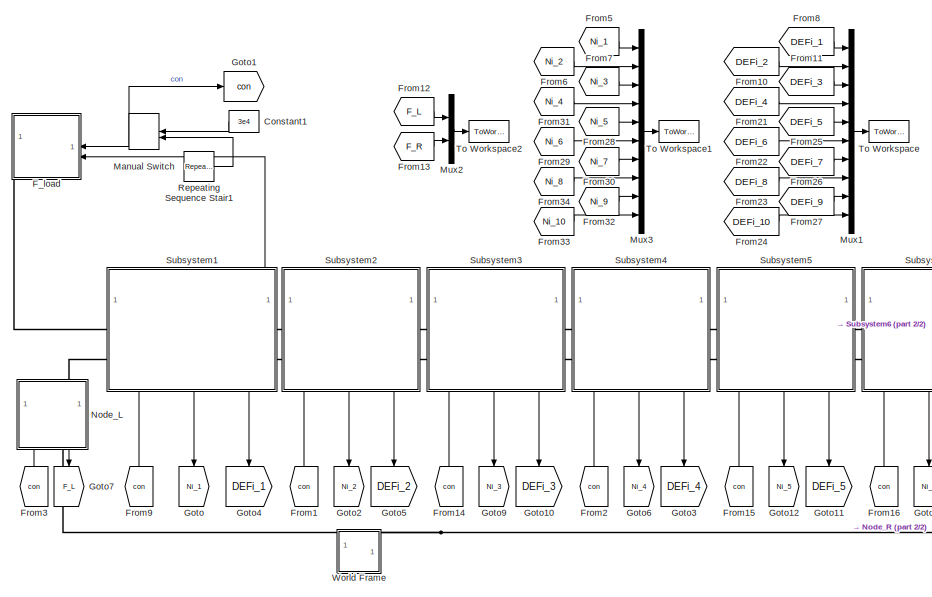
[diagram: root canvas - part 1/2, left side, full height]
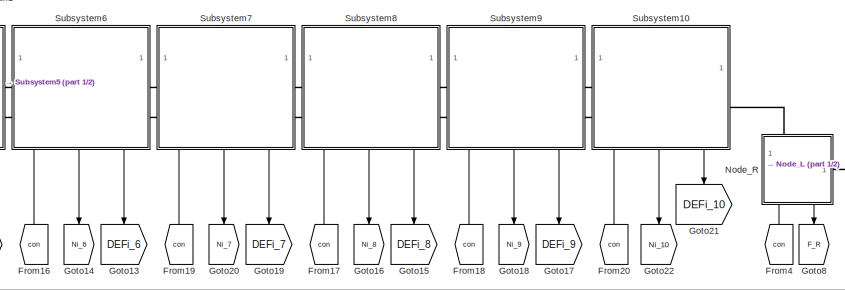
[diagram: root canvas - part 2/2, middle right region]
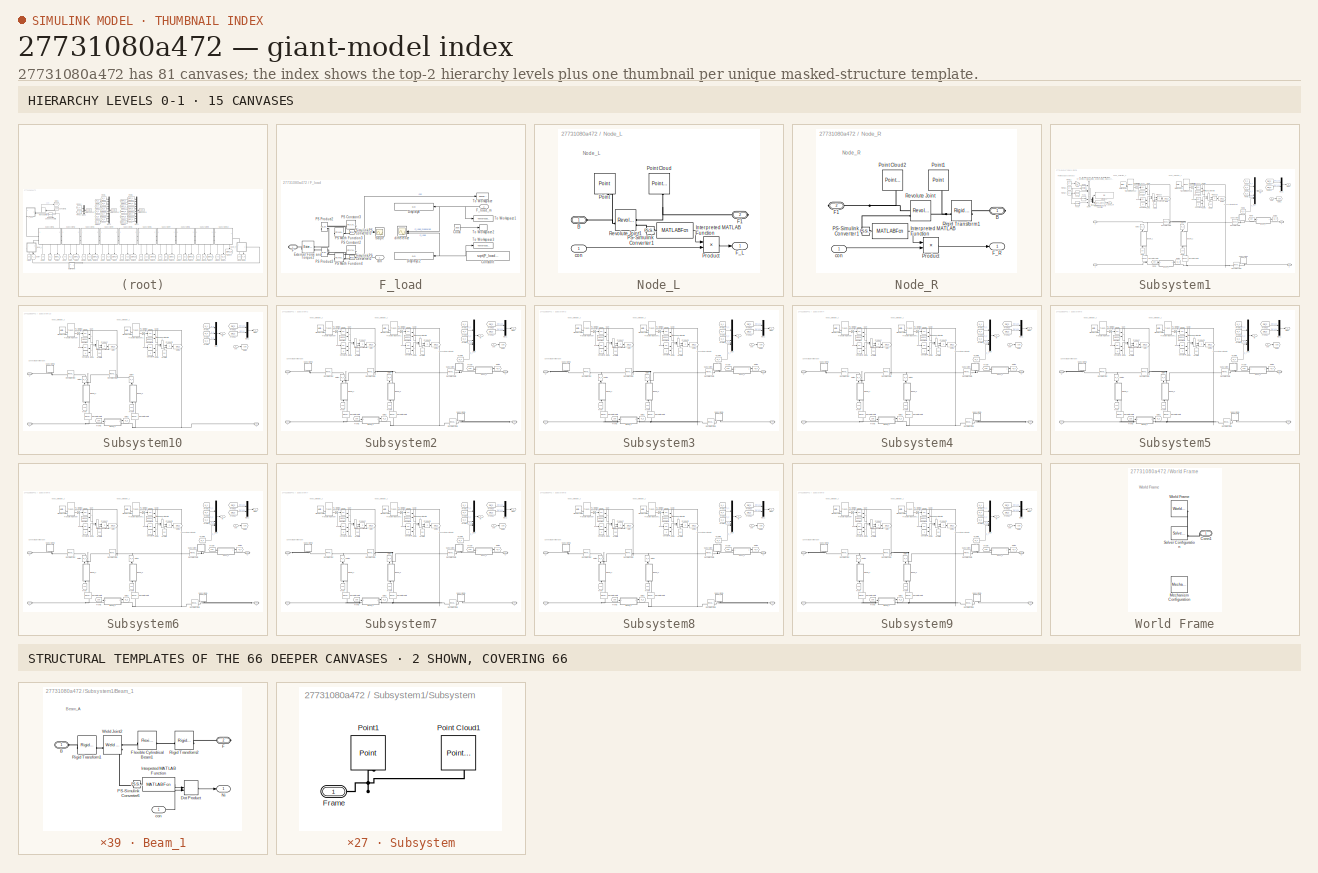
[diagram: thumbnail index - top-2 hierarchy levels (15 canvases) + 2 structural-template representatives of the remaining 66 canvases]
MODEL slx_27731080a472
KIND model
CONFIG AbsTol = 1e-3
CONFIG EnableMultiTasking = on
CONFIG FixedStep = 0.0001
CONFIG MaxStep = 0.01
CONFIG MinStep = auto
CONFIG RelTol = 1e-3
CONFIG SampleTimeConstraint = Unconstrained
CONFIG SolverName = ode15s
CONFIG StartTime = 0.0
CONFIG StopTime = 100
WORKSPACE source: MATLAB code (in-file)
WORKSPACE F_load_x = 2e3  (= 2000)
WORKSPACE F_load_y = 1e4  (= 10000)
WORKSPACE d = 0.01
WORKSPACE l = 1
WORKSPACE L = l  (= 1)
WORKSPACE H = L*cos(pi/6)
WORKSPACE Density = 7800
WORKSPACE E = 210
WORKSPACE G = 79
WORKSPACE bm = 0.01
WORKSPACE bk = 0.01
WORKSPACE b_rj = 1
WORKSPACE Size_frame = 30
BLOCK [Constant] Constant1
  NameLocation = top
  Value = 3e4
BLOCK [SubSystem] F_load
  AttributesFormatString = %<Fx> =  2 kN\n%<Fy> =10 kN
BLOCK [Clock] F_load/Clock
  Decimation = 1
BLOCK [Constant] F_load/Constant
  NameLocation = top
  Value = sqrt(F_load_x^2 + F_load_y^2)
BLOCK [Display] F_load/Display12
  AttributesFormatString = %<Description>
  Decimation = 1
  Description = N
  Format = long_e
  NameLocation = top
BLOCK [Display] F_load/Display8
  AttributesFormatString = %<Description>
  Decimation = 1
  Description = N
  Format = long_e
  NameLocation = top
BLOCK [Reference] F_load/External Force and Torque2  REF=sm_lib/Forces and
Torques/External Force
and Torque
  NameLocation = top
  SourceBlock = sm_lib/Forces and\nTorques/External Force\nand Torque
  SourceType = External Force\nand Torque
BLOCK [PMIOPort] F_load/F
  Side = Right
BLOCK [Inport] F_load/F_load_m
  Port = 2
BLOCK [Reference] F_load/PS Constant2  REF=fl_lib/Physical Signals/Sources/PS Constant
  AttributesFormatString = %<constant>
  NameLocation = top
  SourceBlock = fl_lib/Physical Signals/Sources/PS Constant
  SourceType = PS Constant
BLOCK [Reference] F_load/PS Constant3  REF=fl_lib/Physical Signals/Sources/PS Constant
  AttributesFormatString = %<constant>
  NameLocation = top
  SourceBlock = fl_lib/Physical Signals/Sources/PS Constant
  SourceType = PS Constant
BLOCK [Reference] F_load/PS Math Function3  REF=fl_lib/Physical Signals/Functions/PS Math Function
  NameLocation = top
  SourceBlock = fl_lib/Physical Signals/Functions/PS Math Function
  SourceType = PS Math Function
BLOCK [Reference] F_load/PS Math Function4  REF=fl_lib/Physical Signals/Functions/PS Math Function
  NameLocation = top
  SourceBlock = fl_lib/Physical Signals/Functions/PS Math Function
  SourceType = PS Math Function
BLOCK [Reference] F_load/PS Product2  REF=fl_lib/Physical Signals/Functions/PS Product
  NameLocation = top
  SourceBlock = fl_lib/Physical Signals/Functions/PS Product
  SourceType = PS Product
BLOCK [Reference] F_load/PS Product3  REF=fl_lib/Physical Signals/Functions/PS Product
  NameLocation = top
  SourceBlock = fl_lib/Physical Signals/Functions/PS Product
  SourceType = PS Product
BLOCK [Scope] F_load/Scope
  Floating = off
  NumInputPorts = 1
  ScopeSpecificationString = Simulink.scopes.TimeScopeBlockCfg('CurrentConfiguration', extmgr.ConfigurationSet(extmgr.Configuration('Core','General UI',true),extmgr.Configuration('Core','Source UI',true),extmgr.Configuration('Sources','WiredSimulink',true,'DataLoggingVariableName','ScopeData1'),extmgr.Configuration('Visuals','Time Domain',true,'SerializedDisplays',{struct('MinYLimReal','-374887.5','MaxYLimReal','3374987.5','Y...<+1708ch>
BLOCK [Reference] F_load/Simulink-PS Converter2  REF=nesl_utility/Simulink-PS
Converter
  NameLocation = top
  SourceBlock = nesl_utility/Simulink-PS\nConverter
  SourceType = Simulink-PS\nConverter
BLOCK [Reference] F_load/Simulink-PS Converter3  REF=nesl_utility/Simulink-PS
Converter
  NameLocation = top
  SourceBlock = nesl_utility/Simulink-PS\nConverter
  SourceType = Simulink-PS\nConverter
BLOCK [ToWorkspace] F_load/To Workspace
  FixptAsFi = on
  MaxDataPoints = inf
  SampleTime = -1
  VariableName = con_out
BLOCK [ToWorkspace] F_load/To Workspace1
  Decimation = 3
  FixptAsFi = on
  MaxDataPoints = inf
  SampleTime = -1
  VariableName = F_load_m_out
BLOCK [ToWorkspace] F_load/To Workspace2
  Decimation = 3
  FixptAsFi = on
  MaxDataPoints = inf
  SampleTime = -1
  VariableName = t_out
BLOCK [ToWorkspace] F_load/To Workspace3
  Decimation = 3
  FixptAsFi = on
  MaxDataPoints = inf
  SampleTime = -1
  VariableName = F_load_out
BLOCK [Inport] F_load/con
BLOCK [Scope] F_load/difference
  Floating = off
  NumInputPorts = 2
  ScopeSpecificationString = Simulink.scopes.TimeScopeBlockCfg('CurrentConfiguration', extmgr.ConfigurationSet(extmgr.Configuration('Core','General UI',true),extmgr.Configuration('Core','Source UI',true),extmgr.Configuration('Sources','WiredSimulink',true),extmgr.Configuration('Visuals','Time Domain',true,'SerializedDisplays',{struct('MinYLimReal','10198.01044','MaxYLimReal','10198.05802','YLabelReal','','MinYLimMag','10198.0...<+1947ch>
BLOCK [From] From1
  GotoTag = con
  NameLocation = right
BLOCK [From] From10
  GotoTag = DEFi_2
BLOCK [From] From11
  GotoTag = DEFi_3
BLOCK [From] From12
  GotoTag = F_L
BLOCK [From] From13
  GotoTag = F_R
BLOCK [From] From14
  GotoTag = con
  NameLocation = right
BLOCK [From] From15
  GotoTag = con
  NameLocation = right
BLOCK [From] From16
  GotoTag = con
  NameLocation = right
BLOCK [From] From17
  GotoTag = con
  NameLocation = right
BLOCK [From] From18
  GotoTag = con
  NameLocation = right
BLOCK [From] From19
  GotoTag = con
  NameLocation = right
BLOCK [From] From2
  GotoTag = con
  NameLocation = right
BLOCK [From] From20
  GotoTag = con
  NameLocation = right
BLOCK [From] From21
  GotoTag = DEFi_4
BLOCK [From] From22
  GotoTag = DEFi_6
BLOCK [From] From23
  GotoTag = DEFi_8
BLOCK [From] From24
  GotoTag = DEFi_10
BLOCK [From] From25
  GotoTag = DEFi_5
BLOCK [From] From26
  GotoTag = DEFi_7
BLOCK [From] From27
  GotoTag = DEFi_9
BLOCK [From] From28
  GotoTag = Ni_5
BLOCK [From] From29
  GotoTag = Ni_6
BLOCK [From] From3
  GotoTag = con
  NameLocation = right
BLOCK [From] From30
  GotoTag = Ni_7
BLOCK [From] From31
  GotoTag = Ni_4
BLOCK [From] From32
  GotoTag = Ni_9
BLOCK [From] From33
  GotoTag = Ni_10
BLOCK [From] From34
  GotoTag = Ni_8
BLOCK [From] From4
  GotoTag = con
  NameLocation = right
BLOCK [From] From5
  GotoTag = Ni_1
BLOCK [From] From6
  GotoTag = Ni_2
BLOCK [From] From7
  GotoTag = Ni_3
BLOCK [From] From8
  GotoTag = DEFi_1
BLOCK [From] From9
  GotoTag = con
  NameLocation = right
BLOCK [Goto] Goto
  GotoTag = Ni_1
  NameLocation = left
BLOCK [Goto] Goto1
  GotoTag = con
BLOCK [Goto] Goto10
  GotoTag = DEFi_3
  NameLocation = left
BLOCK [Goto] Goto11
  GotoTag = DEFi_5
  NameLocation = left
BLOCK [Goto] Goto12
  GotoTag = Ni_5
  NameLocation = left
BLOCK [Goto] Goto13
  GotoTag = DEFi_6
  NameLocation = left
BLOCK [Goto] Goto14
  GotoTag = Ni_6
  NameLocation = left
BLOCK [Goto] Goto15
  GotoTag = DEFi_8
  NameLocation = left
BLOCK [Goto] Goto16
  GotoTag = Ni_8
  NameLocation = left
BLOCK [Goto] Goto17
  GotoTag = DEFi_9
  NameLocation = left
BLOCK [Goto] Goto18
  GotoTag = Ni_9
  NameLocation = left
BLOCK [Goto] Goto19
  GotoTag = DEFi_7
  NameLocation = left
BLOCK [Goto] Goto2
  GotoTag = Ni_2
  NameLocation = left
BLOCK [Goto] Goto20
  GotoTag = Ni_7
  NameLocation = left
BLOCK [Goto] Goto21
  GotoTag = DEFi_10
  NameLocation = left
BLOCK [Goto] Goto22
  GotoTag = Ni_10
  NameLocation = left
BLOCK [Goto] Goto3
  GotoTag = DEFi_4
  NameLocation = left
BLOCK [Goto] Goto4
  GotoTag = DEFi_1
  NameLocation = left
BLOCK [Goto] Goto5
  GotoTag = DEFi_2
  NameLocation = left
BLOCK [Goto] Goto6
  GotoTag = Ni_4
  NameLocation = left
BLOCK [Goto] Goto7
  GotoTag = F_L
  NameLocation = left
BLOCK [Goto] Goto8
  GotoTag = F_R
  NameLocation = left
BLOCK [Goto] Goto9
  GotoTag = Ni_3
  NameLocation = left
BLOCK [ManualSwitch] Manual Switch
  CurrentSetting = 0
  NameLocation = top
BLOCK [Mux] Mux1
  DisplayOption = bar
  Inputs = 10
BLOCK [Mux] Mux2
  DisplayOption = bar
  Inputs = 2
BLOCK [Mux] Mux3
  DisplayOption = bar
  Inputs = 10
BLOCK [SubSystem] Node_L
  NameLocation = right
  PortSchema = {"entries":[{"content":{"sides":[{"content":{"connectorIds":["LConn1"]},"type":"ConnectorPlacement.EquallySpacedRectSide","uuid":"d437545a-b6cd-405c-92f5-dfd428dd316c"},{"content":{"side":"RIGHT"},"type":"ConnectorPlacement.EquallySpacedRectSide","uuid":"a6c866cb-015a-4ba6-a725-1ad5f0a48a96"},{"content":{"connectorIds":["In1","Out1"],"side":"TOP"},"type":"ConnectorPlacement.EquallySpacedRectSide",...<+383ch>
BLOCK [PMIOPort] Node_L/B
  Side = Left
BLOCK [PMIOPort] Node_L/F1
  Port = 2
  Side = Right
BLOCK [Outport] Node_L/F_L
BLOCK [MATLABFcn] Node_L/Interpreted MATLAB Function
  AttributesFormatString = %<Description>
  Description = u(1:2)
  MATLABFcn = u(1:2)
BLOCK [Reference] Node_L/PS-Simulink Converter1  REF=nesl_utility/PS-Simulink
Converter
  SourceBlock = nesl_utility/PS-Simulink\nConverter
  SourceType = PS-Simulink\nConverter
BLOCK [Reference] Node_L/Point  REF=sm_lib/Curves and Surfaces/Point
  AttributesFormatString = %<Description>
  Description = Frame\nvisualization
  NameLocation = right
  SourceBlock = sm_lib/Curves and Surfaces/Point
  SourceType = Point
BLOCK [Reference] Node_L/Point Cloud  REF=sm_lib/Curves and Surfaces/Point Cloud
  AttributesFormatString = %<Description>
  Description = Graphic\nsphere
  NameLocation = right
  SourceBlock = sm_lib/Curves and Surfaces/Point Cloud
  SourceType = Point Cloud
BLOCK [Product] Node_L/Product
BLOCK [Reference] Node_L/Revolute Joint1  REF=sm_lib/Joints/Revolute Joint
  Description = Total force\nsensing
  SourceBlock = sm_lib/Joints/Revolute Joint
  SourceType = Revolute Joint
BLOCK [Inport] Node_L/con
BLOCK [SubSystem] Node_R
  NameLocation = left
  PortSchema = {"entries":[{"content":{"sides":[{"content":{},"type":"ConnectorPlacement.EquallySpacedRectSide","uuid":"c52cac6f-2005-4bfe-89ae-e2a0406bbacd"},{"content":{"connectorIds":["RConn1"],"side":"RIGHT"},"type":"ConnectorPlacement.EquallySpacedRectSide","uuid":"5ceadddb-1bc3-405b-9850-d33e8ff0b50d"},{"content":{"connectorIds":["In1","Out1"],"side":"TOP"},"type":"ConnectorPlacement.EquallySpacedRectSide"...<+384ch>
BLOCK [PMIOPort] Node_R/B
  Side = Right
BLOCK [PMIOPort] Node_R/F1
  Port = 2
  Side = Right
BLOCK [Outport] Node_R/F_R
BLOCK [MATLABFcn] Node_R/Interpreted MATLAB Function
  AttributesFormatString = %<Description>
  Description = u(1:2)
  MATLABFcn = u(1:2)
BLOCK [Reference] Node_R/PS-Simulink Converter1  REF=nesl_utility/PS-Simulink
Converter
  SourceBlock = nesl_utility/PS-Simulink\nConverter
  SourceType = PS-Simulink\nConverter
BLOCK [Reference] Node_R/Point Cloud2  REF=sm_lib/Curves and Surfaces/Point Cloud
  AttributesFormatString = %<Description>
  Description = Graphic\nsphere
  NameLocation = right
  SourceBlock = sm_lib/Curves and Surfaces/Point Cloud
  SourceType = Point Cloud
BLOCK [Reference] Node_R/Point1  REF=sm_lib/Curves and Surfaces/Point
  AttributesFormatString = %<Description>
  Description = Frame\nvisualization
  NameLocation = right
  SourceBlock = sm_lib/Curves and Surfaces/Point
  SourceType = Point
BLOCK [Product] Node_R/Product
BLOCK [Reference] Node_R/Revolute Joint  REF=sm_lib/Joints/Revolute Joint
  NameLocation = top
  SourceBlock = sm_lib/Joints/Revolute Joint
  SourceType = Revolute Joint
BLOCK [Reference] Node_R/Rigid Transform1  REF=sm_lib/Frames and
Transforms/Rigid
Transform
  AttributesFormatString = %<Description>\n%<TranslationCartesianOffset> %<TranslationCartesianOffsetUnits>
  Description = Offset
  SourceBlock = sm_lib/Frames and\nTransforms/Rigid\nTransform
  SourceType = Rigid\nTransform
BLOCK [Inport] Node_R/con
BLOCK [Reference] Repeating Sequence Stair1  REF=simulink/Sources/Repeating
Sequence
Stair
  AttributesFormatString = %<OutValues>\nSampleTime=%<tsamp> s
  SourceBlock = simulink/Sources/Repeating\nSequence\nStair
  SourceType = Repeating Sequence Stair
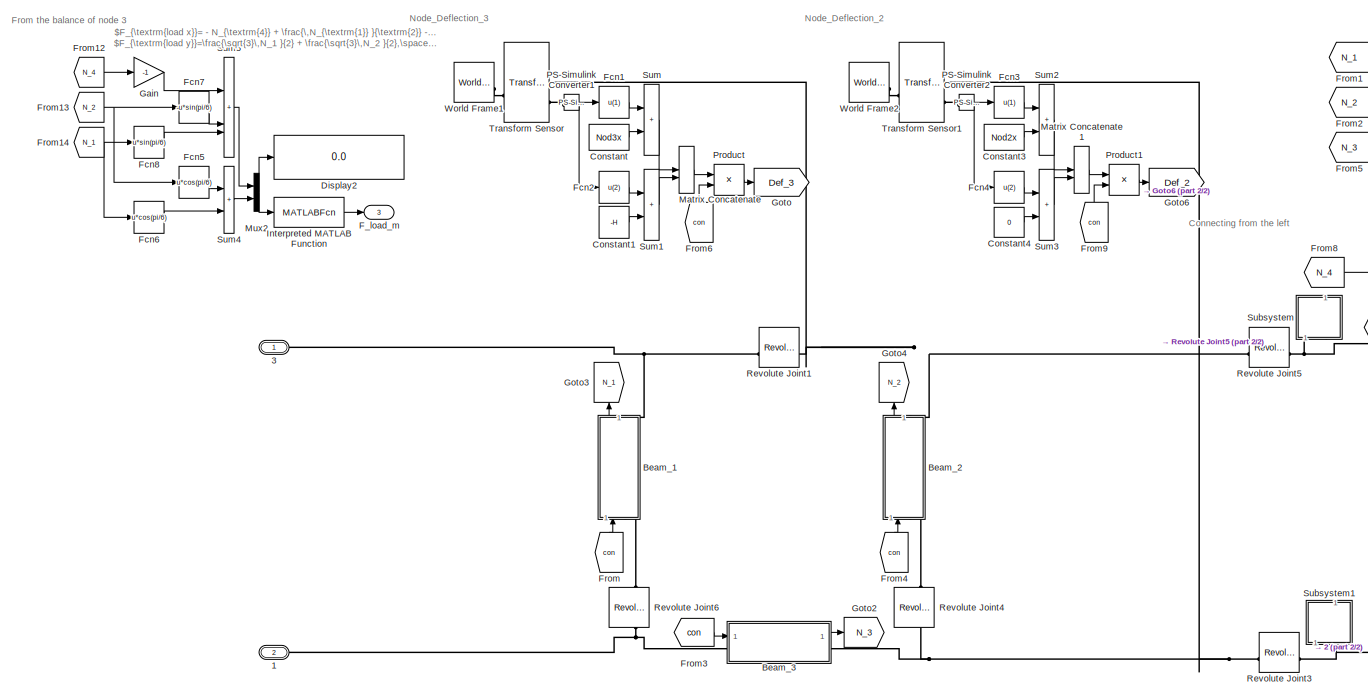
[diagram: Subsystem1 - part 1/2, most of the canvas]
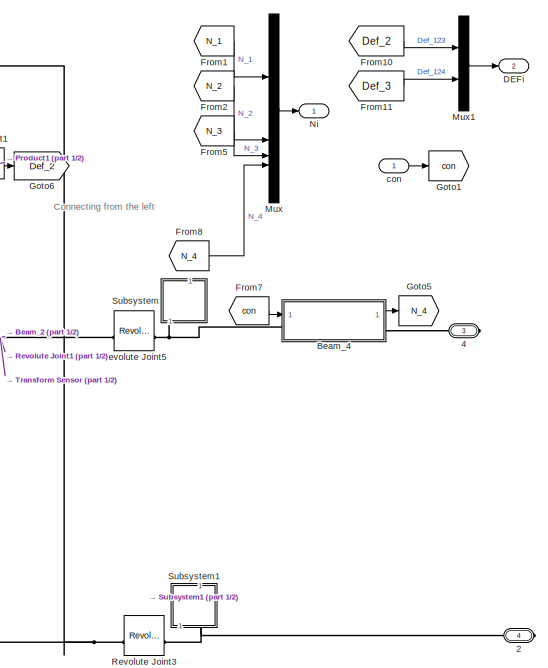
[diagram: Subsystem1 - part 2/2, right side, full height]
BLOCK [SubSystem] Subsystem1
  NameLocation = top
  PortSchema = {"entries":[{"content":{"sides":[{"content":{"connectorIds":["Out3","LConn1","LConn2"]},"type":"ConnectorPlacement.EquallySpacedRectSide","uuid":"5b691ec6-fd17-4a8f-b07c-565e148aea54"},{"content":{"connectorIds":["RConn1","RConn2"],"side":"RIGHT"},"type":"ConnectorPlacement.EquallySpacedRectSide","uuid":"123b4379-6f63-4bac-8b3e-d1a87a3d78c4"},{"content":{"side":"TOP"},"type":"ConnectorPlacement.Eq...<+415ch>
BLOCK [PMIOPort] Subsystem1/1
  Port = 2
  Side = Left
BLOCK [PMIOPort] Subsystem1/2
  Port = 4
  Side = Right
BLOCK [PMIOPort] Subsystem1/3
  Side = Left
BLOCK [PMIOPort] Subsystem1/4
  Port = 3
  Side = Right
BLOCK [SubSystem] Subsystem1/Beam_1
  NameLocation = left
BLOCK [PMIOPort] Subsystem1/Beam_1/B
  Side = Left
BLOCK [DotProduct] Subsystem1/Beam_1/Dot Product
  OutDataTypeStr = Inherit: Inherit via internal rule
BLOCK [PMIOPort] Subsystem1/Beam_1/F
  Port = 2
  Side = Right
BLOCK [Reference] Subsystem1/Beam_1/Flexible Cylindrical Beam1  REF=sm_lib/Body Elements/Flexible Bodies/Beams/Flexible Cylindrical Beam
  AttributesFormatString = %<Description>
  SourceBlock = sm_lib/Body Elements/Flexible Bodies/Beams/Flexible Cylindrical Beam
  SourceType = Flexible Cylindrical Beam
BLOCK [MATLABFcn] Subsystem1/Beam_1/Interpreted MATLAB Function
  AttributesFormatString = %<Description>
  Description = u(3)
  MATLABFcn = u(3)
BLOCK [Outport] Subsystem1/Beam_1/Ni
BLOCK [Reference] Subsystem1/Beam_1/PS-Simulink Converter6  REF=nesl_utility/PS-Simulink
Converter
  SourceBlock = nesl_utility/PS-Simulink\nConverter
  SourceType = PS-Simulink\nConverter
BLOCK [Reference] Subsystem1/Beam_1/Rigid Transform1  REF=sm_lib/Frames and
Transforms/Rigid
Transform
  AttributesFormatString = %<RotationStandardAxis>\n%<RotationAngle> deg
  SourceBlock = sm_lib/Frames and\nTransforms/Rigid\nTransform
  SourceType = Rigid\nTransform
BLOCK [Reference] Subsystem1/Beam_1/Rigid Transform2  REF=sm_lib/Frames and
Transforms/Rigid
Transform
  AttributesFormatString = %<RotationStandardAxis>\n%<RotationAngle> deg
  SourceBlock = sm_lib/Frames and\nTransforms/Rigid\nTransform
  SourceType = Rigid\nTransform
BLOCK [Reference] Subsystem1/Beam_1/Weld Joint2  REF=sm_lib/Joints/Weld Joint
  AttributesFormatString = %<Description>
  Description = Total force\nsensing
  SourceBlock = sm_lib/Joints/Weld Joint
  SourceType = Weld Joint
BLOCK [Inport] Subsystem1/Beam_1/con
BLOCK [SubSystem] Subsystem1/Beam_2
  NameLocation = right
BLOCK [PMIOPort] Subsystem1/Beam_2/B
  Side = Left
BLOCK [DotProduct] Subsystem1/Beam_2/Dot Product
  OutDataTypeStr = Inherit: Inherit via internal rule
BLOCK [PMIOPort] Subsystem1/Beam_2/F
  Port = 2
  Side = Right
BLOCK [Reference] Subsystem1/Beam_2/Flexible Cylindrical Beam1  REF=sm_lib/Body Elements/Flexible Bodies/Beams/Flexible Cylindrical Beam
  AttributesFormatString = %<Description>
  SourceBlock = sm_lib/Body Elements/Flexible Bodies/Beams/Flexible Cylindrical Beam
  SourceType = Flexible Cylindrical Beam
BLOCK [MATLABFcn] Subsystem1/Beam_2/Interpreted MATLAB Function
  AttributesFormatString = %<Description>
  Description = u(3)
  MATLABFcn = u(3)
BLOCK [Outport] Subsystem1/Beam_2/Ni
BLOCK [Reference] Subsystem1/Beam_2/PS-Simulink Converter6  REF=nesl_utility/PS-Simulink
Converter
  SourceBlock = nesl_utility/PS-Simulink\nConverter
  SourceType = PS-Simulink\nConverter
BLOCK [Reference] Subsystem1/Beam_2/Rigid Transform1  REF=sm_lib/Frames and
Transforms/Rigid
Transform
  AttributesFormatString = %<RotationStandardAxis>\n%<RotationAngle> deg
  SourceBlock = sm_lib/Frames and\nTransforms/Rigid\nTransform
  SourceType = Rigid\nTransform
BLOCK [Reference] Subsystem1/Beam_2/Rigid Transform2  REF=sm_lib/Frames and
Transforms/Rigid
Transform
  AttributesFormatString = %<RotationStandardAxis>\n%<RotationAngle> deg
  SourceBlock = sm_lib/Frames and\nTransforms/Rigid\nTransform
  SourceType = Rigid\nTransform
BLOCK [Reference] Subsystem1/Beam_2/Weld Joint2  REF=sm_lib/Joints/Weld Joint
  AttributesFormatString = %<Description>
  Description = Total force\nsensing
  SourceBlock = sm_lib/Joints/Weld Joint
  SourceType = Weld Joint
BLOCK [Inport] Subsystem1/Beam_2/con
BLOCK [SubSystem] Subsystem1/Beam_3
BLOCK [PMIOPort] Subsystem1/Beam_3/B
  Side = Left
BLOCK [Reference] Subsystem1/Beam_3/Beam  REF=sm_lib/Body Elements/Flexible Bodies/Beams/Flexible Cylindrical Beam
  AttributesFormatString = %<Description>
  SourceBlock = sm_lib/Body Elements/Flexible Bodies/Beams/Flexible Cylindrical Beam
  SourceType = Flexible Cylindrical Beam
BLOCK [DotProduct] Subsystem1/Beam_3/Dot Product
  OutDataTypeStr = Inherit: Inherit via internal rule
BLOCK [PMIOPort] Subsystem1/Beam_3/F
  Port = 2
  Side = Right
BLOCK [MATLABFcn] Subsystem1/Beam_3/Interpreted MATLAB Function
  AttributesFormatString = %<Description>
  Description = u(3)
  MATLABFcn = u(3)
BLOCK [Outport] Subsystem1/Beam_3/Ni
BLOCK [Reference] Subsystem1/Beam_3/PS-Simulink Converter6  REF=nesl_utility/PS-Simulink
Converter
  SourceBlock = nesl_utility/PS-Simulink\nConverter
  SourceType = PS-Simulink\nConverter
BLOCK [Reference] Subsystem1/Beam_3/Rigid Transform1  REF=sm_lib/Frames and
Transforms/Rigid
Transform
  AttributesFormatString = %<RotationStandardAxis>\n%<RotationAngle> deg
  SourceBlock = sm_lib/Frames and\nTransforms/Rigid\nTransform
  SourceType = Rigid\nTransform
BLOCK [Reference] Subsystem1/Beam_3/Rigid Transform2  REF=sm_lib/Frames and
Transforms/Rigid
Transform
  AttributesFormatString = %<RotationStandardAxis>\n%<RotationAngle> deg
  SourceBlock = sm_lib/Frames and\nTransforms/Rigid\nTransform
  SourceType = Rigid\nTransform
BLOCK [Reference] Subsystem1/Beam_3/Weld Joint2  REF=sm_lib/Joints/Weld Joint
  AttributesFormatString = %<Description>
  Description = Total force\nsensing
  SourceBlock = sm_lib/Joints/Weld Joint
  SourceType = Weld Joint
BLOCK [Inport] Subsystem1/Beam_3/con
BLOCK [SubSystem] Subsystem1/Beam_4
BLOCK [PMIOPort] Subsystem1/Beam_4/B
  Side = Left
BLOCK [Reference] Subsystem1/Beam_4/Beam  REF=sm_lib/Body Elements/Flexible Bodies/Beams/Flexible Cylindrical Beam
  AttributesFormatString = %<Description>
  SourceBlock = sm_lib/Body Elements/Flexible Bodies/Beams/Flexible Cylindrical Beam
  SourceType = Flexible Cylindrical Beam
BLOCK [DotProduct] Subsystem1/Beam_4/Dot Product
  OutDataTypeStr = Inherit: Inherit via internal rule
BLOCK [PMIOPort] Subsystem1/Beam_4/F
  Port = 2
  Side = Right
BLOCK [MATLABFcn] Subsystem1/Beam_4/Interpreted MATLAB Function
  AttributesFormatString = %<Description>
  Description = u(3)
  MATLABFcn = u(3)
BLOCK [Outport] Subsystem1/Beam_4/Ni
BLOCK [Reference] Subsystem1/Beam_4/PS-Simulink Converter6  REF=nesl_utility/PS-Simulink
Converter
  SourceBlock = nesl_utility/PS-Simulink\nConverter
  SourceType = PS-Simulink\nConverter
BLOCK [Reference] Subsystem1/Beam_4/Rigid Transform1  REF=sm_lib/Frames and
Transforms/Rigid
Transform
  AttributesFormatString = %<RotationStandardAxis>\n%<RotationAngle> deg
  SourceBlock = sm_lib/Frames and\nTransforms/Rigid\nTransform
  SourceType = Rigid\nTransform
BLOCK [Reference] Subsystem1/Beam_4/Rigid Transform2  REF=sm_lib/Frames and
Transforms/Rigid
Transform
  AttributesFormatString = %<RotationStandardAxis>\n%<RotationAngle> deg
  SourceBlock = sm_lib/Frames and\nTransforms/Rigid\nTransform
  SourceType = Rigid\nTransform
BLOCK [Reference] Subsystem1/Beam_4/Weld Joint2  REF=sm_lib/Joints/Weld Joint
  AttributesFormatString = %<Description>
  Description = Total force\nsensing
  SourceBlock = sm_lib/Joints/Weld Joint
  SourceType = Weld Joint
BLOCK [Inport] Subsystem1/Beam_4/con
BLOCK [Constant] Subsystem1/Constant
  Value = Nod3x
BLOCK [Constant] Subsystem1/Constant1
  Value = -H
BLOCK [Constant] Subsystem1/Constant3
  Value = Nod2x
BLOCK [Constant] Subsystem1/Constant4
  Value = 0
BLOCK [Outport] Subsystem1/DEFi
  Port = 2
BLOCK [Display] Subsystem1/Display2
  AttributesFormatString = %<Description>
  Decimation = 1
  Description = N
  Format = long_e
  NameLocation = top
BLOCK [Outport] Subsystem1/F_load_m
  Port = 3
BLOCK [Fcn] Subsystem1/Fcn1
  Expr = u(1)
BLOCK [Fcn] Subsystem1/Fcn2
  Expr = u(2)
BLOCK [Fcn] Subsystem1/Fcn3
  Expr = u(1)
BLOCK [Fcn] Subsystem1/Fcn4
  Expr = u(2)
BLOCK [Fcn] Subsystem1/Fcn5
  AttributesFormatString = %<Expr>
  Description = -u/sqrt(2)
  Expr = u*cos(pi/6)
BLOCK [Fcn] Subsystem1/Fcn6
  AttributesFormatString = %<Expr>
  Description = -u/sqrt(2)
  Expr = u*cos(pi/6)
BLOCK [Fcn] Subsystem1/Fcn7
  AttributesFormatString = %<Expr>
  Description = -u/sqrt(2)
  Expr = -u*sin(pi/6)
BLOCK [Fcn] Subsystem1/Fcn8
  AttributesFormatString = %<Expr>
  Description = -u/sqrt(2)
  Expr = u*sin(pi/6)
BLOCK [From] Subsystem1/From
  GotoTag = con
  NameLocation = right
BLOCK [From] Subsystem1/From1
  GotoTag = N_1
  NameLocation = top
BLOCK [From] Subsystem1/From10
  GotoTag = Def_2
  NameLocation = top
BLOCK [From] Subsystem1/From11
  GotoTag = Def_3
  NameLocation = top
BLOCK [From] Subsystem1/From12
  GotoTag = N_4
BLOCK [From] Subsystem1/From13
  GotoTag = N_2
BLOCK [From] Subsystem1/From14
  GotoTag = N_1
BLOCK [From] Subsystem1/From2
  GotoTag = N_2
  NameLocation = top
BLOCK [From] Subsystem1/From3
  GotoTag = con
BLOCK [From] Subsystem1/From4
  GotoTag = con
  NameLocation = right
BLOCK [From] Subsystem1/From5
  GotoTag = N_3
  NameLocation = top
BLOCK [From] Subsystem1/From6
  GotoTag = con
  NameLocation = right
BLOCK [From] Subsystem1/From7
  GotoTag = con
BLOCK [From] Subsystem1/From8
  GotoTag = N_4
  NameLocation = top
BLOCK [From] Subsystem1/From9
  GotoTag = con
  NameLocation = right
BLOCK [Gain] Subsystem1/Gain
  Gain = -1
BLOCK [Goto] Subsystem1/Goto
  GotoTag = Def_3
BLOCK [Goto] Subsystem1/Goto1
  GotoTag = con
BLOCK [Goto] Subsystem1/Goto2
  GotoTag = N_3
BLOCK [Goto] Subsystem1/Goto3
  GotoTag = N_1
  NameLocation = right
BLOCK [Goto] Subsystem1/Goto4
  GotoTag = N_2
  NameLocation = right
BLOCK [Goto] Subsystem1/Goto5
  GotoTag = N_4
BLOCK [Goto] Subsystem1/Goto6
  GotoTag = Def_2
BLOCK [MATLABFcn] Subsystem1/Interpreted MATLAB Function
  AttributesFormatString = %<Description>
  Description = Norm
  MATLABFcn = norm(u)
BLOCK [Concatenate] Subsystem1/Matrix Concatenate
  AttributesFormatString = %<Description>
  ConcatenateDimension = 2
BLOCK [Concatenate] Subsystem1/Matrix Concatenate1
  AttributesFormatString = %<Description>
  ConcatenateDimension = 2
BLOCK [Mux] Subsystem1/Mux
  DisplayOption = bar
BLOCK [Mux] Subsystem1/Mux1
  DisplayOption = bar
  Inputs = 2
BLOCK [Mux] Subsystem1/Mux2
  DisplayOption = bar
  Inputs = 2
BLOCK [Outport] Subsystem1/Ni
BLOCK [Reference] Subsystem1/PS-Simulink Converter1  REF=nesl_utility/PS-Simulink
Converter
  SourceBlock = nesl_utility/PS-Simulink\nConverter
  SourceType = PS-Simulink\nConverter
BLOCK [Reference] Subsystem1/PS-Simulink Converter2  REF=nesl_utility/PS-Simulink
Converter
  SourceBlock = nesl_utility/PS-Simulink\nConverter
  SourceType = PS-Simulink\nConverter
BLOCK [Product] Subsystem1/Product
BLOCK [Product] Subsystem1/Product1
BLOCK [Reference] Subsystem1/Revolute Joint1  REF=sm_lib/Joints/Revolute Joint
  AttributesFormatString = %<PositionTargetValue>
  SourceBlock = sm_lib/Joints/Revolute Joint
  SourceType = Revolute Joint
BLOCK [Reference] Subsystem1/Revolute Joint3  REF=sm_lib/Joints/Revolute Joint
  AttributesFormatString = %<PositionTargetValue>
  SourceBlock = sm_lib/Joints/Revolute Joint
  SourceType = Revolute Joint
BLOCK [Reference] Subsystem1/Revolute Joint4  REF=sm_lib/Joints/Revolute Joint
  NameLocation = right
  SourceBlock = sm_lib/Joints/Revolute Joint
  SourceType = Revolute Joint
BLOCK [Reference] Subsystem1/Revolute Joint5  REF=sm_lib/Joints/Revolute Joint
  AttributesFormatString = %<PositionTargetValue>
  SourceBlock = sm_lib/Joints/Revolute Joint
  SourceType = Revolute Joint
BLOCK [Reference] Subsystem1/Revolute Joint6  REF=sm_lib/Joints/Revolute Joint
  AttributesFormatString = %<PositionTargetValue>
  NameLocation = right
  SourceBlock = sm_lib/Joints/Revolute Joint
  SourceType = Revolute Joint
BLOCK [SubSystem] Subsystem1/Subsystem
  NameLocation = right
BLOCK [PMIOPort] Subsystem1/Subsystem/Frame
  Side = Left
BLOCK [Reference] Subsystem1/Subsystem/Point Cloud1  REF=sm_lib/Curves and Surfaces/Point Cloud
  AttributesFormatString = %<Description>
  Description = Graphic\nsphere
  NameLocation = right
  SourceBlock = sm_lib/Curves and Surfaces/Point Cloud
  SourceType = Point Cloud
BLOCK [Reference] Subsystem1/Subsystem/Point1  REF=sm_lib/Curves and Surfaces/Point
  AttributesFormatString = %<Description>
  Description = Frame\nvisualization
  NameLocation = right
  SourceBlock = sm_lib/Curves and Surfaces/Point
  SourceType = Point
BLOCK [SubSystem] Subsystem1/Subsystem1
  NameLocation = right
BLOCK [PMIOPort] Subsystem1/Subsystem1/Frame
  Side = Left
BLOCK [Reference] Subsystem1/Subsystem1/Point Cloud1  REF=sm_lib/Curves and Surfaces/Point Cloud
  AttributesFormatString = %<Description>
  Description = Graphic\nsphere
  NameLocation = right
  SourceBlock = sm_lib/Curves and Surfaces/Point Cloud
  SourceType = Point Cloud
BLOCK [Reference] Subsystem1/Subsystem1/Point1  REF=sm_lib/Curves and Surfaces/Point
  AttributesFormatString = %<Description>
  Description = Frame\nvisualization
  NameLocation = right
  SourceBlock = sm_lib/Curves and Surfaces/Point
  SourceType = Point
BLOCK [Sum] Subsystem1/Sum
  IconShape = rectangular
  Inputs = 2
BLOCK [Sum] Subsystem1/Sum1
  IconShape = rectangular
  Inputs = 2
BLOCK [Sum] Subsystem1/Sum2
  IconShape = rectangular
  Inputs = 2
BLOCK [Sum] Subsystem1/Sum3
  IconShape = rectangular
  Inputs = 2
BLOCK [Sum] Subsystem1/Sum4
  IconShape = rectangular
  NameLocation = top
BLOCK [Sum] Subsystem1/Sum5
  IconShape = rectangular
  Inputs = 3
  NameLocation = top
BLOCK [Reference] Subsystem1/Transform Sensor  REF=sm_lib/Frames and
Transforms/Transform
Sensor
  AttributesFormatString = %<Description>
  Description = Translation\n[x, y, z]
  SourceBlock = sm_lib/Frames and\nTransforms/Transform\nSensor
  SourceType = Transform\nSensor
BLOCK [Reference] Subsystem1/Transform Sensor1  REF=sm_lib/Frames and
Transforms/Transform
Sensor
  AttributesFormatString = %<Description>
  Description = Translation\n[x, y, z]
  SourceBlock = sm_lib/Frames and\nTransforms/Transform\nSensor
  SourceType = Transform\nSensor
BLOCK [Reference] Subsystem1/World Frame1  REF=sm_lib/Frames and
Transforms/World Frame
  SourceBlock = sm_lib/Frames and\nTransforms/World Frame
  SourceType = World Frame
BLOCK [Reference] Subsystem1/World Frame2  REF=sm_lib/Frames and
Transforms/World Frame
  SourceBlock = sm_lib/Frames and\nTransforms/World Frame
  SourceType = World Frame
BLOCK [Inport] Subsystem1/con
BLOCK [SubSystem] Subsystem10
  NameLocation = top
  PortSchema = {"entries":[{"content":{"sides":[{"content":{"connectorIds":["LConn1","LConn2"]},"type":"ConnectorPlacement.EquallySpacedRectSide","uuid":"5b691ec6-fd17-4a8f-b07c-565e148aea54"},{"content":{"connectorIds":["RConn1"],"side":"RIGHT"},"type":"ConnectorPlacement.EquallySpacedRectSide","uuid":"123b4379-6f63-4bac-8b3e-d1a87a3d78c4"},{"content":{"side":"TOP"},"type":"ConnectorPlacement.EquallySpacedRectS...<+399ch>
BLOCK [PMIOPort] Subsystem10/1
  Port = 2
  Side = Left
BLOCK [PMIOPort] Subsystem10/2
  Port = 3
  Side = Right
BLOCK [PMIOPort] Subsystem10/3
  Side = Left
BLOCK [SubSystem] Subsystem10/Beam_1
  NameLocation = left
BLOCK [PMIOPort] Subsystem10/Beam_1/B
  Side = Left
BLOCK [DotProduct] Subsystem10/Beam_1/Dot Product
  OutDataTypeStr = Inherit: Inherit via internal rule
BLOCK [PMIOPort] Subsystem10/Beam_1/F
  Port = 2
  Side = Right
BLOCK [Reference] Subsystem10/Beam_1/Flexible Cylindrical Beam1  REF=sm_lib/Body Elements/Flexible Bodies/Beams/Flexible Cylindrical Beam
  AttributesFormatString = %<Description>
  SourceBlock = sm_lib/Body Elements/Flexible Bodies/Beams/Flexible Cylindrical Beam
  SourceType = Flexible Cylindrical Beam
BLOCK [MATLABFcn] Subsystem10/Beam_1/Interpreted MATLAB Function
  AttributesFormatString = %<Description>
  Description = u(3)
  MATLABFcn = u(3)
BLOCK [Outport] Subsystem10/Beam_1/Ni
BLOCK [Reference] Subsystem10/Beam_1/PS-Simulink Converter6  REF=nesl_utility/PS-Simulink
Converter
  SourceBlock = nesl_utility/PS-Simulink\nConverter
  SourceType = PS-Simulink\nConverter
BLOCK [Reference] Subsystem10/Beam_1/Rigid Transform1  REF=sm_lib/Frames and
Transforms/Rigid
Transform
  AttributesFormatString = %<RotationStandardAxis>\n%<RotationAngle> deg
  SourceBlock = sm_lib/Frames and\nTransforms/Rigid\nTransform
  SourceType = Rigid\nTransform
BLOCK [Reference] Subsystem10/Beam_1/Rigid Transform2  REF=sm_lib/Frames and
Transforms/Rigid
Transform
  AttributesFormatString = %<RotationStandardAxis>\n%<RotationAngle> deg
  SourceBlock = sm_lib/Frames and\nTransforms/Rigid\nTransform
  SourceType = Rigid\nTransform
BLOCK [Reference] Subsystem10/Beam_1/Weld Joint2  REF=sm_lib/Joints/Weld Joint
  AttributesFormatString = %<Description>
  Description = Total force\nsensing
  SourceBlock = sm_lib/Joints/Weld Joint
  SourceType = Weld Joint
BLOCK [Inport] Subsystem10/Beam_1/con
BLOCK [SubSystem] Subsystem10/Beam_2
  NameLocation = right
BLOCK [PMIOPort] Subsystem10/Beam_2/B
  Side = Left
BLOCK [DotProduct] Subsystem10/Beam_2/Dot Product
  OutDataTypeStr = Inherit: Inherit via internal rule
BLOCK [PMIOPort] Subsystem10/Beam_2/F
  Port = 2
  Side = Right
BLOCK [Reference] Subsystem10/Beam_2/Flexible Cylindrical Beam1  REF=sm_lib/Body Elements/Flexible Bodies/Beams/Flexible Cylindrical Beam
  AttributesFormatString = %<Description>
  SourceBlock = sm_lib/Body Elements/Flexible Bodies/Beams/Flexible Cylindrical Beam
  SourceType = Flexible Cylindrical Beam
BLOCK [MATLABFcn] Subsystem10/Beam_2/Interpreted MATLAB Function
  AttributesFormatString = %<Description>
  Description = u(3)
  MATLABFcn = u(3)
BLOCK [Outport] Subsystem10/Beam_2/Ni
BLOCK [Reference] Subsystem10/Beam_2/PS-Simulink Converter6  REF=nesl_utility/PS-Simulink
Converter
  SourceBlock = nesl_utility/PS-Simulink\nConverter
  SourceType = PS-Simulink\nConverter
BLOCK [Reference] Subsystem10/Beam_2/Rigid Transform1  REF=sm_lib/Frames and
Transforms/Rigid
Transform
  AttributesFormatString = %<RotationStandardAxis>\n%<RotationAngle> deg
  SourceBlock = sm_lib/Frames and\nTransforms/Rigid\nTransform
  SourceType = Rigid\nTransform
BLOCK [Reference] Subsystem10/Beam_2/Rigid Transform2  REF=sm_lib/Frames and
Transforms/Rigid
Transform
  AttributesFormatString = %<RotationStandardAxis>\n%<RotationAngle> deg
  SourceBlock = sm_lib/Frames and\nTransforms/Rigid\nTransform
  SourceType = Rigid\nTransform
BLOCK [Reference] Subsystem10/Beam_2/Weld Joint2  REF=sm_lib/Joints/Weld Joint
  AttributesFormatString = %<Description>
  Description = Total force\nsensing
  SourceBlock = sm_lib/Joints/Weld Joint
  SourceType = Weld Joint
BLOCK [Inport] Subsystem10/Beam_2/con
BLOCK [SubSystem] Subsystem10/Beam_3
BLOCK [PMIOPort] Subsystem10/Beam_3/B
  Side = Left
BLOCK [Reference] Subsystem10/Beam_3/Beam  REF=sm_lib/Body Elements/Flexible Bodies/Beams/Flexible Cylindrical Beam
  AttributesFormatString = %<Description>
  SourceBlock = sm_lib/Body Elements/Flexible Bodies/Beams/Flexible Cylindrical Beam
  SourceType = Flexible Cylindrical Beam
BLOCK [DotProduct] Subsystem10/Beam_3/Dot Product
  OutDataTypeStr = Inherit: Inherit via internal rule
BLOCK [PMIOPort] Subsystem10/Beam_3/F
  Port = 2
  Side = Right
BLOCK [MATLABFcn] Subsystem10/Beam_3/Interpreted MATLAB Function
  AttributesFormatString = %<Description>
  Description = u(3)
  MATLABFcn = u(3)
BLOCK [Outport] Subsystem10/Beam_3/Ni
BLOCK [Reference] Subsystem10/Beam_3/PS-Simulink Converter6  REF=nesl_utility/PS-Simulink
Converter
  SourceBlock = nesl_utility/PS-Simulink\nConverter
  SourceType = PS-Simulink\nConverter
BLOCK [Reference] Subsystem10/Beam_3/Rigid Transform1  REF=sm_lib/Frames and
Transforms/Rigid
Transform
  AttributesFormatString = %<RotationStandardAxis>\n%<RotationAngle> deg
  SourceBlock = sm_lib/Frames and\nTransforms/Rigid\nTransform
  SourceType = Rigid\nTransform
BLOCK [Reference] Subsystem10/Beam_3/Rigid Transform2  REF=sm_lib/Frames and
Transforms/Rigid
Transform
  AttributesFormatString = %<RotationStandardAxis>\n%<RotationAngle> deg
  SourceBlock = sm_lib/Frames and\nTransforms/Rigid\nTransform
  SourceType = Rigid\nTransform
BLOCK [Reference] Subsystem10/Beam_3/Weld Joint2  REF=sm_lib/Joints/Weld Joint
  AttributesFormatString = %<Description>
  Description = Total force\nsensing
  SourceBlock = sm_lib/Joints/Weld Joint
  SourceType = Weld Joint
BLOCK [Inport] Subsystem10/Beam_3/con
BLOCK [Constant] Subsystem10/Constant
  Value = Nod3x
BLOCK [Constant] Subsystem10/Constant1
  Value = -H
BLOCK [Constant] Subsystem10/Constant3
  Value = Nod2x
BLOCK [Constant] Subsystem10/Constant4
  Value = 0
BLOCK [Outport] Subsystem10/DEFi
  Port = 2
BLOCK [Fcn] Subsystem10/Fcn1
  Expr = u(1)
BLOCK [Fcn] Subsystem10/Fcn2
  Expr = u(2)
BLOCK [Fcn] Subsystem10/Fcn3
  Expr = u(1)
BLOCK [Fcn] Subsystem10/Fcn4
  Expr = u(2)
BLOCK [From] Subsystem10/From
  GotoTag = con
  NameLocation = right
BLOCK [From] Subsystem10/From1
  GotoTag = N_1
  NameLocation = top
BLOCK [From] Subsystem10/From10
  GotoTag = Def_2
  NameLocation = top
BLOCK [From] Subsystem10/From11
  GotoTag = Def_3
  NameLocation = top
BLOCK [From] Subsystem10/From2
  GotoTag = N_2
  NameLocation = top
BLOCK [From] Subsystem10/From3
  GotoTag = con
BLOCK [From] Subsystem10/From4
  GotoTag = con
  NameLocation = right
BLOCK [From] Subsystem10/From5
  GotoTag = N_3
  NameLocation = top
BLOCK [From] Subsystem10/From6
  GotoTag = con
  NameLocation = right
BLOCK [From] Subsystem10/From9
  GotoTag = con
  NameLocation = right
BLOCK [Goto] Subsystem10/Goto
  GotoTag = Def_3
BLOCK [Goto] Subsystem10/Goto1
  GotoTag = con
BLOCK [Goto] Subsystem10/Goto2
  GotoTag = N_3
BLOCK [Goto] Subsystem10/Goto3
  GotoTag = N_1
  NameLocation = right
BLOCK [Goto] Subsystem10/Goto4
  GotoTag = N_2
  NameLocation = right
BLOCK [Goto] Subsystem10/Goto6
  GotoTag = Def_2
BLOCK [Concatenate] Subsystem10/Matrix Concatenate
  AttributesFormatString = %<Description>
  ConcatenateDimension = 2
BLOCK [Concatenate] Subsystem10/Matrix Concatenate1
  AttributesFormatString = %<Description>
  ConcatenateDimension = 2
BLOCK [Mux] Subsystem10/Mux
  DisplayOption = bar
  Inputs = 3
BLOCK [Mux] Subsystem10/Mux1
  DisplayOption = bar
  Inputs = 2
BLOCK [Outport] Subsystem10/Ni
BLOCK [Reference] Subsystem10/PS-Simulink Converter1  REF=nesl_utility/PS-Simulink
Converter
  SourceBlock = nesl_utility/PS-Simulink\nConverter
  SourceType = PS-Simulink\nConverter
BLOCK [Reference] Subsystem10/PS-Simulink Converter2  REF=nesl_utility/PS-Simulink
Converter
  SourceBlock = nesl_utility/PS-Simulink\nConverter
  SourceType = PS-Simulink\nConverter
BLOCK [Product] Subsystem10/Product
BLOCK [Product] Subsystem10/Product1
BLOCK [Reference] Subsystem10/Revolute Joint  REF=sm_lib/Joints/Revolute Joint
  SourceBlock = sm_lib/Joints/Revolute Joint
  SourceType = Revolute Joint
BLOCK [Reference] Subsystem10/Revolute Joint1  REF=sm_lib/Joints/Revolute Joint
  AttributesFormatString = %<PositionTargetValue>
  SourceBlock = sm_lib/Joints/Revolute Joint
  SourceType = Revolute Joint
BLOCK [Reference] Subsystem10/Revolute Joint4  REF=sm_lib/Joints/Revolute Joint
  NameLocation = right
  SourceBlock = sm_lib/Joints/Revolute Joint
  SourceType = Revolute Joint
BLOCK [Reference] Subsystem10/Revolute Joint6  REF=sm_lib/Joints/Revolute Joint
  AttributesFormatString = %<PositionTargetValue>
  NameLocation = right
  SourceBlock = sm_lib/Joints/Revolute Joint
  SourceType = Revolute Joint
BLOCK [SubSystem] Subsystem10/Subsystem2
  NameLocation = right
BLOCK [PMIOPort] Subsystem10/Subsystem2/Frame
  Side = Left
BLOCK [Reference] Subsystem10/Subsystem2/Point Cloud1  REF=sm_lib/Curves and Surfaces/Point Cloud
  AttributesFormatString = %<Description>
  Description = Graphic\nsphere
  NameLocation = right
  SourceBlock = sm_lib/Curves and Surfaces/Point Cloud
  SourceType = Point Cloud
BLOCK [Reference] Subsystem10/Subsystem2/Point1  REF=sm_lib/Curves and Surfaces/Point
  AttributesFormatString = %<Description>
  Description = Frame\nvisualization
  NameLocation = right
  SourceBlock = sm_lib/Curves and Surfaces/Point
  SourceType = Point
BLOCK [Sum] Subsystem10/Sum
  IconShape = rectangular
  Inputs = 2
BLOCK [Sum] Subsystem10/Sum1
  IconShape = rectangular
  Inputs = 2
BLOCK [Sum] Subsystem10/Sum2
  IconShape = rectangular
  Inputs = 2
BLOCK [Sum] Subsystem10/Sum3
  IconShape = rectangular
  Inputs = 2
BLOCK [Reference] Subsystem10/Transform Sensor  REF=sm_lib/Frames and
Transforms/Transform
Sensor
  AttributesFormatString = %<Description>
  Description = Translation\n[x, y, z]
  SourceBlock = sm_lib/Frames and\nTransforms/Transform\nSensor
  SourceType = Transform\nSensor
BLOCK [Reference] Subsystem10/Transform Sensor1  REF=sm_lib/Frames and
Transforms/Transform
Sensor
  AttributesFormatString = %<Description>
  Description = Translation\n[x, y, z]
  SourceBlock = sm_lib/Frames and\nTransforms/Transform\nSensor
  SourceType = Transform\nSensor
BLOCK [Reference] Subsystem10/World Frame1  REF=sm_lib/Frames and
Transforms/World Frame
  SourceBlock = sm_lib/Frames and\nTransforms/World Frame
  SourceType = World Frame
BLOCK [Reference] Subsystem10/World Frame2  REF=sm_lib/Frames and
Transforms/World Frame
  SourceBlock = sm_lib/Frames and\nTransforms/World Frame
  SourceType = World Frame
BLOCK [Inport] Subsystem10/con
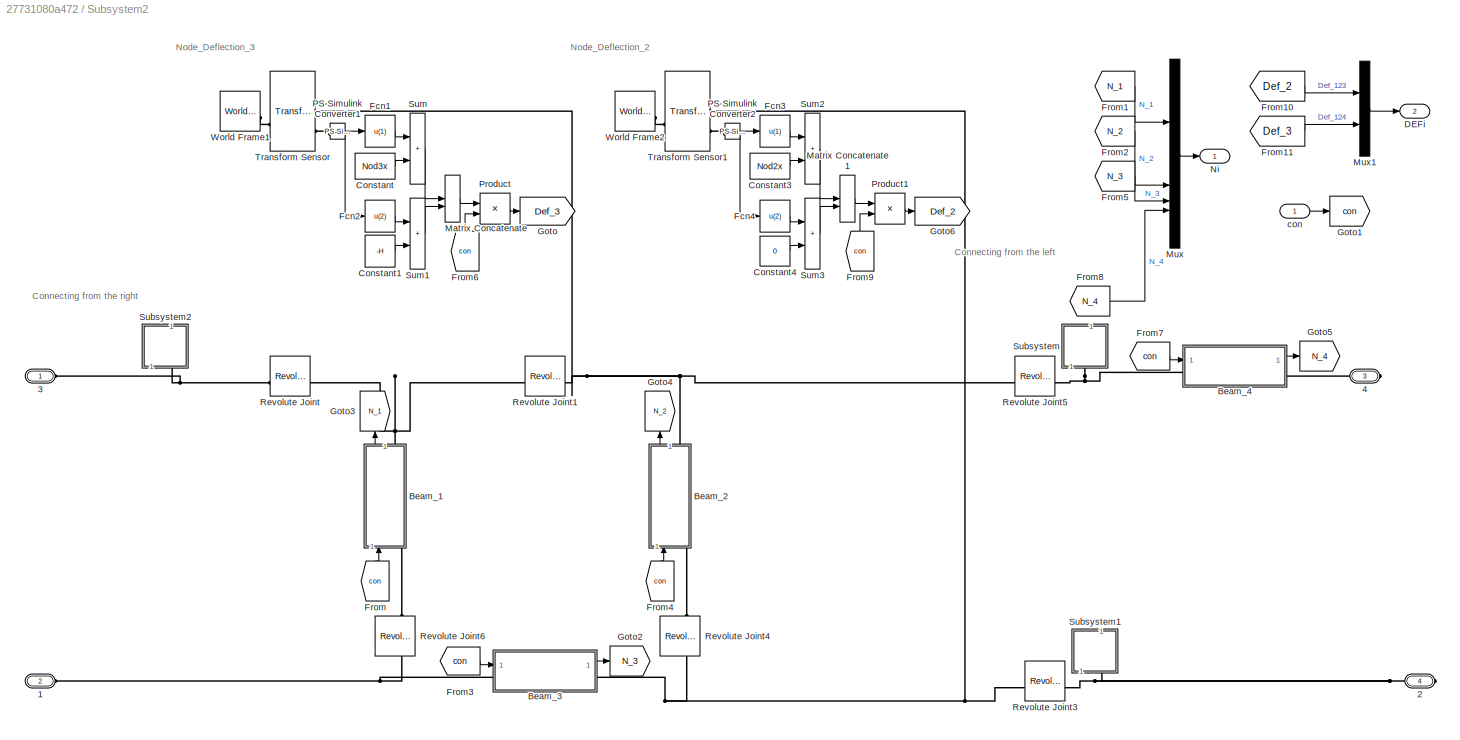
BLOCK [SubSystem] Subsystem2
  NameLocation = top
  PortSchema = {"entries":[{"content":{"sides":[{"content":{"connectorIds":["LConn1","LConn2"]},"type":"ConnectorPlacement.EquallySpacedRectSide","uuid":"5b691ec6-fd17-4a8f-b07c-565e148aea54"},{"content":{"connectorIds":["RConn1","RConn2"],"side":"RIGHT"},"type":"ConnectorPlacement.EquallySpacedRectSide","uuid":"123b4379-6f63-4bac-8b3e-d1a87a3d78c4"},{"content":{"side":"TOP"},"type":"ConnectorPlacement.EquallySp...<+408ch>  <repeated x8 — deduplicated; at blocks: Subsystem2, Subsystem3, Subsystem4, Subsystem5, Subsystem6, Subsystem7, Subsystem8, Subsystem9>
BLOCK [PMIOPort] Subsystem2/1
  Port = 2
  Side = Left
BLOCK [PMIOPort] Subsystem2/2
  Port = 4
  Side = Right
BLOCK [PMIOPort] Subsystem2/3
  Side = Left
BLOCK [PMIOPort] Subsystem2/4
  Port = 3
  Side = Right
BLOCK [SubSystem] Subsystem2/Beam_1
  NameLocation = left
BLOCK [PMIOPort] Subsystem2/Beam_1/B
  Side = Left
BLOCK [DotProduct] Subsystem2/Beam_1/Dot Product
  OutDataTypeStr = Inherit: Inherit via internal rule
BLOCK [PMIOPort] Subsystem2/Beam_1/F
  Port = 2
  Side = Right
BLOCK [Reference] Subsystem2/Beam_1/Flexible Cylindrical Beam1  REF=sm_lib/Body Elements/Flexible Bodies/Beams/Flexible Cylindrical Beam
  AttributesFormatString = %<Description>
  SourceBlock = sm_lib/Body Elements/Flexible Bodies/Beams/Flexible Cylindrical Beam
  SourceType = Flexible Cylindrical Beam
BLOCK [MATLABFcn] Subsystem2/Beam_1/Interpreted MATLAB Function
  AttributesFormatString = %<Description>
  Description = u(3)
  MATLABFcn = u(3)
BLOCK [Outport] Subsystem2/Beam_1/Ni
BLOCK [Reference] Subsystem2/Beam_1/PS-Simulink Converter6  REF=nesl_utility/PS-Simulink
Converter
  SourceBlock = nesl_utility/PS-Simulink\nConverter
  SourceType = PS-Simulink\nConverter
BLOCK [Reference] Subsystem2/Beam_1/Rigid Transform1  REF=sm_lib/Frames and
Transforms/Rigid
Transform
  AttributesFormatString = %<RotationStandardAxis>\n%<RotationAngle> deg
  SourceBlock = sm_lib/Frames and\nTransforms/Rigid\nTransform
  SourceType = Rigid\nTransform
BLOCK [Reference] Subsystem2/Beam_1/Rigid Transform2  REF=sm_lib/Frames and
Transforms/Rigid
Transform
  AttributesFormatString = %<RotationStandardAxis>\n%<RotationAngle> deg
  SourceBlock = sm_lib/Frames and\nTransforms/Rigid\nTransform
  SourceType = Rigid\nTransform
BLOCK [Reference] Subsystem2/Beam_1/Weld Joint2  REF=sm_lib/Joints/Weld Joint
  AttributesFormatString = %<Description>
  Description = Total force\nsensing
  SourceBlock = sm_lib/Joints/Weld Joint
  SourceType = Weld Joint
BLOCK [Inport] Subsystem2/Beam_1/con
BLOCK [SubSystem] Subsystem2/Beam_2
  NameLocation = right
BLOCK [PMIOPort] Subsystem2/Beam_2/B
  Side = Left
BLOCK [DotProduct] Subsystem2/Beam_2/Dot Product
  OutDataTypeStr = Inherit: Inherit via internal rule
BLOCK [PMIOPort] Subsystem2/Beam_2/F
  Port = 2
  Side = Right
BLOCK [Reference] Subsystem2/Beam_2/Flexible Cylindrical Beam1  REF=sm_lib/Body Elements/Flexible Bodies/Beams/Flexible Cylindrical Beam
  AttributesFormatString = %<Description>
  SourceBlock = sm_lib/Body Elements/Flexible Bodies/Beams/Flexible Cylindrical Beam
  SourceType = Flexible Cylindrical Beam
BLOCK [MATLABFcn] Subsystem2/Beam_2/Interpreted MATLAB Function
  AttributesFormatString = %<Description>
  Description = u(3)
  MATLABFcn = u(3)
BLOCK [Outport] Subsystem2/Beam_2/Ni
BLOCK [Reference] Subsystem2/Beam_2/PS-Simulink Converter6  REF=nesl_utility/PS-Simulink
Converter
  SourceBlock = nesl_utility/PS-Simulink\nConverter
  SourceType = PS-Simulink\nConverter
BLOCK [Reference] Subsystem2/Beam_2/Rigid Transform1  REF=sm_lib/Frames and
Transforms/Rigid
Transform
  AttributesFormatString = %<RotationStandardAxis>\n%<RotationAngle> deg
  SourceBlock = sm_lib/Frames and\nTransforms/Rigid\nTransform
  SourceType = Rigid\nTransform
BLOCK [Reference] Subsystem2/Beam_2/Rigid Transform2  REF=sm_lib/Frames and
Transforms/Rigid
Transform
  AttributesFormatString = %<RotationStandardAxis>\n%<RotationAngle> deg
  SourceBlock = sm_lib/Frames and\nTransforms/Rigid\nTransform
  SourceType = Rigid\nTransform
BLOCK [Reference] Subsystem2/Beam_2/Weld Joint2  REF=sm_lib/Joints/Weld Joint
  AttributesFormatString = %<Description>
  Description = Total force\nsensing
  SourceBlock = sm_lib/Joints/Weld Joint
  SourceType = Weld Joint
BLOCK [Inport] Subsystem2/Beam_2/con
BLOCK [SubSystem] Subsystem2/Beam_3
BLOCK [PMIOPort] Subsystem2/Beam_3/B
  Side = Left
BLOCK [Reference] Subsystem2/Beam_3/Beam  REF=sm_lib/Body Elements/Flexible Bodies/Beams/Flexible Cylindrical Beam
  AttributesFormatString = %<Description>
  SourceBlock = sm_lib/Body Elements/Flexible Bodies/Beams/Flexible Cylindrical Beam
  SourceType = Flexible Cylindrical Beam
BLOCK [DotProduct] Subsystem2/Beam_3/Dot Product
  OutDataTypeStr = Inherit: Inherit via internal rule
BLOCK [PMIOPort] Subsystem2/Beam_3/F
  Port = 2
  Side = Right
BLOCK [MATLABFcn] Subsystem2/Beam_3/Interpreted MATLAB Function
  AttributesFormatString = %<Description>
  Description = u(3)
  MATLABFcn = u(3)
BLOCK [Outport] Subsystem2/Beam_3/Ni
BLOCK [Reference] Subsystem2/Beam_3/PS-Simulink Converter6  REF=nesl_utility/PS-Simulink
Converter
  SourceBlock = nesl_utility/PS-Simulink\nConverter
  SourceType = PS-Simulink\nConverter
BLOCK [Reference] Subsystem2/Beam_3/Rigid Transform1  REF=sm_lib/Frames and
Transforms/Rigid
Transform
  AttributesFormatString = %<RotationStandardAxis>\n%<RotationAngle> deg
  SourceBlock = sm_lib/Frames and\nTransforms/Rigid\nTransform
  SourceType = Rigid\nTransform
BLOCK [Reference] Subsystem2/Beam_3/Rigid Transform2  REF=sm_lib/Frames and
Transforms/Rigid
Transform
  AttributesFormatString = %<RotationStandardAxis>\n%<RotationAngle> deg
  SourceBlock = sm_lib/Frames and\nTransforms/Rigid\nTransform
  SourceType = Rigid\nTransform
BLOCK [Reference] Subsystem2/Beam_3/Weld Joint2  REF=sm_lib/Joints/Weld Joint
  AttributesFormatString = %<Description>
  Description = Total force\nsensing
  SourceBlock = sm_lib/Joints/Weld Joint
  SourceType = Weld Joint
BLOCK [Inport] Subsystem2/Beam_3/con
BLOCK [SubSystem] Subsystem2/Beam_4
BLOCK [PMIOPort] Subsystem2/Beam_4/B
  Side = Left
BLOCK [Reference] Subsystem2/Beam_4/Beam  REF=sm_lib/Body Elements/Flexible Bodies/Beams/Flexible Cylindrical Beam
  AttributesFormatString = %<Description>
  SourceBlock = sm_lib/Body Elements/Flexible Bodies/Beams/Flexible Cylindrical Beam
  SourceType = Flexible Cylindrical Beam
BLOCK [DotProduct] Subsystem2/Beam_4/Dot Product
  OutDataTypeStr = Inherit: Inherit via internal rule
BLOCK [PMIOPort] Subsystem2/Beam_4/F
  Port = 2
  Side = Right
BLOCK [MATLABFcn] Subsystem2/Beam_4/Interpreted MATLAB Function
  AttributesFormatString = %<Description>
  Description = u(3)
  MATLABFcn = u(3)
BLOCK [Outport] Subsystem2/Beam_4/Ni
BLOCK [Reference] Subsystem2/Beam_4/PS-Simulink Converter6  REF=nesl_utility/PS-Simulink
Converter
  SourceBlock = nesl_utility/PS-Simulink\nConverter
  SourceType = PS-Simulink\nConverter
BLOCK [Reference] Subsystem2/Beam_4/Rigid Transform1  REF=sm_lib/Frames and
Transforms/Rigid
Transform
  AttributesFormatString = %<RotationStandardAxis>\n%<RotationAngle> deg
  SourceBlock = sm_lib/Frames and\nTransforms/Rigid\nTransform
  SourceType = Rigid\nTransform
BLOCK [Reference] Subsystem2/Beam_4/Rigid Transform2  REF=sm_lib/Frames and
Transforms/Rigid
Transform
  AttributesFormatString = %<RotationStandardAxis>\n%<RotationAngle> deg
  SourceBlock = sm_lib/Frames and\nTransforms/Rigid\nTransform
  SourceType = Rigid\nTransform
BLOCK [Reference] Subsystem2/Beam_4/Weld Joint2  REF=sm_lib/Joints/Weld Joint
  AttributesFormatString = %<Description>
  Description = Total force\nsensing
  SourceBlock = sm_lib/Joints/Weld Joint
  SourceType = Weld Joint
BLOCK [Inport] Subsystem2/Beam_4/con
BLOCK [Constant] Subsystem2/Constant
  Value = Nod3x
BLOCK [Constant] Subsystem2/Constant1
  Value = -H
BLOCK [Constant] Subsystem2/Constant3
  Value = Nod2x
BLOCK [Constant] Subsystem2/Constant4
  Value = 0
BLOCK [Outport] Subsystem2/DEFi
  Port = 2
BLOCK [Fcn] Subsystem2/Fcn1
  Expr = u(1)
BLOCK [Fcn] Subsystem2/Fcn2
  Expr = u(2)
BLOCK [Fcn] Subsystem2/Fcn3
  Expr = u(1)
BLOCK [Fcn] Subsystem2/Fcn4
  Expr = u(2)
BLOCK [From] Subsystem2/From
  GotoTag = con
  NameLocation = right
BLOCK [From] Subsystem2/From1
  GotoTag = N_1
  NameLocation = top
BLOCK [From] Subsystem2/From10
  GotoTag = Def_2
  NameLocation = top
BLOCK [From] Subsystem2/From11
  GotoTag = Def_3
  NameLocation = top
BLOCK [From] Subsystem2/From2
  GotoTag = N_2
  NameLocation = top
BLOCK [From] Subsystem2/From3
  GotoTag = con
BLOCK [From] Subsystem2/From4
  GotoTag = con
  NameLocation = right
BLOCK [From] Subsystem2/From5
  GotoTag = N_3
  NameLocation = top
BLOCK [From] Subsystem2/From6
  GotoTag = con
  NameLocation = right
BLOCK [From] Subsystem2/From7
  GotoTag = con
BLOCK [From] Subsystem2/From8
  GotoTag = N_4
  NameLocation = top
BLOCK [From] Subsystem2/From9
  GotoTag = con
  NameLocation = right
BLOCK [Goto] Subsystem2/Goto
  GotoTag = Def_3
BLOCK [Goto] Subsystem2/Goto1
  GotoTag = con
BLOCK [Goto] Subsystem2/Goto2
  GotoTag = N_3
BLOCK [Goto] Subsystem2/Goto3
  GotoTag = N_1
  NameLocation = right
BLOCK [Goto] Subsystem2/Goto4
  GotoTag = N_2
  NameLocation = right
BLOCK [Goto] Subsystem2/Goto5
  GotoTag = N_4
BLOCK [Goto] Subsystem2/Goto6
  GotoTag = Def_2
BLOCK [Concatenate] Subsystem2/Matrix Concatenate
  AttributesFormatString = %<Description>
  ConcatenateDimension = 2
BLOCK [Concatenate] Subsystem2/Matrix Concatenate1
  AttributesFormatString = %<Description>
  ConcatenateDimension = 2
BLOCK [Mux] Subsystem2/Mux
  DisplayOption = bar
BLOCK [Mux] Subsystem2/Mux1
  DisplayOption = bar
  Inputs = 2
BLOCK [Outport] Subsystem2/Ni
BLOCK [Reference] Subsystem2/PS-Simulink Converter1  REF=nesl_utility/PS-Simulink
Converter
  SourceBlock = nesl_utility/PS-Simulink\nConverter
  SourceType = PS-Simulink\nConverter
BLOCK [Reference] Subsystem2/PS-Simulink Converter2  REF=nesl_utility/PS-Simulink
Converter
  SourceBlock = nesl_utility/PS-Simulink\nConverter
  SourceType = PS-Simulink\nConverter
BLOCK [Product] Subsystem2/Product
BLOCK [Product] Subsystem2/Product1
BLOCK [Reference] Subsystem2/Revolute Joint  REF=sm_lib/Joints/Revolute Joint
  SourceBlock = sm_lib/Joints/Revolute Joint
  SourceType = Revolute Joint
BLOCK [Reference] Subsystem2/Revolute Joint1  REF=sm_lib/Joints/Revolute Joint
  AttributesFormatString = %<PositionTargetValue>
  SourceBlock = sm_lib/Joints/Revolute Joint
  SourceType = Revolute Joint
BLOCK [Reference] Subsystem2/Revolute Joint3  REF=sm_lib/Joints/Revolute Joint
  AttributesFormatString = %<PositionTargetValue>
  SourceBlock = sm_lib/Joints/Revolute Joint
  SourceType = Revolute Joint
BLOCK [Reference] Subsystem2/Revolute Joint4  REF=sm_lib/Joints/Revolute Joint
  NameLocation = right
  SourceBlock = sm_lib/Joints/Revolute Joint
  SourceType = Revolute Joint
BLOCK [Reference] Subsystem2/Revolute Joint5  REF=sm_lib/Joints/Revolute Joint
  AttributesFormatString = %<PositionTargetValue>
  SourceBlock = sm_lib/Joints/Revolute Joint
  SourceType = Revolute Joint
BLOCK [Reference] Subsystem2/Revolute Joint6  REF=sm_lib/Joints/Revolute Joint
  AttributesFormatString = %<PositionTargetValue>
  NameLocation = right
  SourceBlock = sm_lib/Joints/Revolute Joint
  SourceType = Revolute Joint
BLOCK [SubSystem] Subsystem2/Subsystem
  NameLocation = right
BLOCK [PMIOPort] Subsystem2/Subsystem/Frame
  Side = Left
BLOCK [Reference] Subsystem2/Subsystem/Point Cloud1  REF=sm_lib/Curves and Surfaces/Point Cloud
  AttributesFormatString = %<Description>
  Description = Graphic\nsphere
  NameLocation = right
  SourceBlock = sm_lib/Curves and Surfaces/Point Cloud
  SourceType = Point Cloud
BLOCK [Reference] Subsystem2/Subsystem/Point1  REF=sm_lib/Curves and Surfaces/Point
  AttributesFormatString = %<Description>
  Description = Frame\nvisualization
  NameLocation = right
  SourceBlock = sm_lib/Curves and Surfaces/Point
  SourceType = Point
BLOCK [SubSystem] Subsystem2/Subsystem1
  NameLocation = right
BLOCK [PMIOPort] Subsystem2/Subsystem1/Frame
  Side = Left
BLOCK [Reference] Subsystem2/Subsystem1/Point Cloud1  REF=sm_lib/Curves and Surfaces/Point Cloud
  AttributesFormatString = %<Description>
  Description = Graphic\nsphere
  NameLocation = right
  SourceBlock = sm_lib/Curves and Surfaces/Point Cloud
  SourceType = Point Cloud
BLOCK [Reference] Subsystem2/Subsystem1/Point1  REF=sm_lib/Curves and Surfaces/Point
  AttributesFormatString = %<Description>
  Description = Frame\nvisualization
  NameLocation = right
  SourceBlock = sm_lib/Curves and Surfaces/Point
  SourceType = Point
BLOCK [SubSystem] Subsystem2/Subsystem2
  NameLocation = right
BLOCK [PMIOPort] Subsystem2/Subsystem2/Frame
  Side = Left
BLOCK [Reference] Subsystem2/Subsystem2/Point Cloud1  REF=sm_lib/Curves and Surfaces/Point Cloud
  AttributesFormatString = %<Description>
  Description = Graphic\nsphere
  NameLocation = right
  SourceBlock = sm_lib/Curves and Surfaces/Point Cloud
  SourceType = Point Cloud
BLOCK [Reference] Subsystem2/Subsystem2/Point1  REF=sm_lib/Curves and Surfaces/Point
  AttributesFormatString = %<Description>
  Description = Frame\nvisualization
  NameLocation = right
  SourceBlock = sm_lib/Curves and Surfaces/Point
  SourceType = Point
BLOCK [Sum] Subsystem2/Sum
  IconShape = rectangular
  Inputs = 2
BLOCK [Sum] Subsystem2/Sum1
  IconShape = rectangular
  Inputs = 2
BLOCK [Sum] Subsystem2/Sum2
  IconShape = rectangular
  Inputs = 2
BLOCK [Sum] Subsystem2/Sum3
  IconShape = rectangular
  Inputs = 2
BLOCK [Reference] Subsystem2/Transform Sensor  REF=sm_lib/Frames and
Transforms/Transform
Sensor
  AttributesFormatString = %<Description>
  Description = Translation\n[x, y, z]
  SourceBlock = sm_lib/Frames and\nTransforms/Transform\nSensor
  SourceType = Transform\nSensor
BLOCK [Reference] Subsystem2/Transform Sensor1  REF=sm_lib/Frames and
Transforms/Transform
Sensor
  AttributesFormatString = %<Description>
  Description = Translation\n[x, y, z]
  SourceBlock = sm_lib/Frames and\nTransforms/Transform\nSensor
  SourceType = Transform\nSensor
BLOCK [Reference] Subsystem2/World Frame1  REF=sm_lib/Frames and
Transforms/World Frame
  SourceBlock = sm_lib/Frames and\nTransforms/World Frame
  SourceType = World Frame
BLOCK [Reference] Subsystem2/World Frame2  REF=sm_lib/Frames and
Transforms/World Frame
  SourceBlock = sm_lib/Frames and\nTransforms/World Frame
  SourceType = World Frame
BLOCK [Inport] Subsystem2/con
BLOCK [SubSystem] Subsystem3
  NameLocation = top
BLOCK [PMIOPort] Subsystem3/1
  Port = 2
  Side = Left
BLOCK [PMIOPort] Subsystem3/2
  Port = 4
  Side = Right
BLOCK [PMIOPort] Subsystem3/3
  Side = Left
BLOCK [PMIOPort] Subsystem3/4
  Port = 3
  Side = Right
BLOCK [SubSystem] Subsystem3/Beam_1
  NameLocation = left
BLOCK [PMIOPort] Subsystem3/Beam_1/B
  Side = Left
BLOCK [DotProduct] Subsystem3/Beam_1/Dot Product
  OutDataTypeStr = Inherit: Inherit via internal rule
BLOCK [PMIOPort] Subsystem3/Beam_1/F
  Port = 2
  Side = Right
BLOCK [Reference] Subsystem3/Beam_1/Flexible Cylindrical Beam1  REF=sm_lib/Body Elements/Flexible Bodies/Beams/Flexible Cylindrical Beam
  AttributesFormatString = %<Description>
  SourceBlock = sm_lib/Body Elements/Flexible Bodies/Beams/Flexible Cylindrical Beam
  SourceType = Flexible Cylindrical Beam
BLOCK [MATLABFcn] Subsystem3/Beam_1/Interpreted MATLAB Function
  AttributesFormatString = %<Description>
  Description = u(3)
  MATLABFcn = u(3)
BLOCK [Outport] Subsystem3/Beam_1/Ni
BLOCK [Reference] Subsystem3/Beam_1/PS-Simulink Converter6  REF=nesl_utility/PS-Simulink
Converter
  SourceBlock = nesl_utility/PS-Simulink\nConverter
  SourceType = PS-Simulink\nConverter
BLOCK [Reference] Subsystem3/Beam_1/Rigid Transform1  REF=sm_lib/Frames and
Transforms/Rigid
Transform
  AttributesFormatString = %<RotationStandardAxis>\n%<RotationAngle> deg
  SourceBlock = sm_lib/Frames and\nTransforms/Rigid\nTransform
  SourceType = Rigid\nTransform
BLOCK [Reference] Subsystem3/Beam_1/Rigid Transform2  REF=sm_lib/Frames and
Transforms/Rigid
Transform
  AttributesFormatString = %<RotationStandardAxis>\n%<RotationAngle> deg
  SourceBlock = sm_lib/Frames and\nTransforms/Rigid\nTransform
  SourceType = Rigid\nTransform
BLOCK [Reference] Subsystem3/Beam_1/Weld Joint2  REF=sm_lib/Joints/Weld Joint
  AttributesFormatString = %<Description>
  Description = Total force\nsensing
  SourceBlock = sm_lib/Joints/Weld Joint
  SourceType = Weld Joint
BLOCK [Inport] Subsystem3/Beam_1/con
BLOCK [SubSystem] Subsystem3/Beam_2
  NameLocation = right
BLOCK [PMIOPort] Subsystem3/Beam_2/B
  Side = Left
BLOCK [DotProduct] Subsystem3/Beam_2/Dot Product
  OutDataTypeStr = Inherit: Inherit via internal rule
BLOCK [PMIOPort] Subsystem3/Beam_2/F
  Port = 2
  Side = Right
BLOCK [Reference] Subsystem3/Beam_2/Flexible Cylindrical Beam1  REF=sm_lib/Body Elements/Flexible Bodies/Beams/Flexible Cylindrical Beam
  AttributesFormatString = %<Description>
  SourceBlock = sm_lib/Body Elements/Flexible Bodies/Beams/Flexible Cylindrical Beam
  SourceType = Flexible Cylindrical Beam
BLOCK [MATLABFcn] Subsystem3/Beam_2/Interpreted MATLAB Function
  AttributesFormatString = %<Description>
  Description = u(3)
  MATLABFcn = u(3)
BLOCK [Outport] Subsystem3/Beam_2/Ni
BLOCK [Reference] Subsystem3/Beam_2/PS-Simulink Converter6  REF=nesl_utility/PS-Simulink
Converter
  SourceBlock = nesl_utility/PS-Simulink\nConverter
  SourceType = PS-Simulink\nConverter
BLOCK [Reference] Subsystem3/Beam_2/Rigid Transform1  REF=sm_lib/Frames and
Transforms/Rigid
Transform
  AttributesFormatString = %<RotationStandardAxis>\n%<RotationAngle> deg
  SourceBlock = sm_lib/Frames and\nTransforms/Rigid\nTransform
  SourceType = Rigid\nTransform
BLOCK [Reference] Subsystem3/Beam_2/Rigid Transform2  REF=sm_lib/Frames and
Transforms/Rigid
Transform
  AttributesFormatString = %<RotationStandardAxis>\n%<RotationAngle> deg
  SourceBlock = sm_lib/Frames and\nTransforms/Rigid\nTransform
  SourceType = Rigid\nTransform
BLOCK [Reference] Subsystem3/Beam_2/Weld Joint2  REF=sm_lib/Joints/Weld Joint
  AttributesFormatString = %<Description>
  Description = Total force\nsensing
  SourceBlock = sm_lib/Joints/Weld Joint
  SourceType = Weld Joint
BLOCK [Inport] Subsystem3/Beam_2/con
BLOCK [SubSystem] Subsystem3/Beam_3
BLOCK [PMIOPort] Subsystem3/Beam_3/B
  Side = Left
BLOCK [Reference] Subsystem3/Beam_3/Beam  REF=sm_lib/Body Elements/Flexible Bodies/Beams/Flexible Cylindrical Beam
  AttributesFormatString = %<Description>
  SourceBlock = sm_lib/Body Elements/Flexible Bodies/Beams/Flexible Cylindrical Beam
  SourceType = Flexible Cylindrical Beam
BLOCK [DotProduct] Subsystem3/Beam_3/Dot Product
  OutDataTypeStr = Inherit: Inherit via internal rule
BLOCK [PMIOPort] Subsystem3/Beam_3/F
  Port = 2
  Side = Right
BLOCK [MATLABFcn] Subsystem3/Beam_3/Interpreted MATLAB Function
  AttributesFormatString = %<Description>
  Description = u(3)
  MATLABFcn = u(3)
BLOCK [Outport] Subsystem3/Beam_3/Ni
BLOCK [Reference] Subsystem3/Beam_3/PS-Simulink Converter6  REF=nesl_utility/PS-Simulink
Converter
  SourceBlock = nesl_utility/PS-Simulink\nConverter
  SourceType = PS-Simulink\nConverter
BLOCK [Reference] Subsystem3/Beam_3/Rigid Transform1  REF=sm_lib/Frames and
Transforms/Rigid
Transform
  AttributesFormatString = %<RotationStandardAxis>\n%<RotationAngle> deg
  SourceBlock = sm_lib/Frames and\nTransforms/Rigid\nTransform
  SourceType = Rigid\nTransform
BLOCK [Reference] Subsystem3/Beam_3/Rigid Transform2  REF=sm_lib/Frames and
Transforms/Rigid
Transform
  AttributesFormatString = %<RotationStandardAxis>\n%<RotationAngle> deg
  SourceBlock = sm_lib/Frames and\nTransforms/Rigid\nTransform
  SourceType = Rigid\nTransform
BLOCK [Reference] Subsystem3/Beam_3/Weld Joint2  REF=sm_lib/Joints/Weld Joint
  AttributesFormatString = %<Description>
  Description = Total force\nsensing
  SourceBlock = sm_lib/Joints/Weld Joint
  SourceType = Weld Joint
BLOCK [Inport] Subsystem3/Beam_3/con
BLOCK [SubSystem] Subsystem3/Beam_4
BLOCK [PMIOPort] Subsystem3/Beam_4/B
  Side = Left
BLOCK [Reference] Subsystem3/Beam_4/Beam  REF=sm_lib/Body Elements/Flexible Bodies/Beams/Flexible Cylindrical Beam
  AttributesFormatString = %<Description>
  SourceBlock = sm_lib/Body Elements/Flexible Bodies/Beams/Flexible Cylindrical Beam
  SourceType = Flexible Cylindrical Beam
BLOCK [DotProduct] Subsystem3/Beam_4/Dot Product
  OutDataTypeStr = Inherit: Inherit via internal rule
BLOCK [PMIOPort] Subsystem3/Beam_4/F
  Port = 2
  Side = Right
BLOCK [MATLABFcn] Subsystem3/Beam_4/Interpreted MATLAB Function
  AttributesFormatString = %<Description>
  Description = u(3)
  MATLABFcn = u(3)
BLOCK [Outport] Subsystem3/Beam_4/Ni
BLOCK [Reference] Subsystem3/Beam_4/PS-Simulink Converter6  REF=nesl_utility/PS-Simulink
Converter
  SourceBlock = nesl_utility/PS-Simulink\nConverter
  SourceType = PS-Simulink\nConverter
BLOCK [Reference] Subsystem3/Beam_4/Rigid Transform1  REF=sm_lib/Frames and
Transforms/Rigid
Transform
  AttributesFormatString = %<RotationStandardAxis>\n%<RotationAngle> deg
  SourceBlock = sm_lib/Frames and\nTransforms/Rigid\nTransform
  SourceType = Rigid\nTransform
BLOCK [Reference] Subsystem3/Beam_4/Rigid Transform2  REF=sm_lib/Frames and
Transforms/Rigid
Transform
  AttributesFormatString = %<RotationStandardAxis>\n%<RotationAngle> deg
  SourceBlock = sm_lib/Frames and\nTransforms/Rigid\nTransform
  SourceType = Rigid\nTransform
BLOCK [Reference] Subsystem3/Beam_4/Weld Joint2  REF=sm_lib/Joints/Weld Joint
  AttributesFormatString = %<Description>
  Description = Total force\nsensing
  SourceBlock = sm_lib/Joints/Weld Joint
  SourceType = Weld Joint
BLOCK [Inport] Subsystem3/Beam_4/con
BLOCK [Constant] Subsystem3/Constant
  Value = Nod3x
BLOCK [Constant] Subsystem3/Constant1
  Value = -H
BLOCK [Constant] Subsystem3/Constant3
  Value = Nod2x
BLOCK [Constant] Subsystem3/Constant4
  Value = 0
BLOCK [Outport] Subsystem3/DEFi
  Port = 2
BLOCK [Fcn] Subsystem3/Fcn1
  Expr = u(1)
BLOCK [Fcn] Subsystem3/Fcn2
  Expr = u(2)
BLOCK [Fcn] Subsystem3/Fcn3
  Expr = u(1)
BLOCK [Fcn] Subsystem3/Fcn4
  Expr = u(2)
BLOCK [From] Subsystem3/From
  GotoTag = con
  NameLocation = right
BLOCK [From] Subsystem3/From1
  GotoTag = N_1
  NameLocation = top
BLOCK [From] Subsystem3/From10
  GotoTag = Def_2
  NameLocation = top
BLOCK [From] Subsystem3/From11
  GotoTag = Def_3
  NameLocation = top
BLOCK [From] Subsystem3/From2
  GotoTag = N_2
  NameLocation = top
BLOCK [From] Subsystem3/From3
  GotoTag = con
BLOCK [From] Subsystem3/From4
  GotoTag = con
  NameLocation = right
BLOCK [From] Subsystem3/From5
  GotoTag = N_3
  NameLocation = top
BLOCK [From] Subsystem3/From6
  GotoTag = con
  NameLocation = right
BLOCK [From] Subsystem3/From7
  GotoTag = con
BLOCK [From] Subsystem3/From8
  GotoTag = N_4
  NameLocation = top
BLOCK [From] Subsystem3/From9
  GotoTag = con
  NameLocation = right
BLOCK [Goto] Subsystem3/Goto
  GotoTag = Def_3
BLOCK [Goto] Subsystem3/Goto1
  GotoTag = con
BLOCK [Goto] Subsystem3/Goto2
  GotoTag = N_3
BLOCK [Goto] Subsystem3/Goto3
  GotoTag = N_1
  NameLocation = right
BLOCK [Goto] Subsystem3/Goto4
  GotoTag = N_2
  NameLocation = right
BLOCK [Goto] Subsystem3/Goto5
  GotoTag = N_4
BLOCK [Goto] Subsystem3/Goto6
  GotoTag = Def_2
BLOCK [Concatenate] Subsystem3/Matrix Concatenate
  AttributesFormatString = %<Description>
  ConcatenateDimension = 2
BLOCK [Concatenate] Subsystem3/Matrix Concatenate1
  AttributesFormatString = %<Description>
  ConcatenateDimension = 2
BLOCK [Mux] Subsystem3/Mux
  DisplayOption = bar
BLOCK [Mux] Subsystem3/Mux1
  DisplayOption = bar
  Inputs = 2
BLOCK [Outport] Subsystem3/Ni
BLOCK [Reference] Subsystem3/PS-Simulink Converter1  REF=nesl_utility/PS-Simulink
Converter
  SourceBlock = nesl_utility/PS-Simulink\nConverter
  SourceType = PS-Simulink\nConverter
BLOCK [Reference] Subsystem3/PS-Simulink Converter2  REF=nesl_utility/PS-Simulink
Converter
  SourceBlock = nesl_utility/PS-Simulink\nConverter
  SourceType = PS-Simulink\nConverter
BLOCK [Product] Subsystem3/Product
BLOCK [Product] Subsystem3/Product1
BLOCK [Reference] Subsystem3/Revolute Joint  REF=sm_lib/Joints/Revolute Joint
  SourceBlock = sm_lib/Joints/Revolute Joint
  SourceType = Revolute Joint
BLOCK [Reference] Subsystem3/Revolute Joint1  REF=sm_lib/Joints/Revolute Joint
  AttributesFormatString = %<PositionTargetValue>
  SourceBlock = sm_lib/Joints/Revolute Joint
  SourceType = Revolute Joint
BLOCK [Reference] Subsystem3/Revolute Joint3  REF=sm_lib/Joints/Revolute Joint
  AttributesFormatString = %<PositionTargetValue>
  SourceBlock = sm_lib/Joints/Revolute Joint
  SourceType = Revolute Joint
BLOCK [Reference] Subsystem3/Revolute Joint4  REF=sm_lib/Joints/Revolute Joint
  NameLocation = right
  SourceBlock = sm_lib/Joints/Revolute Joint
  SourceType = Revolute Joint
BLOCK [Reference] Subsystem3/Revolute Joint5  REF=sm_lib/Joints/Revolute Joint
  AttributesFormatString = %<PositionTargetValue>
  SourceBlock = sm_lib/Joints/Revolute Joint
  SourceType = Revolute Joint
BLOCK [Reference] Subsystem3/Revolute Joint6  REF=sm_lib/Joints/Revolute Joint
  AttributesFormatString = %<PositionTargetValue>
  NameLocation = right
  SourceBlock = sm_lib/Joints/Revolute Joint
  SourceType = Revolute Joint
BLOCK [SubSystem] Subsystem3/Subsystem
  NameLocation = right
BLOCK [PMIOPort] Subsystem3/Subsystem/Frame
  Side = Left
BLOCK [Reference] Subsystem3/Subsystem/Point Cloud1  REF=sm_lib/Curves and Surfaces/Point Cloud
  AttributesFormatString = %<Description>
  Description = Graphic\nsphere
  NameLocation = right
  SourceBlock = sm_lib/Curves and Surfaces/Point Cloud
  SourceType = Point Cloud
BLOCK [Reference] Subsystem3/Subsystem/Point1  REF=sm_lib/Curves and Surfaces/Point
  AttributesFormatString = %<Description>
  Description = Frame\nvisualization
  NameLocation = right
  SourceBlock = sm_lib/Curves and Surfaces/Point
  SourceType = Point
BLOCK [SubSystem] Subsystem3/Subsystem1
  NameLocation = right
BLOCK [PMIOPort] Subsystem3/Subsystem1/Frame
  Side = Left
BLOCK [Reference] Subsystem3/Subsystem1/Point Cloud1  REF=sm_lib/Curves and Surfaces/Point Cloud
  AttributesFormatString = %<Description>
  Description = Graphic\nsphere
  NameLocation = right
  SourceBlock = sm_lib/Curves and Surfaces/Point Cloud
  SourceType = Point Cloud
BLOCK [Reference] Subsystem3/Subsystem1/Point1  REF=sm_lib/Curves and Surfaces/Point
  AttributesFormatString = %<Description>
  Description = Frame\nvisualization
  NameLocation = right
  SourceBlock = sm_lib/Curves and Surfaces/Point
  SourceType = Point
BLOCK [SubSystem] Subsystem3/Subsystem2
  NameLocation = right
BLOCK [PMIOPort] Subsystem3/Subsystem2/Frame
  Side = Left
BLOCK [Reference] Subsystem3/Subsystem2/Point Cloud1  REF=sm_lib/Curves and Surfaces/Point Cloud
  AttributesFormatString = %<Description>
  Description = Graphic\nsphere
  NameLocation = right
  SourceBlock = sm_lib/Curves and Surfaces/Point Cloud
  SourceType = Point Cloud
BLOCK [Reference] Subsystem3/Subsystem2/Point1  REF=sm_lib/Curves and Surfaces/Point
  AttributesFormatString = %<Description>
  Description = Frame\nvisualization
  NameLocation = right
  SourceBlock = sm_lib/Curves and Surfaces/Point
  SourceType = Point
BLOCK [Sum] Subsystem3/Sum
  IconShape = rectangular
  Inputs = 2
BLOCK [Sum] Subsystem3/Sum1
  IconShape = rectangular
  Inputs = 2
BLOCK [Sum] Subsystem3/Sum2
  IconShape = rectangular
  Inputs = 2
BLOCK [Sum] Subsystem3/Sum3
  IconShape = rectangular
  Inputs = 2
BLOCK [Reference] Subsystem3/Transform Sensor  REF=sm_lib/Frames and
Transforms/Transform
Sensor
  AttributesFormatString = %<Description>
  Description = Translation\n[x, y, z]
  SourceBlock = sm_lib/Frames and\nTransforms/Transform\nSensor
  SourceType = Transform\nSensor
BLOCK [Reference] Subsystem3/Transform Sensor1  REF=sm_lib/Frames and
Transforms/Transform
Sensor
  AttributesFormatString = %<Description>
  Description = Translation\n[x, y, z]
  SourceBlock = sm_lib/Frames and\nTransforms/Transform\nSensor
  SourceType = Transform\nSensor
BLOCK [Reference] Subsystem3/World Frame1  REF=sm_lib/Frames and
Transforms/World Frame
  SourceBlock = sm_lib/Frames and\nTransforms/World Frame
  SourceType = World Frame
BLOCK [Reference] Subsystem3/World Frame2  REF=sm_lib/Frames and
Transforms/World Frame
  SourceBlock = sm_lib/Frames and\nTransforms/World Frame
  SourceType = World Frame
BLOCK [Inport] Subsystem3/con
BLOCK [SubSystem] Subsystem4
  NameLocation = top
BLOCK [PMIOPort] Subsystem4/1
  Port = 2
  Side = Left
BLOCK [PMIOPort] Subsystem4/2
  Port = 4
  Side = Right
BLOCK [PMIOPort] Subsystem4/3
  Side = Left
BLOCK [PMIOPort] Subsystem4/4
  Port = 3
  Side = Right
BLOCK [SubSystem] Subsystem4/Beam_1
  NameLocation = left
BLOCK [PMIOPort] Subsystem4/Beam_1/B
  Side = Left
BLOCK [DotProduct] Subsystem4/Beam_1/Dot Product
  OutDataTypeStr = Inherit: Inherit via internal rule
BLOCK [PMIOPort] Subsystem4/Beam_1/F
  Port = 2
  Side = Right
BLOCK [Reference] Subsystem4/Beam_1/Flexible Cylindrical Beam1  REF=sm_lib/Body Elements/Flexible Bodies/Beams/Flexible Cylindrical Beam
  AttributesFormatString = %<Description>
  SourceBlock = sm_lib/Body Elements/Flexible Bodies/Beams/Flexible Cylindrical Beam
  SourceType = Flexible Cylindrical Beam
BLOCK [MATLABFcn] Subsystem4/Beam_1/Interpreted MATLAB Function
  AttributesFormatString = %<Description>
  Description = u(3)
  MATLABFcn = u(3)
BLOCK [Outport] Subsystem4/Beam_1/Ni
BLOCK [Reference] Subsystem4/Beam_1/PS-Simulink Converter6  REF=nesl_utility/PS-Simulink
Converter
  SourceBlock = nesl_utility/PS-Simulink\nConverter
  SourceType = PS-Simulink\nConverter
BLOCK [Reference] Subsystem4/Beam_1/Rigid Transform1  REF=sm_lib/Frames and
Transforms/Rigid
Transform
  AttributesFormatString = %<RotationStandardAxis>\n%<RotationAngle> deg
  SourceBlock = sm_lib/Frames and\nTransforms/Rigid\nTransform
  SourceType = Rigid\nTransform
BLOCK [Reference] Subsystem4/Beam_1/Rigid Transform2  REF=sm_lib/Frames and
Transforms/Rigid
Transform
  AttributesFormatString = %<RotationStandardAxis>\n%<RotationAngle> deg
  SourceBlock = sm_lib/Frames and\nTransforms/Rigid\nTransform
  SourceType = Rigid\nTransform
BLOCK [Reference] Subsystem4/Beam_1/Weld Joint2  REF=sm_lib/Joints/Weld Joint
  AttributesFormatString = %<Description>
  Description = Total force\nsensing
  SourceBlock = sm_lib/Joints/Weld Joint
  SourceType = Weld Joint
BLOCK [Inport] Subsystem4/Beam_1/con
BLOCK [SubSystem] Subsystem4/Beam_2
  NameLocation = right
BLOCK [PMIOPort] Subsystem4/Beam_2/B
  Side = Left
BLOCK [DotProduct] Subsystem4/Beam_2/Dot Product
  OutDataTypeStr = Inherit: Inherit via internal rule
BLOCK [PMIOPort] Subsystem4/Beam_2/F
  Port = 2
  Side = Right
BLOCK [Reference] Subsystem4/Beam_2/Flexible Cylindrical Beam1  REF=sm_lib/Body Elements/Flexible Bodies/Beams/Flexible Cylindrical Beam
  AttributesFormatString = %<Description>
  SourceBlock = sm_lib/Body Elements/Flexible Bodies/Beams/Flexible Cylindrical Beam
  SourceType = Flexible Cylindrical Beam
BLOCK [MATLABFcn] Subsystem4/Beam_2/Interpreted MATLAB Function
  AttributesFormatString = %<Description>
  Description = u(3)
  MATLABFcn = u(3)
BLOCK [Outport] Subsystem4/Beam_2/Ni
BLOCK [Reference] Subsystem4/Beam_2/PS-Simulink Converter6  REF=nesl_utility/PS-Simulink
Converter
  SourceBlock = nesl_utility/PS-Simulink\nConverter
  SourceType = PS-Simulink\nConverter
BLOCK [Reference] Subsystem4/Beam_2/Rigid Transform1  REF=sm_lib/Frames and
Transforms/Rigid
Transform
  AttributesFormatString = %<RotationStandardAxis>\n%<RotationAngle> deg
  SourceBlock = sm_lib/Frames and\nTransforms/Rigid\nTransform
  SourceType = Rigid\nTransform
BLOCK [Reference] Subsystem4/Beam_2/Rigid Transform2  REF=sm_lib/Frames and
Transforms/Rigid
Transform
  AttributesFormatString = %<RotationStandardAxis>\n%<RotationAngle> deg
  SourceBlock = sm_lib/Frames and\nTransforms/Rigid\nTransform
  SourceType = Rigid\nTransform
BLOCK [Reference] Subsystem4/Beam_2/Weld Joint2  REF=sm_lib/Joints/Weld Joint
  AttributesFormatString = %<Description>
  Description = Total force\nsensing
  SourceBlock = sm_lib/Joints/Weld Joint
  SourceType = Weld Joint
BLOCK [Inport] Subsystem4/Beam_2/con
BLOCK [SubSystem] Subsystem4/Beam_3
BLOCK [PMIOPort] Subsystem4/Beam_3/B
  Side = Left
BLOCK [Reference] Subsystem4/Beam_3/Beam  REF=sm_lib/Body Elements/Flexible Bodies/Beams/Flexible Cylindrical Beam
  AttributesFormatString = %<Description>
  SourceBlock = sm_lib/Body Elements/Flexible Bodies/Beams/Flexible Cylindrical Beam
  SourceType = Flexible Cylindrical Beam
BLOCK [DotProduct] Subsystem4/Beam_3/Dot Product
  OutDataTypeStr = Inherit: Inherit via internal rule
BLOCK [PMIOPort] Subsystem4/Beam_3/F
  Port = 2
  Side = Right
BLOCK [MATLABFcn] Subsystem4/Beam_3/Interpreted MATLAB Function
  AttributesFormatString = %<Description>
  Description = u(3)
  MATLABFcn = u(3)
BLOCK [Outport] Subsystem4/Beam_3/Ni
BLOCK [Reference] Subsystem4/Beam_3/PS-Simulink Converter6  REF=nesl_utility/PS-Simulink
Converter
  SourceBlock = nesl_utility/PS-Simulink\nConverter
  SourceType = PS-Simulink\nConverter
BLOCK [Reference] Subsystem4/Beam_3/Rigid Transform1  REF=sm_lib/Frames and
Transforms/Rigid
Transform
  AttributesFormatString = %<RotationStandardAxis>\n%<RotationAngle> deg
  SourceBlock = sm_lib/Frames and\nTransforms/Rigid\nTransform
  SourceType = Rigid\nTransform
BLOCK [Reference] Subsystem4/Beam_3/Rigid Transform2  REF=sm_lib/Frames and
Transforms/Rigid
Transform
  AttributesFormatString = %<RotationStandardAxis>\n%<RotationAngle> deg
  SourceBlock = sm_lib/Frames and\nTransforms/Rigid\nTransform
  SourceType = Rigid\nTransform
BLOCK [Reference] Subsystem4/Beam_3/Weld Joint2  REF=sm_lib/Joints/Weld Joint
  AttributesFormatString = %<Description>
  Description = Total force\nsensing
  SourceBlock = sm_lib/Joints/Weld Joint
  SourceType = Weld Joint
BLOCK [Inport] Subsystem4/Beam_3/con
BLOCK [SubSystem] Subsystem4/Beam_4
BLOCK [PMIOPort] Subsystem4/Beam_4/B
  Side = Left
BLOCK [Reference] Subsystem4/Beam_4/Beam  REF=sm_lib/Body Elements/Flexible Bodies/Beams/Flexible Cylindrical Beam
  AttributesFormatString = %<Description>
  SourceBlock = sm_lib/Body Elements/Flexible Bodies/Beams/Flexible Cylindrical Beam
  SourceType = Flexible Cylindrical Beam
BLOCK [DotProduct] Subsystem4/Beam_4/Dot Product
  OutDataTypeStr = Inherit: Inherit via internal rule
BLOCK [PMIOPort] Subsystem4/Beam_4/F
  Port = 2
  Side = Right
BLOCK [MATLABFcn] Subsystem4/Beam_4/Interpreted MATLAB Function
  AttributesFormatString = %<Description>
  Description = u(3)
  MATLABFcn = u(3)
BLOCK [Outport] Subsystem4/Beam_4/Ni
BLOCK [Reference] Subsystem4/Beam_4/PS-Simulink Converter6  REF=nesl_utility/PS-Simulink
Converter
  SourceBlock = nesl_utility/PS-Simulink\nConverter
  SourceType = PS-Simulink\nConverter
BLOCK [Reference] Subsystem4/Beam_4/Rigid Transform1  REF=sm_lib/Frames and
Transforms/Rigid
Transform
  AttributesFormatString = %<RotationStandardAxis>\n%<RotationAngle> deg
  SourceBlock = sm_lib/Frames and\nTransforms/Rigid\nTransform
  SourceType = Rigid\nTransform
BLOCK [Reference] Subsystem4/Beam_4/Rigid Transform2  REF=sm_lib/Frames and
Transforms/Rigid
Transform
  AttributesFormatString = %<RotationStandardAxis>\n%<RotationAngle> deg
  SourceBlock = sm_lib/Frames and\nTransforms/Rigid\nTransform
  SourceType = Rigid\nTransform
BLOCK [Reference] Subsystem4/Beam_4/Weld Joint2  REF=sm_lib/Joints/Weld Joint
  AttributesFormatString = %<Description>
  Description = Total force\nsensing
  SourceBlock = sm_lib/Joints/Weld Joint
  SourceType = Weld Joint
BLOCK [Inport] Subsystem4/Beam_4/con
BLOCK [Constant] Subsystem4/Constant
  Value = Nod3x
BLOCK [Constant] Subsystem4/Constant1
  Value = -H
BLOCK [Constant] Subsystem4/Constant3
  Value = Nod2x
BLOCK [Constant] Subsystem4/Constant4
  Value = 0
BLOCK [Outport] Subsystem4/DEFi
  Port = 2
BLOCK [Fcn] Subsystem4/Fcn1
  Expr = u(1)
BLOCK [Fcn] Subsystem4/Fcn2
  Expr = u(2)
BLOCK [Fcn] Subsystem4/Fcn3
  Expr = u(1)
BLOCK [Fcn] Subsystem4/Fcn4
  Expr = u(2)
BLOCK [From] Subsystem4/From
  GotoTag = con
  NameLocation = right
BLOCK [From] Subsystem4/From1
  GotoTag = N_1
  NameLocation = top
BLOCK [From] Subsystem4/From10
  GotoTag = Def_2
  NameLocation = top
BLOCK [From] Subsystem4/From11
  GotoTag = Def_3
  NameLocation = top
BLOCK [From] Subsystem4/From2
  GotoTag = N_2
  NameLocation = top
BLOCK [From] Subsystem4/From3
  GotoTag = con
BLOCK [From] Subsystem4/From4
  GotoTag = con
  NameLocation = right
BLOCK [From] Subsystem4/From5
  GotoTag = N_3
  NameLocation = top
BLOCK [From] Subsystem4/From6
  GotoTag = con
  NameLocation = right
BLOCK [From] Subsystem4/From7
  GotoTag = con
BLOCK [From] Subsystem4/From8
  GotoTag = N_4
  NameLocation = top
BLOCK [From] Subsystem4/From9
  GotoTag = con
  NameLocation = right
BLOCK [Goto] Subsystem4/Goto
  GotoTag = Def_3
BLOCK [Goto] Subsystem4/Goto1
  GotoTag = con
BLOCK [Goto] Subsystem4/Goto2
  GotoTag = N_3
BLOCK [Goto] Subsystem4/Goto3
  GotoTag = N_1
  NameLocation = right
BLOCK [Goto] Subsystem4/Goto4
  GotoTag = N_2
  NameLocation = right
BLOCK [Goto] Subsystem4/Goto5
  GotoTag = N_4
BLOCK [Goto] Subsystem4/Goto6
  GotoTag = Def_2
BLOCK [Concatenate] Subsystem4/Matrix Concatenate
  AttributesFormatString = %<Description>
  ConcatenateDimension = 2
BLOCK [Concatenate] Subsystem4/Matrix Concatenate1
  AttributesFormatString = %<Description>
  ConcatenateDimension = 2
BLOCK [Mux] Subsystem4/Mux
  DisplayOption = bar
BLOCK [Mux] Subsystem4/Mux1
  DisplayOption = bar
  Inputs = 2
BLOCK [Outport] Subsystem4/Ni
BLOCK [Reference] Subsystem4/PS-Simulink Converter1  REF=nesl_utility/PS-Simulink
Converter
  SourceBlock = nesl_utility/PS-Simulink\nConverter
  SourceType = PS-Simulink\nConverter
BLOCK [Reference] Subsystem4/PS-Simulink Converter2  REF=nesl_utility/PS-Simulink
Converter
  SourceBlock = nesl_utility/PS-Simulink\nConverter
  SourceType = PS-Simulink\nConverter
BLOCK [Product] Subsystem4/Product
BLOCK [Product] Subsystem4/Product1
BLOCK [Reference] Subsystem4/Revolute Joint  REF=sm_lib/Joints/Revolute Joint
  SourceBlock = sm_lib/Joints/Revolute Joint
  SourceType = Revolute Joint
BLOCK [Reference] Subsystem4/Revolute Joint1  REF=sm_lib/Joints/Revolute Joint
  AttributesFormatString = %<PositionTargetValue>
  SourceBlock = sm_lib/Joints/Revolute Joint
  SourceType = Revolute Joint
BLOCK [Reference] Subsystem4/Revolute Joint3  REF=sm_lib/Joints/Revolute Joint
  AttributesFormatString = %<PositionTargetValue>
  SourceBlock = sm_lib/Joints/Revolute Joint
  SourceType = Revolute Joint
BLOCK [Reference] Subsystem4/Revolute Joint4  REF=sm_lib/Joints/Revolute Joint
  NameLocation = right
  SourceBlock = sm_lib/Joints/Revolute Joint
  SourceType = Revolute Joint
BLOCK [Reference] Subsystem4/Revolute Joint5  REF=sm_lib/Joints/Revolute Joint
  AttributesFormatString = %<PositionTargetValue>
  SourceBlock = sm_lib/Joints/Revolute Joint
  SourceType = Revolute Joint
BLOCK [Reference] Subsystem4/Revolute Joint6  REF=sm_lib/Joints/Revolute Joint
  AttributesFormatString = %<PositionTargetValue>
  NameLocation = right
  SourceBlock = sm_lib/Joints/Revolute Joint
  SourceType = Revolute Joint
BLOCK [SubSystem] Subsystem4/Subsystem
  NameLocation = right
BLOCK [PMIOPort] Subsystem4/Subsystem/Frame
  Side = Left
BLOCK [Reference] Subsystem4/Subsystem/Point Cloud1  REF=sm_lib/Curves and Surfaces/Point Cloud
  AttributesFormatString = %<Description>
  Description = Graphic\nsphere
  NameLocation = right
  SourceBlock = sm_lib/Curves and Surfaces/Point Cloud
  SourceType = Point Cloud
BLOCK [Reference] Subsystem4/Subsystem/Point1  REF=sm_lib/Curves and Surfaces/Point
  AttributesFormatString = %<Description>
  Description = Frame\nvisualization
  NameLocation = right
  SourceBlock = sm_lib/Curves and Surfaces/Point
  SourceType = Point
BLOCK [SubSystem] Subsystem4/Subsystem1
  NameLocation = right
BLOCK [PMIOPort] Subsystem4/Subsystem1/Frame
  Side = Left
BLOCK [Reference] Subsystem4/Subsystem1/Point Cloud1  REF=sm_lib/Curves and Surfaces/Point Cloud
  AttributesFormatString = %<Description>
  Description = Graphic\nsphere
  NameLocation = right
  SourceBlock = sm_lib/Curves and Surfaces/Point Cloud
  SourceType = Point Cloud
BLOCK [Reference] Subsystem4/Subsystem1/Point1  REF=sm_lib/Curves and Surfaces/Point
  AttributesFormatString = %<Description>
  Description = Frame\nvisualization
  NameLocation = right
  SourceBlock = sm_lib/Curves and Surfaces/Point
  SourceType = Point
BLOCK [SubSystem] Subsystem4/Subsystem2
  NameLocation = right
BLOCK [PMIOPort] Subsystem4/Subsystem2/Frame
  Side = Left
BLOCK [Reference] Subsystem4/Subsystem2/Point Cloud1  REF=sm_lib/Curves and Surfaces/Point Cloud
  AttributesFormatString = %<Description>
  Description = Graphic\nsphere
  NameLocation = right
  SourceBlock = sm_lib/Curves and Surfaces/Point Cloud
  SourceType = Point Cloud
BLOCK [Reference] Subsystem4/Subsystem2/Point1  REF=sm_lib/Curves and Surfaces/Point
  AttributesFormatString = %<Description>
  Description = Frame\nvisualization
  NameLocation = right
  SourceBlock = sm_lib/Curves and Surfaces/Point
  SourceType = Point
BLOCK [Sum] Subsystem4/Sum
  IconShape = rectangular
  Inputs = 2
BLOCK [Sum] Subsystem4/Sum1
  IconShape = rectangular
  Inputs = 2
BLOCK [Sum] Subsystem4/Sum2
  IconShape = rectangular
  Inputs = 2
BLOCK [Sum] Subsystem4/Sum3
  IconShape = rectangular
  Inputs = 2
BLOCK [Reference] Subsystem4/Transform Sensor  REF=sm_lib/Frames and
Transforms/Transform
Sensor
  AttributesFormatString = %<Description>
  Description = Translation\n[x, y, z]
  SourceBlock = sm_lib/Frames and\nTransforms/Transform\nSensor
  SourceType = Transform\nSensor
BLOCK [Reference] Subsystem4/Transform Sensor1  REF=sm_lib/Frames and
Transforms/Transform
Sensor
  AttributesFormatString = %<Description>
  Description = Translation\n[x, y, z]
  SourceBlock = sm_lib/Frames and\nTransforms/Transform\nSensor
  SourceType = Transform\nSensor
BLOCK [Reference] Subsystem4/World Frame1  REF=sm_lib/Frames and
Transforms/World Frame
  SourceBlock = sm_lib/Frames and\nTransforms/World Frame
  SourceType = World Frame
BLOCK [Reference] Subsystem4/World Frame2  REF=sm_lib/Frames and
Transforms/World Frame
  SourceBlock = sm_lib/Frames and\nTransforms/World Frame
  SourceType = World Frame
BLOCK [Inport] Subsystem4/con
BLOCK [SubSystem] Subsystem5
  NameLocation = top
BLOCK [PMIOPort] Subsystem5/1
  Port = 2
  Side = Left
BLOCK [PMIOPort] Subsystem5/2
  Port = 4
  Side = Right
BLOCK [PMIOPort] Subsystem5/3
  Side = Left
BLOCK [PMIOPort] Subsystem5/4
  Port = 3
  Side = Right
BLOCK [SubSystem] Subsystem5/Beam_1
  NameLocation = left
BLOCK [PMIOPort] Subsystem5/Beam_1/B
  Side = Left
BLOCK [DotProduct] Subsystem5/Beam_1/Dot Product
  OutDataTypeStr = Inherit: Inherit via internal rule
BLOCK [PMIOPort] Subsystem5/Beam_1/F
  Port = 2
  Side = Right
BLOCK [Reference] Subsystem5/Beam_1/Flexible Cylindrical Beam1  REF=sm_lib/Body Elements/Flexible Bodies/Beams/Flexible Cylindrical Beam
  AttributesFormatString = %<Description>
  SourceBlock = sm_lib/Body Elements/Flexible Bodies/Beams/Flexible Cylindrical Beam
  SourceType = Flexible Cylindrical Beam
BLOCK [MATLABFcn] Subsystem5/Beam_1/Interpreted MATLAB Function
  AttributesFormatString = %<Description>
  Description = u(3)
  MATLABFcn = u(3)
BLOCK [Outport] Subsystem5/Beam_1/Ni
BLOCK [Reference] Subsystem5/Beam_1/PS-Simulink Converter6  REF=nesl_utility/PS-Simulink
Converter
  SourceBlock = nesl_utility/PS-Simulink\nConverter
  SourceType = PS-Simulink\nConverter
BLOCK [Reference] Subsystem5/Beam_1/Rigid Transform1  REF=sm_lib/Frames and
Transforms/Rigid
Transform
  AttributesFormatString = %<RotationStandardAxis>\n%<RotationAngle> deg
  SourceBlock = sm_lib/Frames and\nTransforms/Rigid\nTransform
  SourceType = Rigid\nTransform
BLOCK [Reference] Subsystem5/Beam_1/Rigid Transform2  REF=sm_lib/Frames and
Transforms/Rigid
Transform
  AttributesFormatString = %<RotationStandardAxis>\n%<RotationAngle> deg
  SourceBlock = sm_lib/Frames and\nTransforms/Rigid\nTransform
  SourceType = Rigid\nTransform
BLOCK [Reference] Subsystem5/Beam_1/Weld Joint2  REF=sm_lib/Joints/Weld Joint
  AttributesFormatString = %<Description>
  Description = Total force\nsensing
  SourceBlock = sm_lib/Joints/Weld Joint
  SourceType = Weld Joint
BLOCK [Inport] Subsystem5/Beam_1/con
BLOCK [SubSystem] Subsystem5/Beam_2
  NameLocation = right
BLOCK [PMIOPort] Subsystem5/Beam_2/B
  Side = Left
BLOCK [DotProduct] Subsystem5/Beam_2/Dot Product
  OutDataTypeStr = Inherit: Inherit via internal rule
BLOCK [PMIOPort] Subsystem5/Beam_2/F
  Port = 2
  Side = Right
BLOCK [Reference] Subsystem5/Beam_2/Flexible Cylindrical Beam1  REF=sm_lib/Body Elements/Flexible Bodies/Beams/Flexible Cylindrical Beam
  AttributesFormatString = %<Description>
  SourceBlock = sm_lib/Body Elements/Flexible Bodies/Beams/Flexible Cylindrical Beam
  SourceType = Flexible Cylindrical Beam
BLOCK [MATLABFcn] Subsystem5/Beam_2/Interpreted MATLAB Function
  AttributesFormatString = %<Description>
  Description = u(3)
  MATLABFcn = u(3)
BLOCK [Outport] Subsystem5/Beam_2/Ni
BLOCK [Reference] Subsystem5/Beam_2/PS-Simulink Converter6  REF=nesl_utility/PS-Simulink
Converter
  SourceBlock = nesl_utility/PS-Simulink\nConverter
  SourceType = PS-Simulink\nConverter
BLOCK [Reference] Subsystem5/Beam_2/Rigid Transform1  REF=sm_lib/Frames and
Transforms/Rigid
Transform
  AttributesFormatString = %<RotationStandardAxis>\n%<RotationAngle> deg
  SourceBlock = sm_lib/Frames and\nTransforms/Rigid\nTransform
  SourceType = Rigid\nTransform
BLOCK [Reference] Subsystem5/Beam_2/Rigid Transform2  REF=sm_lib/Frames and
Transforms/Rigid
Transform
  AttributesFormatString = %<RotationStandardAxis>\n%<RotationAngle> deg
  SourceBlock = sm_lib/Frames and\nTransforms/Rigid\nTransform
  SourceType = Rigid\nTransform
BLOCK [Reference] Subsystem5/Beam_2/Weld Joint2  REF=sm_lib/Joints/Weld Joint
  AttributesFormatString = %<Description>
  Description = Total force\nsensing
  SourceBlock = sm_lib/Joints/Weld Joint
  SourceType = Weld Joint
BLOCK [Inport] Subsystem5/Beam_2/con
BLOCK [SubSystem] Subsystem5/Beam_3
BLOCK [PMIOPort] Subsystem5/Beam_3/B
  Side = Left
BLOCK [Reference] Subsystem5/Beam_3/Beam  REF=sm_lib/Body Elements/Flexible Bodies/Beams/Flexible Cylindrical Beam
  AttributesFormatString = %<Description>
  SourceBlock = sm_lib/Body Elements/Flexible Bodies/Beams/Flexible Cylindrical Beam
  SourceType = Flexible Cylindrical Beam
BLOCK [DotProduct] Subsystem5/Beam_3/Dot Product
  OutDataTypeStr = Inherit: Inherit via internal rule
BLOCK [PMIOPort] Subsystem5/Beam_3/F
  Port = 2
  Side = Right
BLOCK [MATLABFcn] Subsystem5/Beam_3/Interpreted MATLAB Function
  AttributesFormatString = %<Description>
  Description = u(3)
  MATLABFcn = u(3)
BLOCK [Outport] Subsystem5/Beam_3/Ni
BLOCK [Reference] Subsystem5/Beam_3/PS-Simulink Converter6  REF=nesl_utility/PS-Simulink
Converter
  SourceBlock = nesl_utility/PS-Simulink\nConverter
  SourceType = PS-Simulink\nConverter
BLOCK [Reference] Subsystem5/Beam_3/Rigid Transform1  REF=sm_lib/Frames and
Transforms/Rigid
Transform
  AttributesFormatString = %<RotationStandardAxis>\n%<RotationAngle> deg
  SourceBlock = sm_lib/Frames and\nTransforms/Rigid\nTransform
  SourceType = Rigid\nTransform
BLOCK [Reference] Subsystem5/Beam_3/Rigid Transform2  REF=sm_lib/Frames and
Transforms/Rigid
Transform
  AttributesFormatString = %<RotationStandardAxis>\n%<RotationAngle> deg
  SourceBlock = sm_lib/Frames and\nTransforms/Rigid\nTransform
  SourceType = Rigid\nTransform
BLOCK [Reference] Subsystem5/Beam_3/Weld Joint2  REF=sm_lib/Joints/Weld Joint
  AttributesFormatString = %<Description>
  Description = Total force\nsensing
  SourceBlock = sm_lib/Joints/Weld Joint
  SourceType = Weld Joint
BLOCK [Inport] Subsystem5/Beam_3/con
BLOCK [SubSystem] Subsystem5/Beam_4
BLOCK [PMIOPort] Subsystem5/Beam_4/B
  Side = Left
BLOCK [Reference] Subsystem5/Beam_4/Beam  REF=sm_lib/Body Elements/Flexible Bodies/Beams/Flexible Cylindrical Beam
  AttributesFormatString = %<Description>
  SourceBlock = sm_lib/Body Elements/Flexible Bodies/Beams/Flexible Cylindrical Beam
  SourceType = Flexible Cylindrical Beam
BLOCK [DotProduct] Subsystem5/Beam_4/Dot Product
  OutDataTypeStr = Inherit: Inherit via internal rule
BLOCK [PMIOPort] Subsystem5/Beam_4/F
  Port = 2
  Side = Right
BLOCK [MATLABFcn] Subsystem5/Beam_4/Interpreted MATLAB Function
  AttributesFormatString = %<Description>
  Description = u(3)
  MATLABFcn = u(3)
BLOCK [Outport] Subsystem5/Beam_4/Ni
BLOCK [Reference] Subsystem5/Beam_4/PS-Simulink Converter6  REF=nesl_utility/PS-Simulink
Converter
  SourceBlock = nesl_utility/PS-Simulink\nConverter
  SourceType = PS-Simulink\nConverter
BLOCK [Reference] Subsystem5/Beam_4/Rigid Transform1  REF=sm_lib/Frames and
Transforms/Rigid
Transform
  AttributesFormatString = %<RotationStandardAxis>\n%<RotationAngle> deg
  SourceBlock = sm_lib/Frames and\nTransforms/Rigid\nTransform
  SourceType = Rigid\nTransform
BLOCK [Reference] Subsystem5/Beam_4/Rigid Transform2  REF=sm_lib/Frames and
Transforms/Rigid
Transform
  AttributesFormatString = %<RotationStandardAxis>\n%<RotationAngle> deg
  SourceBlock = sm_lib/Frames and\nTransforms/Rigid\nTransform
  SourceType = Rigid\nTransform
BLOCK [Reference] Subsystem5/Beam_4/Weld Joint2  REF=sm_lib/Joints/Weld Joint
  AttributesFormatString = %<Description>
  Description = Total force\nsensing
  SourceBlock = sm_lib/Joints/Weld Joint
  SourceType = Weld Joint
BLOCK [Inport] Subsystem5/Beam_4/con
BLOCK [Constant] Subsystem5/Constant
  Value = Nod3x
BLOCK [Constant] Subsystem5/Constant1
  Value = -H
BLOCK [Constant] Subsystem5/Constant3
  Value = Nod2x
BLOCK [Constant] Subsystem5/Constant4
  Value = 0
BLOCK [Outport] Subsystem5/DEFi
  Port = 2
BLOCK [Fcn] Subsystem5/Fcn1
  Expr = u(1)
BLOCK [Fcn] Subsystem5/Fcn2
  Expr = u(2)
BLOCK [Fcn] Subsystem5/Fcn3
  Expr = u(1)
BLOCK [Fcn] Subsystem5/Fcn4
  Expr = u(2)
BLOCK [From] Subsystem5/From
  GotoTag = con
  NameLocation = right
BLOCK [From] Subsystem5/From1
  GotoTag = N_1
  NameLocation = top
BLOCK [From] Subsystem5/From10
  GotoTag = Def_2
  NameLocation = top
BLOCK [From] Subsystem5/From11
  GotoTag = Def_3
  NameLocation = top
BLOCK [From] Subsystem5/From2
  GotoTag = N_2
  NameLocation = top
BLOCK [From] Subsystem5/From3
  GotoTag = con
BLOCK [From] Subsystem5/From4
  GotoTag = con
  NameLocation = right
BLOCK [From] Subsystem5/From5
  GotoTag = N_3
  NameLocation = top
BLOCK [From] Subsystem5/From6
  GotoTag = con
  NameLocation = right
BLOCK [From] Subsystem5/From7
  GotoTag = con
BLOCK [From] Subsystem5/From8
  GotoTag = N_4
  NameLocation = top
BLOCK [From] Subsystem5/From9
  GotoTag = con
  NameLocation = right
BLOCK [Goto] Subsystem5/Goto
  GotoTag = Def_3
BLOCK [Goto] Subsystem5/Goto1
  GotoTag = con
BLOCK [Goto] Subsystem5/Goto2
  GotoTag = N_3
BLOCK [Goto] Subsystem5/Goto3
  GotoTag = N_1
  NameLocation = right
BLOCK [Goto] Subsystem5/Goto4
  GotoTag = N_2
  NameLocation = right
BLOCK [Goto] Subsystem5/Goto5
  GotoTag = N_4
BLOCK [Goto] Subsystem5/Goto6
  GotoTag = Def_2
BLOCK [Concatenate] Subsystem5/Matrix Concatenate
  AttributesFormatString = %<Description>
  ConcatenateDimension = 2
BLOCK [Concatenate] Subsystem5/Matrix Concatenate1
  AttributesFormatString = %<Description>
  ConcatenateDimension = 2
BLOCK [Mux] Subsystem5/Mux
  DisplayOption = bar
BLOCK [Mux] Subsystem5/Mux1
  DisplayOption = bar
  Inputs = 2
BLOCK [Outport] Subsystem5/Ni
BLOCK [Reference] Subsystem5/PS-Simulink Converter1  REF=nesl_utility/PS-Simulink
Converter
  SourceBlock = nesl_utility/PS-Simulink\nConverter
  SourceType = PS-Simulink\nConverter
BLOCK [Reference] Subsystem5/PS-Simulink Converter2  REF=nesl_utility/PS-Simulink
Converter
  SourceBlock = nesl_utility/PS-Simulink\nConverter
  SourceType = PS-Simulink\nConverter
BLOCK [Product] Subsystem5/Product
BLOCK [Product] Subsystem5/Product1
BLOCK [Reference] Subsystem5/Revolute Joint  REF=sm_lib/Joints/Revolute Joint
  SourceBlock = sm_lib/Joints/Revolute Joint
  SourceType = Revolute Joint
BLOCK [Reference] Subsystem5/Revolute Joint1  REF=sm_lib/Joints/Revolute Joint
  AttributesFormatString = %<PositionTargetValue>
  SourceBlock = sm_lib/Joints/Revolute Joint
  SourceType = Revolute Joint
BLOCK [Reference] Subsystem5/Revolute Joint3  REF=sm_lib/Joints/Revolute Joint
  AttributesFormatString = %<PositionTargetValue>
  SourceBlock = sm_lib/Joints/Revolute Joint
  SourceType = Revolute Joint
BLOCK [Reference] Subsystem5/Revolute Joint4  REF=sm_lib/Joints/Revolute Joint
  NameLocation = right
  SourceBlock = sm_lib/Joints/Revolute Joint
  SourceType = Revolute Joint
BLOCK [Reference] Subsystem5/Revolute Joint5  REF=sm_lib/Joints/Revolute Joint
  AttributesFormatString = %<PositionTargetValue>
  SourceBlock = sm_lib/Joints/Revolute Joint
  SourceType = Revolute Joint
BLOCK [Reference] Subsystem5/Revolute Joint6  REF=sm_lib/Joints/Revolute Joint
  AttributesFormatString = %<PositionTargetValue>
  NameLocation = right
  SourceBlock = sm_lib/Joints/Revolute Joint
  SourceType = Revolute Joint
BLOCK [SubSystem] Subsystem5/Subsystem
  NameLocation = right
BLOCK [PMIOPort] Subsystem5/Subsystem/Frame
  Side = Left
BLOCK [Reference] Subsystem5/Subsystem/Point Cloud1  REF=sm_lib/Curves and Surfaces/Point Cloud
  AttributesFormatString = %<Description>
  Description = Graphic\nsphere
  NameLocation = right
  SourceBlock = sm_lib/Curves and Surfaces/Point Cloud
  SourceType = Point Cloud
BLOCK [Reference] Subsystem5/Subsystem/Point1  REF=sm_lib/Curves and Surfaces/Point
  AttributesFormatString = %<Description>
  Description = Frame\nvisualization
  NameLocation = right
  SourceBlock = sm_lib/Curves and Surfaces/Point
  SourceType = Point
BLOCK [SubSystem] Subsystem5/Subsystem1
  NameLocation = right
BLOCK [PMIOPort] Subsystem5/Subsystem1/Frame
  Side = Left
BLOCK [Reference] Subsystem5/Subsystem1/Point Cloud1  REF=sm_lib/Curves and Surfaces/Point Cloud
  AttributesFormatString = %<Description>
  Description = Graphic\nsphere
  NameLocation = right
  SourceBlock = sm_lib/Curves and Surfaces/Point Cloud
  SourceType = Point Cloud
BLOCK [Reference] Subsystem5/Subsystem1/Point1  REF=sm_lib/Curves and Surfaces/Point
  AttributesFormatString = %<Description>
  Description = Frame\nvisualization
  NameLocation = right
  SourceBlock = sm_lib/Curves and Surfaces/Point
  SourceType = Point
BLOCK [SubSystem] Subsystem5/Subsystem2
  NameLocation = right
BLOCK [PMIOPort] Subsystem5/Subsystem2/Frame
  Side = Left
BLOCK [Reference] Subsystem5/Subsystem2/Point Cloud1  REF=sm_lib/Curves and Surfaces/Point Cloud
  AttributesFormatString = %<Description>
  Description = Graphic\nsphere
  NameLocation = right
  SourceBlock = sm_lib/Curves and Surfaces/Point Cloud
  SourceType = Point Cloud
BLOCK [Reference] Subsystem5/Subsystem2/Point1  REF=sm_lib/Curves and Surfaces/Point
  AttributesFormatString = %<Description>
  Description = Frame\nvisualization
  NameLocation = right
  SourceBlock = sm_lib/Curves and Surfaces/Point
  SourceType = Point
BLOCK [Sum] Subsystem5/Sum
  IconShape = rectangular
  Inputs = 2
BLOCK [Sum] Subsystem5/Sum1
  IconShape = rectangular
  Inputs = 2
BLOCK [Sum] Subsystem5/Sum2
  IconShape = rectangular
  Inputs = 2
BLOCK [Sum] Subsystem5/Sum3
  IconShape = rectangular
  Inputs = 2
BLOCK [Reference] Subsystem5/Transform Sensor  REF=sm_lib/Frames and
Transforms/Transform
Sensor
  AttributesFormatString = %<Description>
  Description = Translation\n[x, y, z]
  SourceBlock = sm_lib/Frames and\nTransforms/Transform\nSensor
  SourceType = Transform\nSensor
BLOCK [Reference] Subsystem5/Transform Sensor1  REF=sm_lib/Frames and
Transforms/Transform
Sensor
  AttributesFormatString = %<Description>
  Description = Translation\n[x, y, z]
  SourceBlock = sm_lib/Frames and\nTransforms/Transform\nSensor
  SourceType = Transform\nSensor
BLOCK [Reference] Subsystem5/World Frame1  REF=sm_lib/Frames and
Transforms/World Frame
  SourceBlock = sm_lib/Frames and\nTransforms/World Frame
  SourceType = World Frame
BLOCK [Reference] Subsystem5/World Frame2  REF=sm_lib/Frames and
Transforms/World Frame
  SourceBlock = sm_lib/Frames and\nTransforms/World Frame
  SourceType = World Frame
BLOCK [Inport] Subsystem5/con
BLOCK [SubSystem] Subsystem6
  NameLocation = top
BLOCK [PMIOPort] Subsystem6/1
  Port = 2
  Side = Left
BLOCK [PMIOPort] Subsystem6/2
  Port = 4
  Side = Right
BLOCK [PMIOPort] Subsystem6/3
  Side = Left
BLOCK [PMIOPort] Subsystem6/4
  Port = 3
  Side = Right
BLOCK [SubSystem] Subsystem6/Beam_1
  NameLocation = left
BLOCK [PMIOPort] Subsystem6/Beam_1/B
  Side = Left
BLOCK [DotProduct] Subsystem6/Beam_1/Dot Product
  OutDataTypeStr = Inherit: Inherit via internal rule
BLOCK [PMIOPort] Subsystem6/Beam_1/F
  Port = 2
  Side = Right
BLOCK [Reference] Subsystem6/Beam_1/Flexible Cylindrical Beam1  REF=sm_lib/Body Elements/Flexible Bodies/Beams/Flexible Cylindrical Beam
  AttributesFormatString = %<Description>
  SourceBlock = sm_lib/Body Elements/Flexible Bodies/Beams/Flexible Cylindrical Beam
  SourceType = Flexible Cylindrical Beam
BLOCK [MATLABFcn] Subsystem6/Beam_1/Interpreted MATLAB Function
  AttributesFormatString = %<Description>
  Description = u(3)
  MATLABFcn = u(3)
BLOCK [Outport] Subsystem6/Beam_1/Ni
BLOCK [Reference] Subsystem6/Beam_1/PS-Simulink Converter6  REF=nesl_utility/PS-Simulink
Converter
  SourceBlock = nesl_utility/PS-Simulink\nConverter
  SourceType = PS-Simulink\nConverter
BLOCK [Reference] Subsystem6/Beam_1/Rigid Transform1  REF=sm_lib/Frames and
Transforms/Rigid
Transform
  AttributesFormatString = %<RotationStandardAxis>\n%<RotationAngle> deg
  SourceBlock = sm_lib/Frames and\nTransforms/Rigid\nTransform
  SourceType = Rigid\nTransform
BLOCK [Reference] Subsystem6/Beam_1/Rigid Transform2  REF=sm_lib/Frames and
Transforms/Rigid
Transform
  AttributesFormatString = %<RotationStandardAxis>\n%<RotationAngle> deg
  SourceBlock = sm_lib/Frames and\nTransforms/Rigid\nTransform
  SourceType = Rigid\nTransform
BLOCK [Reference] Subsystem6/Beam_1/Weld Joint2  REF=sm_lib/Joints/Weld Joint
  AttributesFormatString = %<Description>
  Description = Total force\nsensing
  SourceBlock = sm_lib/Joints/Weld Joint
  SourceType = Weld Joint
BLOCK [Inport] Subsystem6/Beam_1/con
BLOCK [SubSystem] Subsystem6/Beam_2
  NameLocation = right
BLOCK [PMIOPort] Subsystem6/Beam_2/B
  Side = Left
BLOCK [DotProduct] Subsystem6/Beam_2/Dot Product
  OutDataTypeStr = Inherit: Inherit via internal rule
BLOCK [PMIOPort] Subsystem6/Beam_2/F
  Port = 2
  Side = Right
BLOCK [Reference] Subsystem6/Beam_2/Flexible Cylindrical Beam1  REF=sm_lib/Body Elements/Flexible Bodies/Beams/Flexible Cylindrical Beam
  AttributesFormatString = %<Description>
  SourceBlock = sm_lib/Body Elements/Flexible Bodies/Beams/Flexible Cylindrical Beam
  SourceType = Flexible Cylindrical Beam
BLOCK [MATLABFcn] Subsystem6/Beam_2/Interpreted MATLAB Function
  AttributesFormatString = %<Description>
  Description = u(3)
  MATLABFcn = u(3)
BLOCK [Outport] Subsystem6/Beam_2/Ni
BLOCK [Reference] Subsystem6/Beam_2/PS-Simulink Converter6  REF=nesl_utility/PS-Simulink
Converter
  SourceBlock = nesl_utility/PS-Simulink\nConverter
  SourceType = PS-Simulink\nConverter
BLOCK [Reference] Subsystem6/Beam_2/Rigid Transform1  REF=sm_lib/Frames and
Transforms/Rigid
Transform
  AttributesFormatString = %<RotationStandardAxis>\n%<RotationAngle> deg
  SourceBlock = sm_lib/Frames and\nTransforms/Rigid\nTransform
  SourceType = Rigid\nTransform
BLOCK [Reference] Subsystem6/Beam_2/Rigid Transform2  REF=sm_lib/Frames and
Transforms/Rigid
Transform
  AttributesFormatString = %<RotationStandardAxis>\n%<RotationAngle> deg
  SourceBlock = sm_lib/Frames and\nTransforms/Rigid\nTransform
  SourceType = Rigid\nTransform
BLOCK [Reference] Subsystem6/Beam_2/Weld Joint2  REF=sm_lib/Joints/Weld Joint
  AttributesFormatString = %<Description>
  Description = Total force\nsensing
  SourceBlock = sm_lib/Joints/Weld Joint
  SourceType = Weld Joint
BLOCK [Inport] Subsystem6/Beam_2/con
BLOCK [SubSystem] Subsystem6/Beam_3
BLOCK [PMIOPort] Subsystem6/Beam_3/B
  Side = Left
BLOCK [Reference] Subsystem6/Beam_3/Beam  REF=sm_lib/Body Elements/Flexible Bodies/Beams/Flexible Cylindrical Beam
  AttributesFormatString = %<Description>
  SourceBlock = sm_lib/Body Elements/Flexible Bodies/Beams/Flexible Cylindrical Beam
  SourceType = Flexible Cylindrical Beam
BLOCK [DotProduct] Subsystem6/Beam_3/Dot Product
  OutDataTypeStr = Inherit: Inherit via internal rule
BLOCK [PMIOPort] Subsystem6/Beam_3/F
  Port = 2
  Side = Right
BLOCK [MATLABFcn] Subsystem6/Beam_3/Interpreted MATLAB Function
  AttributesFormatString = %<Description>
  Description = u(3)
  MATLABFcn = u(3)
BLOCK [Outport] Subsystem6/Beam_3/Ni
BLOCK [Reference] Subsystem6/Beam_3/PS-Simulink Converter6  REF=nesl_utility/PS-Simulink
Converter
  SourceBlock = nesl_utility/PS-Simulink\nConverter
  SourceType = PS-Simulink\nConverter
BLOCK [Reference] Subsystem6/Beam_3/Rigid Transform1  REF=sm_lib/Frames and
Transforms/Rigid
Transform
  AttributesFormatString = %<RotationStandardAxis>\n%<RotationAngle> deg
  SourceBlock = sm_lib/Frames and\nTransforms/Rigid\nTransform
  SourceType = Rigid\nTransform
BLOCK [Reference] Subsystem6/Beam_3/Rigid Transform2  REF=sm_lib/Frames and
Transforms/Rigid
Transform
  AttributesFormatString = %<RotationStandardAxis>\n%<RotationAngle> deg
  SourceBlock = sm_lib/Frames and\nTransforms/Rigid\nTransform
  SourceType = Rigid\nTransform
BLOCK [Reference] Subsystem6/Beam_3/Weld Joint2  REF=sm_lib/Joints/Weld Joint
  AttributesFormatString = %<Description>
  Description = Total force\nsensing
  SourceBlock = sm_lib/Joints/Weld Joint
  SourceType = Weld Joint
BLOCK [Inport] Subsystem6/Beam_3/con
BLOCK [SubSystem] Subsystem6/Beam_4
BLOCK [PMIOPort] Subsystem6/Beam_4/B
  Side = Left
BLOCK [Reference] Subsystem6/Beam_4/Beam  REF=sm_lib/Body Elements/Flexible Bodies/Beams/Flexible Cylindrical Beam
  AttributesFormatString = %<Description>
  SourceBlock = sm_lib/Body Elements/Flexible Bodies/Beams/Flexible Cylindrical Beam
  SourceType = Flexible Cylindrical Beam
BLOCK [DotProduct] Subsystem6/Beam_4/Dot Product
  OutDataTypeStr = Inherit: Inherit via internal rule
BLOCK [PMIOPort] Subsystem6/Beam_4/F
  Port = 2
  Side = Right
BLOCK [MATLABFcn] Subsystem6/Beam_4/Interpreted MATLAB Function
  AttributesFormatString = %<Description>
  Description = u(3)
  MATLABFcn = u(3)
BLOCK [Outport] Subsystem6/Beam_4/Ni
BLOCK [Reference] Subsystem6/Beam_4/PS-Simulink Converter6  REF=nesl_utility/PS-Simulink
Converter
  SourceBlock = nesl_utility/PS-Simulink\nConverter
  SourceType = PS-Simulink\nConverter
BLOCK [Reference] Subsystem6/Beam_4/Rigid Transform1  REF=sm_lib/Frames and
Transforms/Rigid
Transform
  AttributesFormatString = %<RotationStandardAxis>\n%<RotationAngle> deg
  SourceBlock = sm_lib/Frames and\nTransforms/Rigid\nTransform
  SourceType = Rigid\nTransform
BLOCK [Reference] Subsystem6/Beam_4/Rigid Transform2  REF=sm_lib/Frames and
Transforms/Rigid
Transform
  AttributesFormatString = %<RotationStandardAxis>\n%<RotationAngle> deg
  SourceBlock = sm_lib/Frames and\nTransforms/Rigid\nTransform
  SourceType = Rigid\nTransform
BLOCK [Reference] Subsystem6/Beam_4/Weld Joint2  REF=sm_lib/Joints/Weld Joint
  AttributesFormatString = %<Description>
  Description = Total force\nsensing
  SourceBlock = sm_lib/Joints/Weld Joint
  SourceType = Weld Joint
BLOCK [Inport] Subsystem6/Beam_4/con
BLOCK [Constant] Subsystem6/Constant
  Value = Nod3x
BLOCK [Constant] Subsystem6/Constant1
  Value = -H
BLOCK [Constant] Subsystem6/Constant3
  Value = Nod2x
BLOCK [Constant] Subsystem6/Constant4
  Value = 0
BLOCK [Outport] Subsystem6/DEFi
  Port = 2
BLOCK [Fcn] Subsystem6/Fcn1
  Expr = u(1)
BLOCK [Fcn] Subsystem6/Fcn2
  Expr = u(2)
BLOCK [Fcn] Subsystem6/Fcn3
  Expr = u(1)
BLOCK [Fcn] Subsystem6/Fcn4
  Expr = u(2)
BLOCK [From] Subsystem6/From
  GotoTag = con
  NameLocation = right
BLOCK [From] Subsystem6/From1
  GotoTag = N_1
  NameLocation = top
BLOCK [From] Subsystem6/From10
  GotoTag = Def_2
  NameLocation = top
BLOCK [From] Subsystem6/From11
  GotoTag = Def_3
  NameLocation = top
BLOCK [From] Subsystem6/From2
  GotoTag = N_2
  NameLocation = top
BLOCK [From] Subsystem6/From3
  GotoTag = con
BLOCK [From] Subsystem6/From4
  GotoTag = con
  NameLocation = right
BLOCK [From] Subsystem6/From5
  GotoTag = N_3
  NameLocation = top
BLOCK [From] Subsystem6/From6
  GotoTag = con
  NameLocation = right
BLOCK [From] Subsystem6/From7
  GotoTag = con
BLOCK [From] Subsystem6/From8
  GotoTag = N_4
  NameLocation = top
BLOCK [From] Subsystem6/From9
  GotoTag = con
  NameLocation = right
BLOCK [Goto] Subsystem6/Goto
  GotoTag = Def_3
BLOCK [Goto] Subsystem6/Goto1
  GotoTag = con
BLOCK [Goto] Subsystem6/Goto2
  GotoTag = N_3
BLOCK [Goto] Subsystem6/Goto3
  GotoTag = N_1
  NameLocation = right
BLOCK [Goto] Subsystem6/Goto4
  GotoTag = N_2
  NameLocation = right
BLOCK [Goto] Subsystem6/Goto5
  GotoTag = N_4
BLOCK [Goto] Subsystem6/Goto6
  GotoTag = Def_2
BLOCK [Concatenate] Subsystem6/Matrix Concatenate
  AttributesFormatString = %<Description>
  ConcatenateDimension = 2
BLOCK [Concatenate] Subsystem6/Matrix Concatenate1
  AttributesFormatString = %<Description>
  ConcatenateDimension = 2
BLOCK [Mux] Subsystem6/Mux
  DisplayOption = bar
BLOCK [Mux] Subsystem6/Mux1
  DisplayOption = bar
  Inputs = 2
BLOCK [Outport] Subsystem6/Ni
BLOCK [Reference] Subsystem6/PS-Simulink Converter1  REF=nesl_utility/PS-Simulink
Converter
  SourceBlock = nesl_utility/PS-Simulink\nConverter
  SourceType = PS-Simulink\nConverter
BLOCK [Reference] Subsystem6/PS-Simulink Converter2  REF=nesl_utility/PS-Simulink
Converter
  SourceBlock = nesl_utility/PS-Simulink\nConverter
  SourceType = PS-Simulink\nConverter
BLOCK [Product] Subsystem6/Product
BLOCK [Product] Subsystem6/Product1
BLOCK [Reference] Subsystem6/Revolute Joint  REF=sm_lib/Joints/Revolute Joint
  SourceBlock = sm_lib/Joints/Revolute Joint
  SourceType = Revolute Joint
BLOCK [Reference] Subsystem6/Revolute Joint1  REF=sm_lib/Joints/Revolute Joint
  AttributesFormatString = %<PositionTargetValue>
  SourceBlock = sm_lib/Joints/Revolute Joint
  SourceType = Revolute Joint
BLOCK [Reference] Subsystem6/Revolute Joint3  REF=sm_lib/Joints/Revolute Joint
  AttributesFormatString = %<PositionTargetValue>
  SourceBlock = sm_lib/Joints/Revolute Joint
  SourceType = Revolute Joint
BLOCK [Reference] Subsystem6/Revolute Joint4  REF=sm_lib/Joints/Revolute Joint
  NameLocation = right
  SourceBlock = sm_lib/Joints/Revolute Joint
  SourceType = Revolute Joint
BLOCK [Reference] Subsystem6/Revolute Joint5  REF=sm_lib/Joints/Revolute Joint
  AttributesFormatString = %<PositionTargetValue>
  SourceBlock = sm_lib/Joints/Revolute Joint
  SourceType = Revolute Joint
BLOCK [Reference] Subsystem6/Revolute Joint6  REF=sm_lib/Joints/Revolute Joint
  AttributesFormatString = %<PositionTargetValue>
  NameLocation = right
  SourceBlock = sm_lib/Joints/Revolute Joint
  SourceType = Revolute Joint
BLOCK [SubSystem] Subsystem6/Subsystem
  NameLocation = right
BLOCK [PMIOPort] Subsystem6/Subsystem/Frame
  Side = Left
BLOCK [Reference] Subsystem6/Subsystem/Point Cloud1  REF=sm_lib/Curves and Surfaces/Point Cloud
  AttributesFormatString = %<Description>
  Description = Graphic\nsphere
  NameLocation = right
  SourceBlock = sm_lib/Curves and Surfaces/Point Cloud
  SourceType = Point Cloud
BLOCK [Reference] Subsystem6/Subsystem/Point1  REF=sm_lib/Curves and Surfaces/Point
  AttributesFormatString = %<Description>
  Description = Frame\nvisualization
  NameLocation = right
  SourceBlock = sm_lib/Curves and Surfaces/Point
  SourceType = Point
BLOCK [SubSystem] Subsystem6/Subsystem1
  NameLocation = right
BLOCK [PMIOPort] Subsystem6/Subsystem1/Frame
  Side = Left
BLOCK [Reference] Subsystem6/Subsystem1/Point Cloud1  REF=sm_lib/Curves and Surfaces/Point Cloud
  AttributesFormatString = %<Description>
  Description = Graphic\nsphere
  NameLocation = right
  SourceBlock = sm_lib/Curves and Surfaces/Point Cloud
  SourceType = Point Cloud
BLOCK [Reference] Subsystem6/Subsystem1/Point1  REF=sm_lib/Curves and Surfaces/Point
  AttributesFormatString = %<Description>
  Description = Frame\nvisualization
  NameLocation = right
  SourceBlock = sm_lib/Curves and Surfaces/Point
  SourceType = Point
BLOCK [SubSystem] Subsystem6/Subsystem2
  NameLocation = right
BLOCK [PMIOPort] Subsystem6/Subsystem2/Frame
  Side = Left
BLOCK [Reference] Subsystem6/Subsystem2/Point Cloud1  REF=sm_lib/Curves and Surfaces/Point Cloud
  AttributesFormatString = %<Description>
  Description = Graphic\nsphere
  NameLocation = right
  SourceBlock = sm_lib/Curves and Surfaces/Point Cloud
  SourceType = Point Cloud
BLOCK [Reference] Subsystem6/Subsystem2/Point1  REF=sm_lib/Curves and Surfaces/Point
  AttributesFormatString = %<Description>
  Description = Frame\nvisualization
  NameLocation = right
  SourceBlock = sm_lib/Curves and Surfaces/Point
  SourceType = Point
BLOCK [Sum] Subsystem6/Sum
  IconShape = rectangular
  Inputs = 2
BLOCK [Sum] Subsystem6/Sum1
  IconShape = rectangular
  Inputs = 2
BLOCK [Sum] Subsystem6/Sum2
  IconShape = rectangular
  Inputs = 2
BLOCK [Sum] Subsystem6/Sum3
  IconShape = rectangular
  Inputs = 2
BLOCK [Reference] Subsystem6/Transform Sensor  REF=sm_lib/Frames and
Transforms/Transform
Sensor
  AttributesFormatString = %<Description>
  Description = Translation\n[x, y, z]
  SourceBlock = sm_lib/Frames and\nTransforms/Transform\nSensor
  SourceType = Transform\nSensor
BLOCK [Reference] Subsystem6/Transform Sensor1  REF=sm_lib/Frames and
Transforms/Transform
Sensor
  AttributesFormatString = %<Description>
  Description = Translation\n[x, y, z]
  SourceBlock = sm_lib/Frames and\nTransforms/Transform\nSensor
  SourceType = Transform\nSensor
BLOCK [Reference] Subsystem6/World Frame1  REF=sm_lib/Frames and
Transforms/World Frame
  SourceBlock = sm_lib/Frames and\nTransforms/World Frame
  SourceType = World Frame
BLOCK [Reference] Subsystem6/World Frame2  REF=sm_lib/Frames and
Transforms/World Frame
  SourceBlock = sm_lib/Frames and\nTransforms/World Frame
  SourceType = World Frame
BLOCK [Inport] Subsystem6/con
BLOCK [SubSystem] Subsystem7
  NameLocation = top
BLOCK [PMIOPort] Subsystem7/1
  Port = 2
  Side = Left
BLOCK [PMIOPort] Subsystem7/2
  Port = 4
  Side = Right
BLOCK [PMIOPort] Subsystem7/3
  Side = Left
BLOCK [PMIOPort] Subsystem7/4
  Port = 3
  Side = Right
BLOCK [SubSystem] Subsystem7/Beam_1
  NameLocation = left
BLOCK [PMIOPort] Subsystem7/Beam_1/B
  Side = Left
BLOCK [DotProduct] Subsystem7/Beam_1/Dot Product
  OutDataTypeStr = Inherit: Inherit via internal rule
BLOCK [PMIOPort] Subsystem7/Beam_1/F
  Port = 2
  Side = Right
BLOCK [Reference] Subsystem7/Beam_1/Flexible Cylindrical Beam1  REF=sm_lib/Body Elements/Flexible Bodies/Beams/Flexible Cylindrical Beam
  AttributesFormatString = %<Description>
  SourceBlock = sm_lib/Body Elements/Flexible Bodies/Beams/Flexible Cylindrical Beam
  SourceType = Flexible Cylindrical Beam
BLOCK [MATLABFcn] Subsystem7/Beam_1/Interpreted MATLAB Function
  AttributesFormatString = %<Description>
  Description = u(3)
  MATLABFcn = u(3)
BLOCK [Outport] Subsystem7/Beam_1/Ni
BLOCK [Reference] Subsystem7/Beam_1/PS-Simulink Converter6  REF=nesl_utility/PS-Simulink
Converter
  SourceBlock = nesl_utility/PS-Simulink\nConverter
  SourceType = PS-Simulink\nConverter
BLOCK [Reference] Subsystem7/Beam_1/Rigid Transform1  REF=sm_lib/Frames and
Transforms/Rigid
Transform
  AttributesFormatString = %<RotationStandardAxis>\n%<RotationAngle> deg
  SourceBlock = sm_lib/Frames and\nTransforms/Rigid\nTransform
  SourceType = Rigid\nTransform
BLOCK [Reference] Subsystem7/Beam_1/Rigid Transform2  REF=sm_lib/Frames and
Transforms/Rigid
Transform
  AttributesFormatString = %<RotationStandardAxis>\n%<RotationAngle> deg
  SourceBlock = sm_lib/Frames and\nTransforms/Rigid\nTransform
  SourceType = Rigid\nTransform
BLOCK [Reference] Subsystem7/Beam_1/Weld Joint2  REF=sm_lib/Joints/Weld Joint
  AttributesFormatString = %<Description>
  Description = Total force\nsensing
  SourceBlock = sm_lib/Joints/Weld Joint
  SourceType = Weld Joint
BLOCK [Inport] Subsystem7/Beam_1/con
BLOCK [SubSystem] Subsystem7/Beam_2
  NameLocation = right
BLOCK [PMIOPort] Subsystem7/Beam_2/B
  Side = Left
BLOCK [DotProduct] Subsystem7/Beam_2/Dot Product
  OutDataTypeStr = Inherit: Inherit via internal rule
BLOCK [PMIOPort] Subsystem7/Beam_2/F
  Port = 2
  Side = Right
BLOCK [Reference] Subsystem7/Beam_2/Flexible Cylindrical Beam1  REF=sm_lib/Body Elements/Flexible Bodies/Beams/Flexible Cylindrical Beam
  AttributesFormatString = %<Description>
  SourceBlock = sm_lib/Body Elements/Flexible Bodies/Beams/Flexible Cylindrical Beam
  SourceType = Flexible Cylindrical Beam
BLOCK [MATLABFcn] Subsystem7/Beam_2/Interpreted MATLAB Function
  AttributesFormatString = %<Description>
  Description = u(3)
  MATLABFcn = u(3)
BLOCK [Outport] Subsystem7/Beam_2/Ni
BLOCK [Reference] Subsystem7/Beam_2/PS-Simulink Converter6  REF=nesl_utility/PS-Simulink
Converter
  SourceBlock = nesl_utility/PS-Simulink\nConverter
  SourceType = PS-Simulink\nConverter
BLOCK [Reference] Subsystem7/Beam_2/Rigid Transform1  REF=sm_lib/Frames and
Transforms/Rigid
Transform
  AttributesFormatString = %<RotationStandardAxis>\n%<RotationAngle> deg
  SourceBlock = sm_lib/Frames and\nTransforms/Rigid\nTransform
  SourceType = Rigid\nTransform
BLOCK [Reference] Subsystem7/Beam_2/Rigid Transform2  REF=sm_lib/Frames and
Transforms/Rigid
Transform
  AttributesFormatString = %<RotationStandardAxis>\n%<RotationAngle> deg
  SourceBlock = sm_lib/Frames and\nTransforms/Rigid\nTransform
  SourceType = Rigid\nTransform
BLOCK [Reference] Subsystem7/Beam_2/Weld Joint2  REF=sm_lib/Joints/Weld Joint
  AttributesFormatString = %<Description>
  Description = Total force\nsensing
  SourceBlock = sm_lib/Joints/Weld Joint
  SourceType = Weld Joint
BLOCK [Inport] Subsystem7/Beam_2/con
BLOCK [SubSystem] Subsystem7/Beam_3
BLOCK [PMIOPort] Subsystem7/Beam_3/B
  Side = Left
BLOCK [Reference] Subsystem7/Beam_3/Beam  REF=sm_lib/Body Elements/Flexible Bodies/Beams/Flexible Cylindrical Beam
  AttributesFormatString = %<Description>
  SourceBlock = sm_lib/Body Elements/Flexible Bodies/Beams/Flexible Cylindrical Beam
  SourceType = Flexible Cylindrical Beam
BLOCK [DotProduct] Subsystem7/Beam_3/Dot Product
  OutDataTypeStr = Inherit: Inherit via internal rule
BLOCK [PMIOPort] Subsystem7/Beam_3/F
  Port = 2
  Side = Right
BLOCK [MATLABFcn] Subsystem7/Beam_3/Interpreted MATLAB Function
  AttributesFormatString = %<Description>
  Description = u(3)
  MATLABFcn = u(3)
BLOCK [Outport] Subsystem7/Beam_3/Ni
BLOCK [Reference] Subsystem7/Beam_3/PS-Simulink Converter6  REF=nesl_utility/PS-Simulink
Converter
  SourceBlock = nesl_utility/PS-Simulink\nConverter
  SourceType = PS-Simulink\nConverter
BLOCK [Reference] Subsystem7/Beam_3/Rigid Transform1  REF=sm_lib/Frames and
Transforms/Rigid
Transform
  AttributesFormatString = %<RotationStandardAxis>\n%<RotationAngle> deg
  SourceBlock = sm_lib/Frames and\nTransforms/Rigid\nTransform
  SourceType = Rigid\nTransform
BLOCK [Reference] Subsystem7/Beam_3/Rigid Transform2  REF=sm_lib/Frames and
Transforms/Rigid
Transform
  AttributesFormatString = %<RotationStandardAxis>\n%<RotationAngle> deg
  SourceBlock = sm_lib/Frames and\nTransforms/Rigid\nTransform
  SourceType = Rigid\nTransform
BLOCK [Reference] Subsystem7/Beam_3/Weld Joint2  REF=sm_lib/Joints/Weld Joint
  AttributesFormatString = %<Description>
  Description = Total force\nsensing
  SourceBlock = sm_lib/Joints/Weld Joint
  SourceType = Weld Joint
BLOCK [Inport] Subsystem7/Beam_3/con
BLOCK [SubSystem] Subsystem7/Beam_4
BLOCK [PMIOPort] Subsystem7/Beam_4/B
  Side = Left
BLOCK [Reference] Subsystem7/Beam_4/Beam  REF=sm_lib/Body Elements/Flexible Bodies/Beams/Flexible Cylindrical Beam
  AttributesFormatString = %<Description>
  SourceBlock = sm_lib/Body Elements/Flexible Bodies/Beams/Flexible Cylindrical Beam
  SourceType = Flexible Cylindrical Beam
BLOCK [DotProduct] Subsystem7/Beam_4/Dot Product
  OutDataTypeStr = Inherit: Inherit via internal rule
BLOCK [PMIOPort] Subsystem7/Beam_4/F
  Port = 2
  Side = Right
BLOCK [MATLABFcn] Subsystem7/Beam_4/Interpreted MATLAB Function
  AttributesFormatString = %<Description>
  Description = u(3)
  MATLABFcn = u(3)
BLOCK [Outport] Subsystem7/Beam_4/Ni
BLOCK [Reference] Subsystem7/Beam_4/PS-Simulink Converter6  REF=nesl_utility/PS-Simulink
Converter
  SourceBlock = nesl_utility/PS-Simulink\nConverter
  SourceType = PS-Simulink\nConverter
BLOCK [Reference] Subsystem7/Beam_4/Rigid Transform1  REF=sm_lib/Frames and
Transforms/Rigid
Transform
  AttributesFormatString = %<RotationStandardAxis>\n%<RotationAngle> deg
  SourceBlock = sm_lib/Frames and\nTransforms/Rigid\nTransform
  SourceType = Rigid\nTransform
BLOCK [Reference] Subsystem7/Beam_4/Rigid Transform2  REF=sm_lib/Frames and
Transforms/Rigid
Transform
  AttributesFormatString = %<RotationStandardAxis>\n%<RotationAngle> deg
  SourceBlock = sm_lib/Frames and\nTransforms/Rigid\nTransform
  SourceType = Rigid\nTransform
BLOCK [Reference] Subsystem7/Beam_4/Weld Joint2  REF=sm_lib/Joints/Weld Joint
  AttributesFormatString = %<Description>
  Description = Total force\nsensing
  SourceBlock = sm_lib/Joints/Weld Joint
  SourceType = Weld Joint
BLOCK [Inport] Subsystem7/Beam_4/con
BLOCK [Constant] Subsystem7/Constant
  Value = Nod3x
BLOCK [Constant] Subsystem7/Constant1
  Value = -H
BLOCK [Constant] Subsystem7/Constant3
  Value = Nod2x
BLOCK [Constant] Subsystem7/Constant4
  Value = 0
BLOCK [Outport] Subsystem7/DEFi
  Port = 2
BLOCK [Fcn] Subsystem7/Fcn1
  Expr = u(1)
BLOCK [Fcn] Subsystem7/Fcn2
  Expr = u(2)
BLOCK [Fcn] Subsystem7/Fcn3
  Expr = u(1)
BLOCK [Fcn] Subsystem7/Fcn4
  Expr = u(2)
BLOCK [From] Subsystem7/From
  GotoTag = con
  NameLocation = right
BLOCK [From] Subsystem7/From1
  GotoTag = N_1
  NameLocation = top
BLOCK [From] Subsystem7/From10
  GotoTag = Def_2
  NameLocation = top
BLOCK [From] Subsystem7/From11
  GotoTag = Def_3
  NameLocation = top
BLOCK [From] Subsystem7/From2
  GotoTag = N_2
  NameLocation = top
BLOCK [From] Subsystem7/From3
  GotoTag = con
BLOCK [From] Subsystem7/From4
  GotoTag = con
  NameLocation = right
BLOCK [From] Subsystem7/From5
  GotoTag = N_3
  NameLocation = top
BLOCK [From] Subsystem7/From6
  GotoTag = con
  NameLocation = right
BLOCK [From] Subsystem7/From7
  GotoTag = con
BLOCK [From] Subsystem7/From8
  GotoTag = N_4
  NameLocation = top
BLOCK [From] Subsystem7/From9
  GotoTag = con
  NameLocation = right
BLOCK [Goto] Subsystem7/Goto
  GotoTag = Def_3
BLOCK [Goto] Subsystem7/Goto1
  GotoTag = con
BLOCK [Goto] Subsystem7/Goto2
  GotoTag = N_3
BLOCK [Goto] Subsystem7/Goto3
  GotoTag = N_1
  NameLocation = right
BLOCK [Goto] Subsystem7/Goto4
  GotoTag = N_2
  NameLocation = right
BLOCK [Goto] Subsystem7/Goto5
  GotoTag = N_4
BLOCK [Goto] Subsystem7/Goto6
  GotoTag = Def_2
BLOCK [Concatenate] Subsystem7/Matrix Concatenate
  AttributesFormatString = %<Description>
  ConcatenateDimension = 2
BLOCK [Concatenate] Subsystem7/Matrix Concatenate1
  AttributesFormatString = %<Description>
  ConcatenateDimension = 2
BLOCK [Mux] Subsystem7/Mux
  DisplayOption = bar
BLOCK [Mux] Subsystem7/Mux1
  DisplayOption = bar
  Inputs = 2
BLOCK [Outport] Subsystem7/Ni
BLOCK [Reference] Subsystem7/PS-Simulink Converter1  REF=nesl_utility/PS-Simulink
Converter
  SourceBlock = nesl_utility/PS-Simulink\nConverter
  SourceType = PS-Simulink\nConverter
BLOCK [Reference] Subsystem7/PS-Simulink Converter2  REF=nesl_utility/PS-Simulink
Converter
  SourceBlock = nesl_utility/PS-Simulink\nConverter
  SourceType = PS-Simulink\nConverter
BLOCK [Product] Subsystem7/Product
BLOCK [Product] Subsystem7/Product1
BLOCK [Reference] Subsystem7/Revolute Joint  REF=sm_lib/Joints/Revolute Joint
  SourceBlock = sm_lib/Joints/Revolute Joint
  SourceType = Revolute Joint
BLOCK [Reference] Subsystem7/Revolute Joint1  REF=sm_lib/Joints/Revolute Joint
  AttributesFormatString = %<PositionTargetValue>
  SourceBlock = sm_lib/Joints/Revolute Joint
  SourceType = Revolute Joint
BLOCK [Reference] Subsystem7/Revolute Joint3  REF=sm_lib/Joints/Revolute Joint
  AttributesFormatString = %<PositionTargetValue>
  SourceBlock = sm_lib/Joints/Revolute Joint
  SourceType = Revolute Joint
BLOCK [Reference] Subsystem7/Revolute Joint4  REF=sm_lib/Joints/Revolute Joint
  NameLocation = right
  SourceBlock = sm_lib/Joints/Revolute Joint
  SourceType = Revolute Joint
BLOCK [Reference] Subsystem7/Revolute Joint5  REF=sm_lib/Joints/Revolute Joint
  AttributesFormatString = %<PositionTargetValue>
  SourceBlock = sm_lib/Joints/Revolute Joint
  SourceType = Revolute Joint
BLOCK [Reference] Subsystem7/Revolute Joint6  REF=sm_lib/Joints/Revolute Joint
  AttributesFormatString = %<PositionTargetValue>
  NameLocation = right
  SourceBlock = sm_lib/Joints/Revolute Joint
  SourceType = Revolute Joint
BLOCK [SubSystem] Subsystem7/Subsystem
  NameLocation = right
BLOCK [PMIOPort] Subsystem7/Subsystem/Frame
  Side = Left
BLOCK [Reference] Subsystem7/Subsystem/Point Cloud1  REF=sm_lib/Curves and Surfaces/Point Cloud
  AttributesFormatString = %<Description>
  Description = Graphic\nsphere
  NameLocation = right
  SourceBlock = sm_lib/Curves and Surfaces/Point Cloud
  SourceType = Point Cloud
BLOCK [Reference] Subsystem7/Subsystem/Point1  REF=sm_lib/Curves and Surfaces/Point
  AttributesFormatString = %<Description>
  Description = Frame\nvisualization
  NameLocation = right
  SourceBlock = sm_lib/Curves and Surfaces/Point
  SourceType = Point
BLOCK [SubSystem] Subsystem7/Subsystem1
  NameLocation = right
BLOCK [PMIOPort] Subsystem7/Subsystem1/Frame
  Side = Left
BLOCK [Reference] Subsystem7/Subsystem1/Point Cloud1  REF=sm_lib/Curves and Surfaces/Point Cloud
  AttributesFormatString = %<Description>
  Description = Graphic\nsphere
  NameLocation = right
  SourceBlock = sm_lib/Curves and Surfaces/Point Cloud
  SourceType = Point Cloud
BLOCK [Reference] Subsystem7/Subsystem1/Point1  REF=sm_lib/Curves and Surfaces/Point
  AttributesFormatString = %<Description>
  Description = Frame\nvisualization
  NameLocation = right
  SourceBlock = sm_lib/Curves and Surfaces/Point
  SourceType = Point
BLOCK [SubSystem] Subsystem7/Subsystem2
  NameLocation = right
BLOCK [PMIOPort] Subsystem7/Subsystem2/Frame
  Side = Left
BLOCK [Reference] Subsystem7/Subsystem2/Point Cloud1  REF=sm_lib/Curves and Surfaces/Point Cloud
  AttributesFormatString = %<Description>
  Description = Graphic\nsphere
  NameLocation = right
  SourceBlock = sm_lib/Curves and Surfaces/Point Cloud
  SourceType = Point Cloud
BLOCK [Reference] Subsystem7/Subsystem2/Point1  REF=sm_lib/Curves and Surfaces/Point
  AttributesFormatString = %<Description>
  Description = Frame\nvisualization
  NameLocation = right
  SourceBlock = sm_lib/Curves and Surfaces/Point
  SourceType = Point
BLOCK [Sum] Subsystem7/Sum
  IconShape = rectangular
  Inputs = 2
BLOCK [Sum] Subsystem7/Sum1
  IconShape = rectangular
  Inputs = 2
BLOCK [Sum] Subsystem7/Sum2
  IconShape = rectangular
  Inputs = 2
BLOCK [Sum] Subsystem7/Sum3
  IconShape = rectangular
  Inputs = 2
BLOCK [Reference] Subsystem7/Transform Sensor  REF=sm_lib/Frames and
Transforms/Transform
Sensor
  AttributesFormatString = %<Description>
  Description = Translation\n[x, y, z]
  SourceBlock = sm_lib/Frames and\nTransforms/Transform\nSensor
  SourceType = Transform\nSensor
BLOCK [Reference] Subsystem7/Transform Sensor1  REF=sm_lib/Frames and
Transforms/Transform
Sensor
  AttributesFormatString = %<Description>
  Description = Translation\n[x, y, z]
  SourceBlock = sm_lib/Frames and\nTransforms/Transform\nSensor
  SourceType = Transform\nSensor
BLOCK [Reference] Subsystem7/World Frame1  REF=sm_lib/Frames and
Transforms/World Frame
  SourceBlock = sm_lib/Frames and\nTransforms/World Frame
  SourceType = World Frame
BLOCK [Reference] Subsystem7/World Frame2  REF=sm_lib/Frames and
Transforms/World Frame
  SourceBlock = sm_lib/Frames and\nTransforms/World Frame
  SourceType = World Frame
BLOCK [Inport] Subsystem7/con
BLOCK [SubSystem] Subsystem8
  NameLocation = top
BLOCK [PMIOPort] Subsystem8/1
  Port = 2
  Side = Left
BLOCK [PMIOPort] Subsystem8/2
  Port = 4
  Side = Right
BLOCK [PMIOPort] Subsystem8/3
  Side = Left
BLOCK [PMIOPort] Subsystem8/4
  Port = 3
  Side = Right
BLOCK [SubSystem] Subsystem8/Beam_1
  NameLocation = left
BLOCK [PMIOPort] Subsystem8/Beam_1/B
  Side = Left
BLOCK [DotProduct] Subsystem8/Beam_1/Dot Product
  OutDataTypeStr = Inherit: Inherit via internal rule
BLOCK [PMIOPort] Subsystem8/Beam_1/F
  Port = 2
  Side = Right
BLOCK [Reference] Subsystem8/Beam_1/Flexible Cylindrical Beam1  REF=sm_lib/Body Elements/Flexible Bodies/Beams/Flexible Cylindrical Beam
  AttributesFormatString = %<Description>
  SourceBlock = sm_lib/Body Elements/Flexible Bodies/Beams/Flexible Cylindrical Beam
  SourceType = Flexible Cylindrical Beam
BLOCK [MATLABFcn] Subsystem8/Beam_1/Interpreted MATLAB Function
  AttributesFormatString = %<Description>
  Description = u(3)
  MATLABFcn = u(3)
BLOCK [Outport] Subsystem8/Beam_1/Ni
BLOCK [Reference] Subsystem8/Beam_1/PS-Simulink Converter6  REF=nesl_utility/PS-Simulink
Converter
  SourceBlock = nesl_utility/PS-Simulink\nConverter
  SourceType = PS-Simulink\nConverter
BLOCK [Reference] Subsystem8/Beam_1/Rigid Transform1  REF=sm_lib/Frames and
Transforms/Rigid
Transform
  AttributesFormatString = %<RotationStandardAxis>\n%<RotationAngle> deg
  SourceBlock = sm_lib/Frames and\nTransforms/Rigid\nTransform
  SourceType = Rigid\nTransform
BLOCK [Reference] Subsystem8/Beam_1/Rigid Transform2  REF=sm_lib/Frames and
Transforms/Rigid
Transform
  AttributesFormatString = %<RotationStandardAxis>\n%<RotationAngle> deg
  SourceBlock = sm_lib/Frames and\nTransforms/Rigid\nTransform
  SourceType = Rigid\nTransform
BLOCK [Reference] Subsystem8/Beam_1/Weld Joint2  REF=sm_lib/Joints/Weld Joint
  AttributesFormatString = %<Description>
  Description = Total force\nsensing
  SourceBlock = sm_lib/Joints/Weld Joint
  SourceType = Weld Joint
BLOCK [Inport] Subsystem8/Beam_1/con
BLOCK [SubSystem] Subsystem8/Beam_2
  NameLocation = right
BLOCK [PMIOPort] Subsystem8/Beam_2/B
  Side = Left
BLOCK [DotProduct] Subsystem8/Beam_2/Dot Product
  OutDataTypeStr = Inherit: Inherit via internal rule
BLOCK [PMIOPort] Subsystem8/Beam_2/F
  Port = 2
  Side = Right
BLOCK [Reference] Subsystem8/Beam_2/Flexible Cylindrical Beam1  REF=sm_lib/Body Elements/Flexible Bodies/Beams/Flexible Cylindrical Beam
  AttributesFormatString = %<Description>
  SourceBlock = sm_lib/Body Elements/Flexible Bodies/Beams/Flexible Cylindrical Beam
  SourceType = Flexible Cylindrical Beam
BLOCK [MATLABFcn] Subsystem8/Beam_2/Interpreted MATLAB Function
  AttributesFormatString = %<Description>
  Description = u(3)
  MATLABFcn = u(3)
BLOCK [Outport] Subsystem8/Beam_2/Ni
BLOCK [Reference] Subsystem8/Beam_2/PS-Simulink Converter6  REF=nesl_utility/PS-Simulink
Converter
  SourceBlock = nesl_utility/PS-Simulink\nConverter
  SourceType = PS-Simulink\nConverter
BLOCK [Reference] Subsystem8/Beam_2/Rigid Transform1  REF=sm_lib/Frames and
Transforms/Rigid
Transform
  AttributesFormatString = %<RotationStandardAxis>\n%<RotationAngle> deg
  SourceBlock = sm_lib/Frames and\nTransforms/Rigid\nTransform
  SourceType = Rigid\nTransform
BLOCK [Reference] Subsystem8/Beam_2/Rigid Transform2  REF=sm_lib/Frames and
Transforms/Rigid
Transform
  AttributesFormatString = %<RotationStandardAxis>\n%<RotationAngle> deg
  SourceBlock = sm_lib/Frames and\nTransforms/Rigid\nTransform
  SourceType = Rigid\nTransform
BLOCK [Reference] Subsystem8/Beam_2/Weld Joint2  REF=sm_lib/Joints/Weld Joint
  AttributesFormatString = %<Description>
  Description = Total force\nsensing
  SourceBlock = sm_lib/Joints/Weld Joint
  SourceType = Weld Joint
BLOCK [Inport] Subsystem8/Beam_2/con
BLOCK [SubSystem] Subsystem8/Beam_3
BLOCK [PMIOPort] Subsystem8/Beam_3/B
  Side = Left
BLOCK [Reference] Subsystem8/Beam_3/Beam  REF=sm_lib/Body Elements/Flexible Bodies/Beams/Flexible Cylindrical Beam
  AttributesFormatString = %<Description>
  SourceBlock = sm_lib/Body Elements/Flexible Bodies/Beams/Flexible Cylindrical Beam
  SourceType = Flexible Cylindrical Beam
BLOCK [DotProduct] Subsystem8/Beam_3/Dot Product
  OutDataTypeStr = Inherit: Inherit via internal rule
BLOCK [PMIOPort] Subsystem8/Beam_3/F
  Port = 2
  Side = Right
BLOCK [MATLABFcn] Subsystem8/Beam_3/Interpreted MATLAB Function
  AttributesFormatString = %<Description>
  Description = u(3)
  MATLABFcn = u(3)
BLOCK [Outport] Subsystem8/Beam_3/Ni
BLOCK [Reference] Subsystem8/Beam_3/PS-Simulink Converter6  REF=nesl_utility/PS-Simulink
Converter
  SourceBlock = nesl_utility/PS-Simulink\nConverter
  SourceType = PS-Simulink\nConverter
BLOCK [Reference] Subsystem8/Beam_3/Rigid Transform1  REF=sm_lib/Frames and
Transforms/Rigid
Transform
  AttributesFormatString = %<RotationStandardAxis>\n%<RotationAngle> deg
  SourceBlock = sm_lib/Frames and\nTransforms/Rigid\nTransform
  SourceType = Rigid\nTransform
BLOCK [Reference] Subsystem8/Beam_3/Rigid Transform2  REF=sm_lib/Frames and
Transforms/Rigid
Transform
  AttributesFormatString = %<RotationStandardAxis>\n%<RotationAngle> deg
  SourceBlock = sm_lib/Frames and\nTransforms/Rigid\nTransform
  SourceType = Rigid\nTransform
BLOCK [Reference] Subsystem8/Beam_3/Weld Joint2  REF=sm_lib/Joints/Weld Joint
  AttributesFormatString = %<Description>
  Description = Total force\nsensing
  SourceBlock = sm_lib/Joints/Weld Joint
  SourceType = Weld Joint
BLOCK [Inport] Subsystem8/Beam_3/con
BLOCK [SubSystem] Subsystem8/Beam_4
BLOCK [PMIOPort] Subsystem8/Beam_4/B
  Side = Left
BLOCK [Reference] Subsystem8/Beam_4/Beam  REF=sm_lib/Body Elements/Flexible Bodies/Beams/Flexible Cylindrical Beam
  AttributesFormatString = %<Description>
  SourceBlock = sm_lib/Body Elements/Flexible Bodies/Beams/Flexible Cylindrical Beam
  SourceType = Flexible Cylindrical Beam
BLOCK [DotProduct] Subsystem8/Beam_4/Dot Product
  OutDataTypeStr = Inherit: Inherit via internal rule
BLOCK [PMIOPort] Subsystem8/Beam_4/F
  Port = 2
  Side = Right
BLOCK [MATLABFcn] Subsystem8/Beam_4/Interpreted MATLAB Function
  AttributesFormatString = %<Description>
  Description = u(3)
  MATLABFcn = u(3)
BLOCK [Outport] Subsystem8/Beam_4/Ni
BLOCK [Reference] Subsystem8/Beam_4/PS-Simulink Converter6  REF=nesl_utility/PS-Simulink
Converter
  SourceBlock = nesl_utility/PS-Simulink\nConverter
  SourceType = PS-Simulink\nConverter
BLOCK [Reference] Subsystem8/Beam_4/Rigid Transform1  REF=sm_lib/Frames and
Transforms/Rigid
Transform
  AttributesFormatString = %<RotationStandardAxis>\n%<RotationAngle> deg
  SourceBlock = sm_lib/Frames and\nTransforms/Rigid\nTransform
  SourceType = Rigid\nTransform
BLOCK [Reference] Subsystem8/Beam_4/Rigid Transform2  REF=sm_lib/Frames and
Transforms/Rigid
Transform
  AttributesFormatString = %<RotationStandardAxis>\n%<RotationAngle> deg
  SourceBlock = sm_lib/Frames and\nTransforms/Rigid\nTransform
  SourceType = Rigid\nTransform
BLOCK [Reference] Subsystem8/Beam_4/Weld Joint2  REF=sm_lib/Joints/Weld Joint
  AttributesFormatString = %<Description>
  Description = Total force\nsensing
  SourceBlock = sm_lib/Joints/Weld Joint
  SourceType = Weld Joint
BLOCK [Inport] Subsystem8/Beam_4/con
BLOCK [Constant] Subsystem8/Constant
  Value = Nod3x
BLOCK [Constant] Subsystem8/Constant1
  Value = -H
BLOCK [Constant] Subsystem8/Constant3
  Value = Nod2x
BLOCK [Constant] Subsystem8/Constant4
  Value = 0
BLOCK [Outport] Subsystem8/DEFi
  Port = 2
BLOCK [Fcn] Subsystem8/Fcn1
  Expr = u(1)
BLOCK [Fcn] Subsystem8/Fcn2
  Expr = u(2)
BLOCK [Fcn] Subsystem8/Fcn3
  Expr = u(1)
BLOCK [Fcn] Subsystem8/Fcn4
  Expr = u(2)
BLOCK [From] Subsystem8/From
  GotoTag = con
  NameLocation = right
BLOCK [From] Subsystem8/From1
  GotoTag = N_1
  NameLocation = top
BLOCK [From] Subsystem8/From10
  GotoTag = Def_2
  NameLocation = top
BLOCK [From] Subsystem8/From11
  GotoTag = Def_3
  NameLocation = top
BLOCK [From] Subsystem8/From2
  GotoTag = N_2
  NameLocation = top
BLOCK [From] Subsystem8/From3
  GotoTag = con
BLOCK [From] Subsystem8/From4
  GotoTag = con
  NameLocation = right
BLOCK [From] Subsystem8/From5
  GotoTag = N_3
  NameLocation = top
BLOCK [From] Subsystem8/From6
  GotoTag = con
  NameLocation = right
BLOCK [From] Subsystem8/From7
  GotoTag = con
BLOCK [From] Subsystem8/From8
  GotoTag = N_4
  NameLocation = top
BLOCK [From] Subsystem8/From9
  GotoTag = con
  NameLocation = right
BLOCK [Goto] Subsystem8/Goto
  GotoTag = Def_3
BLOCK [Goto] Subsystem8/Goto1
  GotoTag = con
BLOCK [Goto] Subsystem8/Goto2
  GotoTag = N_3
BLOCK [Goto] Subsystem8/Goto3
  GotoTag = N_1
  NameLocation = right
BLOCK [Goto] Subsystem8/Goto4
  GotoTag = N_2
  NameLocation = right
BLOCK [Goto] Subsystem8/Goto5
  GotoTag = N_4
BLOCK [Goto] Subsystem8/Goto6
  GotoTag = Def_2
BLOCK [Concatenate] Subsystem8/Matrix Concatenate
  AttributesFormatString = %<Description>
  ConcatenateDimension = 2
BLOCK [Concatenate] Subsystem8/Matrix Concatenate1
  AttributesFormatString = %<Description>
  ConcatenateDimension = 2
BLOCK [Mux] Subsystem8/Mux
  DisplayOption = bar
BLOCK [Mux] Subsystem8/Mux1
  DisplayOption = bar
  Inputs = 2
BLOCK [Outport] Subsystem8/Ni
BLOCK [Reference] Subsystem8/PS-Simulink Converter1  REF=nesl_utility/PS-Simulink
Converter
  SourceBlock = nesl_utility/PS-Simulink\nConverter
  SourceType = PS-Simulink\nConverter
BLOCK [Reference] Subsystem8/PS-Simulink Converter2  REF=nesl_utility/PS-Simulink
Converter
  SourceBlock = nesl_utility/PS-Simulink\nConverter
  SourceType = PS-Simulink\nConverter
BLOCK [Product] Subsystem8/Product
BLOCK [Product] Subsystem8/Product1
BLOCK [Reference] Subsystem8/Revolute Joint  REF=sm_lib/Joints/Revolute Joint
  SourceBlock = sm_lib/Joints/Revolute Joint
  SourceType = Revolute Joint
BLOCK [Reference] Subsystem8/Revolute Joint1  REF=sm_lib/Joints/Revolute Joint
  AttributesFormatString = %<PositionTargetValue>
  SourceBlock = sm_lib/Joints/Revolute Joint
  SourceType = Revolute Joint
BLOCK [Reference] Subsystem8/Revolute Joint3  REF=sm_lib/Joints/Revolute Joint
  AttributesFormatString = %<PositionTargetValue>
  SourceBlock = sm_lib/Joints/Revolute Joint
  SourceType = Revolute Joint
BLOCK [Reference] Subsystem8/Revolute Joint4  REF=sm_lib/Joints/Revolute Joint
  NameLocation = right
  SourceBlock = sm_lib/Joints/Revolute Joint
  SourceType = Revolute Joint
BLOCK [Reference] Subsystem8/Revolute Joint5  REF=sm_lib/Joints/Revolute Joint
  AttributesFormatString = %<PositionTargetValue>
  SourceBlock = sm_lib/Joints/Revolute Joint
  SourceType = Revolute Joint
BLOCK [Reference] Subsystem8/Revolute Joint6  REF=sm_lib/Joints/Revolute Joint
  AttributesFormatString = %<PositionTargetValue>
  NameLocation = right
  SourceBlock = sm_lib/Joints/Revolute Joint
  SourceType = Revolute Joint
BLOCK [SubSystem] Subsystem8/Subsystem
  NameLocation = right
BLOCK [PMIOPort] Subsystem8/Subsystem/Frame
  Side = Left
BLOCK [Reference] Subsystem8/Subsystem/Point Cloud1  REF=sm_lib/Curves and Surfaces/Point Cloud
  AttributesFormatString = %<Description>
  Description = Graphic\nsphere
  NameLocation = right
  SourceBlock = sm_lib/Curves and Surfaces/Point Cloud
  SourceType = Point Cloud
BLOCK [Reference] Subsystem8/Subsystem/Point1  REF=sm_lib/Curves and Surfaces/Point
  AttributesFormatString = %<Description>
  Description = Frame\nvisualization
  NameLocation = right
  SourceBlock = sm_lib/Curves and Surfaces/Point
  SourceType = Point
BLOCK [SubSystem] Subsystem8/Subsystem1
  NameLocation = right
BLOCK [PMIOPort] Subsystem8/Subsystem1/Frame
  Side = Left
BLOCK [Reference] Subsystem8/Subsystem1/Point Cloud1  REF=sm_lib/Curves and Surfaces/Point Cloud
  AttributesFormatString = %<Description>
  Description = Graphic\nsphere
  NameLocation = right
  SourceBlock = sm_lib/Curves and Surfaces/Point Cloud
  SourceType = Point Cloud
BLOCK [Reference] Subsystem8/Subsystem1/Point1  REF=sm_lib/Curves and Surfaces/Point
  AttributesFormatString = %<Description>
  Description = Frame\nvisualization
  NameLocation = right
  SourceBlock = sm_lib/Curves and Surfaces/Point
  SourceType = Point
BLOCK [SubSystem] Subsystem8/Subsystem2
  NameLocation = right
BLOCK [PMIOPort] Subsystem8/Subsystem2/Frame
  Side = Left
BLOCK [Reference] Subsystem8/Subsystem2/Point Cloud1  REF=sm_lib/Curves and Surfaces/Point Cloud
  AttributesFormatString = %<Description>
  Description = Graphic\nsphere
  NameLocation = right
  SourceBlock = sm_lib/Curves and Surfaces/Point Cloud
  SourceType = Point Cloud
BLOCK [Reference] Subsystem8/Subsystem2/Point1  REF=sm_lib/Curves and Surfaces/Point
  AttributesFormatString = %<Description>
  Description = Frame\nvisualization
  NameLocation = right
  SourceBlock = sm_lib/Curves and Surfaces/Point
  SourceType = Point
BLOCK [Sum] Subsystem8/Sum
  IconShape = rectangular
  Inputs = 2
BLOCK [Sum] Subsystem8/Sum1
  IconShape = rectangular
  Inputs = 2
BLOCK [Sum] Subsystem8/Sum2
  IconShape = rectangular
  Inputs = 2
BLOCK [Sum] Subsystem8/Sum3
  IconShape = rectangular
  Inputs = 2
BLOCK [Reference] Subsystem8/Transform Sensor  REF=sm_lib/Frames and
Transforms/Transform
Sensor
  AttributesFormatString = %<Description>
  Description = Translation\n[x, y, z]
  SourceBlock = sm_lib/Frames and\nTransforms/Transform\nSensor
  SourceType = Transform\nSensor
BLOCK [Reference] Subsystem8/Transform Sensor1  REF=sm_lib/Frames and
Transforms/Transform
Sensor
  AttributesFormatString = %<Description>
  Description = Translation\n[x, y, z]
  SourceBlock = sm_lib/Frames and\nTransforms/Transform\nSensor
  SourceType = Transform\nSensor
BLOCK [Reference] Subsystem8/World Frame1  REF=sm_lib/Frames and
Transforms/World Frame
  SourceBlock = sm_lib/Frames and\nTransforms/World Frame
  SourceType = World Frame
BLOCK [Reference] Subsystem8/World Frame2  REF=sm_lib/Frames and
Transforms/World Frame
  SourceBlock = sm_lib/Frames and\nTransforms/World Frame
  SourceType = World Frame
BLOCK [Inport] Subsystem8/con
BLOCK [SubSystem] Subsystem9
  NameLocation = top
BLOCK [PMIOPort] Subsystem9/1
  Port = 2
  Side = Left
BLOCK [PMIOPort] Subsystem9/2
  Port = 4
  Side = Right
BLOCK [PMIOPort] Subsystem9/3
  Side = Left
BLOCK [PMIOPort] Subsystem9/4
  Port = 3
  Side = Right
BLOCK [SubSystem] Subsystem9/Beam_1
  NameLocation = left
BLOCK [PMIOPort] Subsystem9/Beam_1/B
  Side = Left
BLOCK [DotProduct] Subsystem9/Beam_1/Dot Product
  OutDataTypeStr = Inherit: Inherit via internal rule
BLOCK [PMIOPort] Subsystem9/Beam_1/F
  Port = 2
  Side = Right
BLOCK [Reference] Subsystem9/Beam_1/Flexible Cylindrical Beam1  REF=sm_lib/Body Elements/Flexible Bodies/Beams/Flexible Cylindrical Beam
  AttributesFormatString = %<Description>
  SourceBlock = sm_lib/Body Elements/Flexible Bodies/Beams/Flexible Cylindrical Beam
  SourceType = Flexible Cylindrical Beam
BLOCK [MATLABFcn] Subsystem9/Beam_1/Interpreted MATLAB Function
  AttributesFormatString = %<Description>
  Description = u(3)
  MATLABFcn = u(3)
BLOCK [Outport] Subsystem9/Beam_1/Ni
BLOCK [Reference] Subsystem9/Beam_1/PS-Simulink Converter6  REF=nesl_utility/PS-Simulink
Converter
  SourceBlock = nesl_utility/PS-Simulink\nConverter
  SourceType = PS-Simulink\nConverter
BLOCK [Reference] Subsystem9/Beam_1/Rigid Transform1  REF=sm_lib/Frames and
Transforms/Rigid
Transform
  AttributesFormatString = %<RotationStandardAxis>\n%<RotationAngle> deg
  SourceBlock = sm_lib/Frames and\nTransforms/Rigid\nTransform
  SourceType = Rigid\nTransform
BLOCK [Reference] Subsystem9/Beam_1/Rigid Transform2  REF=sm_lib/Frames and
Transforms/Rigid
Transform
  AttributesFormatString = %<RotationStandardAxis>\n%<RotationAngle> deg
  SourceBlock = sm_lib/Frames and\nTransforms/Rigid\nTransform
  SourceType = Rigid\nTransform
BLOCK [Reference] Subsystem9/Beam_1/Weld Joint2  REF=sm_lib/Joints/Weld Joint
  AttributesFormatString = %<Description>
  Description = Total force\nsensing
  SourceBlock = sm_lib/Joints/Weld Joint
  SourceType = Weld Joint
BLOCK [Inport] Subsystem9/Beam_1/con
BLOCK [SubSystem] Subsystem9/Beam_2
  NameLocation = right
BLOCK [PMIOPort] Subsystem9/Beam_2/B
  Side = Left
BLOCK [DotProduct] Subsystem9/Beam_2/Dot Product
  OutDataTypeStr = Inherit: Inherit via internal rule
BLOCK [PMIOPort] Subsystem9/Beam_2/F
  Port = 2
  Side = Right
BLOCK [Reference] Subsystem9/Beam_2/Flexible Cylindrical Beam1  REF=sm_lib/Body Elements/Flexible Bodies/Beams/Flexible Cylindrical Beam
  AttributesFormatString = %<Description>
  SourceBlock = sm_lib/Body Elements/Flexible Bodies/Beams/Flexible Cylindrical Beam
  SourceType = Flexible Cylindrical Beam
BLOCK [MATLABFcn] Subsystem9/Beam_2/Interpreted MATLAB Function
  AttributesFormatString = %<Description>
  Description = u(3)
  MATLABFcn = u(3)
BLOCK [Outport] Subsystem9/Beam_2/Ni
BLOCK [Reference] Subsystem9/Beam_2/PS-Simulink Converter6  REF=nesl_utility/PS-Simulink
Converter
  SourceBlock = nesl_utility/PS-Simulink\nConverter
  SourceType = PS-Simulink\nConverter
BLOCK [Reference] Subsystem9/Beam_2/Rigid Transform1  REF=sm_lib/Frames and
Transforms/Rigid
Transform
  AttributesFormatString = %<RotationStandardAxis>\n%<RotationAngle> deg
  SourceBlock = sm_lib/Frames and\nTransforms/Rigid\nTransform
  SourceType = Rigid\nTransform
BLOCK [Reference] Subsystem9/Beam_2/Rigid Transform2  REF=sm_lib/Frames and
Transforms/Rigid
Transform
  AttributesFormatString = %<RotationStandardAxis>\n%<RotationAngle> deg
  SourceBlock = sm_lib/Frames and\nTransforms/Rigid\nTransform
  SourceType = Rigid\nTransform
BLOCK [Reference] Subsystem9/Beam_2/Weld Joint2  REF=sm_lib/Joints/Weld Joint
  AttributesFormatString = %<Description>
  Description = Total force\nsensing
  SourceBlock = sm_lib/Joints/Weld Joint
  SourceType = Weld Joint
BLOCK [Inport] Subsystem9/Beam_2/con
BLOCK [SubSystem] Subsystem9/Beam_3
BLOCK [PMIOPort] Subsystem9/Beam_3/B
  Side = Left
BLOCK [Reference] Subsystem9/Beam_3/Beam  REF=sm_lib/Body Elements/Flexible Bodies/Beams/Flexible Cylindrical Beam
  AttributesFormatString = %<Description>
  SourceBlock = sm_lib/Body Elements/Flexible Bodies/Beams/Flexible Cylindrical Beam
  SourceType = Flexible Cylindrical Beam
BLOCK [DotProduct] Subsystem9/Beam_3/Dot Product
  OutDataTypeStr = Inherit: Inherit via internal rule
BLOCK [PMIOPort] Subsystem9/Beam_3/F
  Port = 2
  Side = Right
BLOCK [MATLABFcn] Subsystem9/Beam_3/Interpreted MATLAB Function
  AttributesFormatString = %<Description>
  Description = u(3)
  MATLABFcn = u(3)
BLOCK [Outport] Subsystem9/Beam_3/Ni
BLOCK [Reference] Subsystem9/Beam_3/PS-Simulink Converter6  REF=nesl_utility/PS-Simulink
Converter
  SourceBlock = nesl_utility/PS-Simulink\nConverter
  SourceType = PS-Simulink\nConverter
BLOCK [Reference] Subsystem9/Beam_3/Rigid Transform1  REF=sm_lib/Frames and
Transforms/Rigid
Transform
  AttributesFormatString = %<RotationStandardAxis>\n%<RotationAngle> deg
  SourceBlock = sm_lib/Frames and\nTransforms/Rigid\nTransform
  SourceType = Rigid\nTransform
BLOCK [Reference] Subsystem9/Beam_3/Rigid Transform2  REF=sm_lib/Frames and
Transforms/Rigid
Transform
  AttributesFormatString = %<RotationStandardAxis>\n%<RotationAngle> deg
  SourceBlock = sm_lib/Frames and\nTransforms/Rigid\nTransform
  SourceType = Rigid\nTransform
BLOCK [Reference] Subsystem9/Beam_3/Weld Joint2  REF=sm_lib/Joints/Weld Joint
  AttributesFormatString = %<Description>
  Description = Total force\nsensing
  SourceBlock = sm_lib/Joints/Weld Joint
  SourceType = Weld Joint
BLOCK [Inport] Subsystem9/Beam_3/con
BLOCK [SubSystem] Subsystem9/Beam_4
BLOCK [PMIOPort] Subsystem9/Beam_4/B
  Side = Left
BLOCK [Reference] Subsystem9/Beam_4/Beam  REF=sm_lib/Body Elements/Flexible Bodies/Beams/Flexible Cylindrical Beam
  AttributesFormatString = %<Description>
  SourceBlock = sm_lib/Body Elements/Flexible Bodies/Beams/Flexible Cylindrical Beam
  SourceType = Flexible Cylindrical Beam
BLOCK [DotProduct] Subsystem9/Beam_4/Dot Product
  OutDataTypeStr = Inherit: Inherit via internal rule
BLOCK [PMIOPort] Subsystem9/Beam_4/F
  Port = 2
  Side = Right
BLOCK [MATLABFcn] Subsystem9/Beam_4/Interpreted MATLAB Function
  AttributesFormatString = %<Description>
  Description = u(3)
  MATLABFcn = u(3)
BLOCK [Outport] Subsystem9/Beam_4/Ni
BLOCK [Reference] Subsystem9/Beam_4/PS-Simulink Converter6  REF=nesl_utility/PS-Simulink
Converter
  SourceBlock = nesl_utility/PS-Simulink\nConverter
  SourceType = PS-Simulink\nConverter
BLOCK [Reference] Subsystem9/Beam_4/Rigid Transform1  REF=sm_lib/Frames and
Transforms/Rigid
Transform
  AttributesFormatString = %<RotationStandardAxis>\n%<RotationAngle> deg
  SourceBlock = sm_lib/Frames and\nTransforms/Rigid\nTransform
  SourceType = Rigid\nTransform
BLOCK [Reference] Subsystem9/Beam_4/Rigid Transform2  REF=sm_lib/Frames and
Transforms/Rigid
Transform
  AttributesFormatString = %<RotationStandardAxis>\n%<RotationAngle> deg
  SourceBlock = sm_lib/Frames and\nTransforms/Rigid\nTransform
  SourceType = Rigid\nTransform
BLOCK [Reference] Subsystem9/Beam_4/Weld Joint2  REF=sm_lib/Joints/Weld Joint
  AttributesFormatString = %<Description>
  Description = Total force\nsensing
  SourceBlock = sm_lib/Joints/Weld Joint
  SourceType = Weld Joint
BLOCK [Inport] Subsystem9/Beam_4/con
BLOCK [Constant] Subsystem9/Constant
  Value = Nod3x
BLOCK [Constant] Subsystem9/Constant1
  Value = -H
BLOCK [Constant] Subsystem9/Constant3
  Value = Nod2x
BLOCK [Constant] Subsystem9/Constant4
  Value = 0
BLOCK [Outport] Subsystem9/DEFi
  Port = 2
BLOCK [Fcn] Subsystem9/Fcn1
  Expr = u(1)
BLOCK [Fcn] Subsystem9/Fcn2
  Expr = u(2)
BLOCK [Fcn] Subsystem9/Fcn3
  Expr = u(1)
BLOCK [Fcn] Subsystem9/Fcn4
  Expr = u(2)
BLOCK [From] Subsystem9/From
  GotoTag = con
  NameLocation = right
BLOCK [From] Subsystem9/From1
  GotoTag = N_1
  NameLocation = top
BLOCK [From] Subsystem9/From10
  GotoTag = Def_2
  NameLocation = top
BLOCK [From] Subsystem9/From11
  GotoTag = Def_3
  NameLocation = top
BLOCK [From] Subsystem9/From2
  GotoTag = N_2
  NameLocation = top
BLOCK [From] Subsystem9/From3
  GotoTag = con
BLOCK [From] Subsystem9/From4
  GotoTag = con
  NameLocation = right
BLOCK [From] Subsystem9/From5
  GotoTag = N_3
  NameLocation = top
BLOCK [From] Subsystem9/From6
  GotoTag = con
  NameLocation = right
BLOCK [From] Subsystem9/From7
  GotoTag = con
BLOCK [From] Subsystem9/From8
  GotoTag = N_4
  NameLocation = top
BLOCK [From] Subsystem9/From9
  GotoTag = con
  NameLocation = right
BLOCK [Goto] Subsystem9/Goto
  GotoTag = Def_3
BLOCK [Goto] Subsystem9/Goto1
  GotoTag = con
BLOCK [Goto] Subsystem9/Goto2
  GotoTag = N_3
BLOCK [Goto] Subsystem9/Goto3
  GotoTag = N_1
  NameLocation = right
BLOCK [Goto] Subsystem9/Goto4
  GotoTag = N_2
  NameLocation = right
BLOCK [Goto] Subsystem9/Goto5
  GotoTag = N_4
BLOCK [Goto] Subsystem9/Goto6
  GotoTag = Def_2
BLOCK [Concatenate] Subsystem9/Matrix Concatenate
  AttributesFormatString = %<Description>
  ConcatenateDimension = 2
BLOCK [Concatenate] Subsystem9/Matrix Concatenate1
  AttributesFormatString = %<Description>
  ConcatenateDimension = 2
BLOCK [Mux] Subsystem9/Mux
  DisplayOption = bar
BLOCK [Mux] Subsystem9/Mux1
  DisplayOption = bar
  Inputs = 2
BLOCK [Outport] Subsystem9/Ni
BLOCK [Reference] Subsystem9/PS-Simulink Converter1  REF=nesl_utility/PS-Simulink
Converter
  SourceBlock = nesl_utility/PS-Simulink\nConverter
  SourceType = PS-Simulink\nConverter
BLOCK [Reference] Subsystem9/PS-Simulink Converter2  REF=nesl_utility/PS-Simulink
Converter
  SourceBlock = nesl_utility/PS-Simulink\nConverter
  SourceType = PS-Simulink\nConverter
BLOCK [Product] Subsystem9/Product
BLOCK [Product] Subsystem9/Product1
BLOCK [Reference] Subsystem9/Revolute Joint  REF=sm_lib/Joints/Revolute Joint
  SourceBlock = sm_lib/Joints/Revolute Joint
  SourceType = Revolute Joint
BLOCK [Reference] Subsystem9/Revolute Joint1  REF=sm_lib/Joints/Revolute Joint
  AttributesFormatString = %<PositionTargetValue>
  SourceBlock = sm_lib/Joints/Revolute Joint
  SourceType = Revolute Joint
BLOCK [Reference] Subsystem9/Revolute Joint3  REF=sm_lib/Joints/Revolute Joint
  AttributesFormatString = %<PositionTargetValue>
  SourceBlock = sm_lib/Joints/Revolute Joint
  SourceType = Revolute Joint
BLOCK [Reference] Subsystem9/Revolute Joint4  REF=sm_lib/Joints/Revolute Joint
  NameLocation = right
  SourceBlock = sm_lib/Joints/Revolute Joint
  SourceType = Revolute Joint
BLOCK [Reference] Subsystem9/Revolute Joint5  REF=sm_lib/Joints/Revolute Joint
  AttributesFormatString = %<PositionTargetValue>
  SourceBlock = sm_lib/Joints/Revolute Joint
  SourceType = Revolute Joint
BLOCK [Reference] Subsystem9/Revolute Joint6  REF=sm_lib/Joints/Revolute Joint
  AttributesFormatString = %<PositionTargetValue>
  NameLocation = right
  SourceBlock = sm_lib/Joints/Revolute Joint
  SourceType = Revolute Joint
BLOCK [SubSystem] Subsystem9/Subsystem
  NameLocation = right
BLOCK [PMIOPort] Subsystem9/Subsystem/Frame
  Side = Left
BLOCK [Reference] Subsystem9/Subsystem/Point Cloud1  REF=sm_lib/Curves and Surfaces/Point Cloud
  AttributesFormatString = %<Description>
  Description = Graphic\nsphere
  NameLocation = right
  SourceBlock = sm_lib/Curves and Surfaces/Point Cloud
  SourceType = Point Cloud
BLOCK [Reference] Subsystem9/Subsystem/Point1  REF=sm_lib/Curves and Surfaces/Point
  AttributesFormatString = %<Description>
  Description = Frame\nvisualization
  NameLocation = right
  SourceBlock = sm_lib/Curves and Surfaces/Point
  SourceType = Point
BLOCK [SubSystem] Subsystem9/Subsystem1
  NameLocation = right
BLOCK [PMIOPort] Subsystem9/Subsystem1/Frame
  Side = Left
BLOCK [Reference] Subsystem9/Subsystem1/Point Cloud1  REF=sm_lib/Curves and Surfaces/Point Cloud
  AttributesFormatString = %<Description>
  Description = Graphic\nsphere
  NameLocation = right
  SourceBlock = sm_lib/Curves and Surfaces/Point Cloud
  SourceType = Point Cloud
BLOCK [Reference] Subsystem9/Subsystem1/Point1  REF=sm_lib/Curves and Surfaces/Point
  AttributesFormatString = %<Description>
  Description = Frame\nvisualization
  NameLocation = right
  SourceBlock = sm_lib/Curves and Surfaces/Point
  SourceType = Point
BLOCK [SubSystem] Subsystem9/Subsystem2
  NameLocation = right
BLOCK [PMIOPort] Subsystem9/Subsystem2/Frame
  Side = Left
BLOCK [Reference] Subsystem9/Subsystem2/Point Cloud1  REF=sm_lib/Curves and Surfaces/Point Cloud
  AttributesFormatString = %<Description>
  Description = Graphic\nsphere
  NameLocation = right
  SourceBlock = sm_lib/Curves and Surfaces/Point Cloud
  SourceType = Point Cloud
BLOCK [Reference] Subsystem9/Subsystem2/Point1  REF=sm_lib/Curves and Surfaces/Point
  AttributesFormatString = %<Description>
  Description = Frame\nvisualization
  NameLocation = right
  SourceBlock = sm_lib/Curves and Surfaces/Point
  SourceType = Point
BLOCK [Sum] Subsystem9/Sum
  IconShape = rectangular
  Inputs = 2
BLOCK [Sum] Subsystem9/Sum1
  IconShape = rectangular
  Inputs = 2
BLOCK [Sum] Subsystem9/Sum2
  IconShape = rectangular
  Inputs = 2
BLOCK [Sum] Subsystem9/Sum3
  IconShape = rectangular
  Inputs = 2
BLOCK [Reference] Subsystem9/Transform Sensor  REF=sm_lib/Frames and
Transforms/Transform
Sensor
  AttributesFormatString = %<Description>
  Description = Translation\n[x, y, z]
  SourceBlock = sm_lib/Frames and\nTransforms/Transform\nSensor
  SourceType = Transform\nSensor
BLOCK [Reference] Subsystem9/Transform Sensor1  REF=sm_lib/Frames and
Transforms/Transform
Sensor
  AttributesFormatString = %<Description>
  Description = Translation\n[x, y, z]
  SourceBlock = sm_lib/Frames and\nTransforms/Transform\nSensor
  SourceType = Transform\nSensor
BLOCK [Reference] Subsystem9/World Frame1  REF=sm_lib/Frames and
Transforms/World Frame
  SourceBlock = sm_lib/Frames and\nTransforms/World Frame
  SourceType = World Frame
BLOCK [Reference] Subsystem9/World Frame2  REF=sm_lib/Frames and
Transforms/World Frame
  SourceBlock = sm_lib/Frames and\nTransforms/World Frame
  SourceType = World Frame
BLOCK [Inport] Subsystem9/con
BLOCK [ToWorkspace] To Workspace
  Decimation = 3
  FixptAsFi = on
  MaxDataPoints = inf
  SampleTime = -1
  VariableName = DEFi_out
BLOCK [ToWorkspace] To Workspace1
  Decimation = 3
  FixptAsFi = on
  MaxDataPoints = inf
  SampleTime = -1
  VariableName = Ni_out
BLOCK [ToWorkspace] To Workspace2
  Decimation = 3
  FixptAsFi = on
  MaxDataPoints = inf
  SampleTime = -1
  VariableName = Fi_out
BLOCK [SubSystem] World Frame
  PortSchema = {"entries":[{"content":{"sides":[{"content":{},"type":"ConnectorPlacement.EquallySpacedRectSide","uuid":"6a8e21d3-b0b2-4758-a6c8-a7be5ecb73b9"},{"content":{"side":"RIGHT"},"type":"ConnectorPlacement.EquallySpacedRectSide","uuid":"42798d98-bef9-4838-9935-056c1ef1235d"},{"content":{"connectorIds":["LConn1"],"side":"TOP"},"type":"ConnectorPlacement.EquallySpacedRectSide","uuid":"7c8f84cf-9fc0-4b00-b0...<+202ch>
BLOCK [PMIOPort] World Frame/Conn1
  Side = Left
BLOCK [Reference] World Frame/Mechanism Configuration  REF=sm_lib/Utilities/Mechanism
Configuration
  SourceBlock = sm_lib/Utilities/Mechanism\nConfiguration
  SourceType = Mechanism\nConfiguration
BLOCK [Reference] World Frame/Solver Configuration  REF=nesl_utility/Solver
Configuration
  SourceBlock = nesl_utility/Solver\nConfiguration
  SourceType = Solver\nConfiguration
BLOCK [Reference] World Frame/World Frame  REF=sm_lib/Frames and
Transforms/World Frame
  SourceBlock = sm_lib/Frames and\nTransforms/World Frame
  SourceType = World Frame
ANNOTATION Node_L: Node_L
ANNOTATION Node_R: Node_R
ANNOTATION Subsystem1: $F_{\textrm{load x}}= - N_{\textrm{4}} + \frac{\,N_{\textrm{1}} }{\textrm{2}} - \frac{\,N_{\textrm{2}} }{\textrm{2}},\space(1)$ $F_{\textrm{load y}}=\frac{\sqrt{3}\,N_1 }{2} + \frac{\sqrt{3}\,N_2 }{2},\space(2)$
ANNOTATION Subsystem1: Connecting from the left
ANNOTATION Subsystem1: From the balance of node 3
ANNOTATION Subsystem1: Node_Deflection_2
ANNOTATION Subsystem1: Node_Deflection_3
ANNOTATION Subsystem1/Beam_1: Beam_A
ANNOTATION Subsystem1/Beam_2: Beam_B
ANNOTATION Subsystem1/Beam_3: Beam_C
ANNOTATION Subsystem1/Beam_4: Beam_D
ANNOTATION Subsystem10: Connecting from the right
ANNOTATION Subsystem10: Node_Deflection_2
ANNOTATION Subsystem10: Node_Deflection_3
ANNOTATION Subsystem10/Beam_1: Beam_A
ANNOTATION Subsystem10/Beam_2: Beam_B
ANNOTATION Subsystem10/Beam_3: Beam_C
ANNOTATION Subsystem2: Connecting from the left
ANNOTATION Subsystem2: Connecting from the right
ANNOTATION Subsystem2: Node_Deflection_2
ANNOTATION Subsystem2: Node_Deflection_3
ANNOTATION Subsystem2/Beam_1: Beam_A
ANNOTATION Subsystem2/Beam_2: Beam_B
ANNOTATION Subsystem2/Beam_3: Beam_C
ANNOTATION Subsystem2/Beam_4: Beam_D
ANNOTATION Subsystem3: Connecting from the left
ANNOTATION Subsystem3: Connecting from the right
ANNOTATION Subsystem3: Node_Deflection_2
ANNOTATION Subsystem3: Node_Deflection_3
ANNOTATION Subsystem3/Beam_1: Beam_A
ANNOTATION Subsystem3/Beam_2: Beam_B
ANNOTATION Subsystem3/Beam_3: Beam_C
ANNOTATION Subsystem3/Beam_4: Beam_D
ANNOTATION Subsystem4: Connecting from the left
ANNOTATION Subsystem4: Connecting from the right
ANNOTATION Subsystem4: Node_Deflection_2
ANNOTATION Subsystem4: Node_Deflection_3
ANNOTATION Subsystem4/Beam_1: Beam_A
ANNOTATION Subsystem4/Beam_2: Beam_B
ANNOTATION Subsystem4/Beam_3: Beam_C
ANNOTATION Subsystem4/Beam_4: Beam_D
ANNOTATION Subsystem5: Connecting from the left
ANNOTATION Subsystem5: Connecting from the right
ANNOTATION Subsystem5: Node_Deflection_2
ANNOTATION Subsystem5: Node_Deflection_3
ANNOTATION Subsystem5/Beam_1: Beam_A
ANNOTATION Subsystem5/Beam_2: Beam_B
ANNOTATION Subsystem5/Beam_3: Beam_C
ANNOTATION Subsystem5/Beam_4: Beam_D
ANNOTATION Subsystem6: Connecting from the left
ANNOTATION Subsystem6: Connecting from the right
ANNOTATION Subsystem6: Node_Deflection_2
ANNOTATION Subsystem6: Node_Deflection_3
ANNOTATION Subsystem6/Beam_1: Beam_A
ANNOTATION Subsystem6/Beam_2: Beam_B
ANNOTATION Subsystem6/Beam_3: Beam_C
ANNOTATION Subsystem6/Beam_4: Beam_D
ANNOTATION Subsystem7: Connecting from the left
ANNOTATION Subsystem7: Connecting from the right
ANNOTATION Subsystem7: Node_Deflection_2
ANNOTATION Subsystem7: Node_Deflection_3
ANNOTATION Subsystem7/Beam_1: Beam_A
ANNOTATION Subsystem7/Beam_2: Beam_B
ANNOTATION Subsystem7/Beam_3: Beam_C
ANNOTATION Subsystem7/Beam_4: Beam_D
ANNOTATION Subsystem8: Connecting from the left
ANNOTATION Subsystem8: Connecting from the right
ANNOTATION Subsystem8: Node_Deflection_2
ANNOTATION Subsystem8: Node_Deflection_3
ANNOTATION Subsystem8/Beam_1: Beam_A
ANNOTATION Subsystem8/Beam_2: Beam_B
ANNOTATION Subsystem8/Beam_3: Beam_C
ANNOTATION Subsystem8/Beam_4: Beam_D
ANNOTATION Subsystem9: Connecting from the left
ANNOTATION Subsystem9: Connecting from the right
ANNOTATION Subsystem9: Node_Deflection_2
ANNOTATION Subsystem9: Node_Deflection_3
ANNOTATION Subsystem9/Beam_1: Beam_A
ANNOTATION Subsystem9/Beam_2: Beam_B
ANNOTATION Subsystem9/Beam_3: Beam_C
ANNOTATION Subsystem9/Beam_4: Beam_D
ANNOTATION World Frame: World Frame
LINE Constant1:1 -> Manual Switch:1
LINE F_load/Clock:1 -> F_load/To Workspace2:1
NET F_load/Constant:1 -> F_load/Display12:1, F_load/To Workspace3:1, F_load/difference:2
NET F_load/F_load_m:1 -> F_load/Display8:1, F_load/To Workspace1:1, F_load/difference:1
NET F_load/con:1 -> F_load/Scope:1, F_load/Simulink-PS Converter2:1, F_load/Simulink-PS Converter3:1, F_load/To Workspace:1
LINE From10:1 -> Mux1:2
LINE From11:1 -> Mux1:3
LINE From12:1 -> Mux2:1
LINE From13:1 -> Mux2:2
LINE From14:1 -> Subsystem3:1
LINE From15:1 -> Subsystem5:1
LINE From16:1 -> Subsystem6:1
LINE From17:1 -> Subsystem8:1
LINE From18:1 -> Subsystem9:1
LINE From19:1 -> Subsystem7:1
LINE From1:1 -> Subsystem2:1
LINE From20:1 -> Subsystem10:1
LINE From21:1 -> Mux1:4
LINE From22:1 -> Mux1:6
LINE From23:1 -> Mux1:8
LINE From24:1 -> Mux1:10
LINE From25:1 -> Mux1:5
LINE From26:1 -> Mux1:7
LINE From27:1 -> Mux1:9
LINE From28:1 -> Mux3:5
LINE From29:1 -> Mux3:6
LINE From2:1 -> Subsystem4:1
LINE From30:1 -> Mux3:7
LINE From31:1 -> Mux3:4
LINE From32:1 -> Mux3:9
LINE From33:1 -> Mux3:10
LINE From34:1 -> Mux3:8
LINE From3:1 -> Node_L:1
LINE From4:1 -> Node_R:1
LINE From5:1 -> Mux3:1
LINE From6:1 -> Mux3:2
LINE From7:1 -> Mux3:3
LINE From8:1 -> Mux1:1
LINE From9:1 -> Subsystem1:1
NET Manual Switch:1 -> F_load:1, Goto1:1
LINE Mux1:1 -> To Workspace:1
LINE Mux2:1 -> To Workspace2:1
LINE Mux3:1 -> To Workspace1:1
LINE Node_L/Interpreted MATLAB Function:1 -> Node_L/Product:1
LINE Node_L/PS-Simulink Converter1:1 -> Node_L/Interpreted MATLAB Function:1
LINE Node_L/Product:1 -> Node_L/F_L:1
LINE Node_L/con:1 -> Node_L/Product:2
LINE Node_L:1 -> Goto7:1
LINE Node_R/Interpreted MATLAB Function:1 -> Node_R/Product:1
LINE Node_R/PS-Simulink Converter1:1 -> Node_R/Interpreted MATLAB Function:1
LINE Node_R/Product:1 -> Node_R/F_R:1
LINE Node_R/con:1 -> Node_R/Product:2
LINE Node_R:1 -> Goto8:1
LINE Repeating Sequence Stair1:1 -> Manual Switch:2
LINE Subsystem1/Beam_1/Dot Product:1 -> Subsystem1/Beam_1/Ni:1
LINE Subsystem1/Beam_1/Interpreted MATLAB Function:1 -> Subsystem1/Beam_1/Dot Product:1
LINE Subsystem1/Beam_1/PS-Simulink Converter6:1 -> Subsystem1/Beam_1/Interpreted MATLAB Function:1
LINE Subsystem1/Beam_1/con:1 -> Subsystem1/Beam_1/Dot Product:2
LINE Subsystem1/Beam_1:1 -> Subsystem1/Goto3:1
LINE Subsystem1/Beam_2/Dot Product:1 -> Subsystem1/Beam_2/Ni:1
LINE Subsystem1/Beam_2/Interpreted MATLAB Function:1 -> Subsystem1/Beam_2/Dot Product:1
LINE Subsystem1/Beam_2/PS-Simulink Converter6:1 -> Subsystem1/Beam_2/Interpreted MATLAB Function:1
LINE Subsystem1/Beam_2/con:1 -> Subsystem1/Beam_2/Dot Product:2
LINE Subsystem1/Beam_2:1 -> Subsystem1/Goto4:1
LINE Subsystem1/Beam_3/Dot Product:1 -> Subsystem1/Beam_3/Ni:1
LINE Subsystem1/Beam_3/Interpreted MATLAB Function:1 -> Subsystem1/Beam_3/Dot Product:1
LINE Subsystem1/Beam_3/PS-Simulink Converter6:1 -> Subsystem1/Beam_3/Interpreted MATLAB Function:1
LINE Subsystem1/Beam_3/con:1 -> Subsystem1/Beam_3/Dot Product:2
LINE Subsystem1/Beam_3:1 -> Subsystem1/Goto2:1
LINE Subsystem1/Beam_4/Dot Product:1 -> Subsystem1/Beam_4/Ni:1
LINE Subsystem1/Beam_4/Interpreted MATLAB Function:1 -> Subsystem1/Beam_4/Dot Product:1
LINE Subsystem1/Beam_4/PS-Simulink Converter6:1 -> Subsystem1/Beam_4/Interpreted MATLAB Function:1
LINE Subsystem1/Beam_4/con:1 -> Subsystem1/Beam_4/Dot Product:2
LINE Subsystem1/Beam_4:1 -> Subsystem1/Goto5:1
LINE Subsystem1/Constant1:1 -> Subsystem1/Sum1:2
LINE Subsystem1/Constant3:1 -> Subsystem1/Sum2:2
LINE Subsystem1/Constant4:1 -> Subsystem1/Sum3:2
LINE Subsystem1/Constant:1 -> Subsystem1/Sum:2
LINE Subsystem1/Fcn1:1 -> Subsystem1/Sum:1
LINE Subsystem1/Fcn2:1 -> Subsystem1/Sum1:1
LINE Subsystem1/Fcn3:1 -> Subsystem1/Sum2:1
LINE Subsystem1/Fcn4:1 -> Subsystem1/Sum3:1
LINE Subsystem1/Fcn5:1 -> Subsystem1/Sum4:1
LINE Subsystem1/Fcn6:1 -> Subsystem1/Sum4:2
LINE Subsystem1/Fcn7:1 -> Subsystem1/Sum5:2
LINE Subsystem1/Fcn8:1 -> Subsystem1/Sum5:3
LINE Subsystem1/From10:1 -> Subsystem1/Mux1:1
LINE Subsystem1/From11:1 -> Subsystem1/Mux1:2
LINE Subsystem1/From12:1 -> Subsystem1/Gain:1
NET Subsystem1/From13:1 -> Subsystem1/Fcn5:1, Subsystem1/Fcn7:1
NET Subsystem1/From14:1 -> Subsystem1/Fcn6:1, Subsystem1/Fcn8:1
LINE Subsystem1/From1:1 -> Subsystem1/Mux:1
LINE Subsystem1/From2:1 -> Subsystem1/Mux:2
LINE Subsystem1/From3:1 -> Subsystem1/Beam_3:1
LINE Subsystem1/From4:1 -> Subsystem1/Beam_2:1
LINE Subsystem1/From5:1 -> Subsystem1/Mux:3
LINE Subsystem1/From6:1 -> Subsystem1/Product:2
LINE Subsystem1/From7:1 -> Subsystem1/Beam_4:1
LINE Subsystem1/From8:1 -> Subsystem1/Mux:4
LINE Subsystem1/From9:1 -> Subsystem1/Product1:2
LINE Subsystem1/From:1 -> Subsystem1/Beam_1:1
LINE Subsystem1/Gain:1 -> Subsystem1/Sum5:1
LINE Subsystem1/Interpreted MATLAB Function:1 -> Subsystem1/F_load_m:1
LINE Subsystem1/Matrix Concatenate1:1 -> Subsystem1/Product1:1
LINE Subsystem1/Matrix Concatenate:1 -> Subsystem1/Product:1
LINE Subsystem1/Mux1:1 -> Subsystem1/DEFi:1
NET Subsystem1/Mux2:1 -> Subsystem1/Display2:1, Subsystem1/Interpreted MATLAB Function:1
LINE Subsystem1/Mux:1 -> Subsystem1/Ni:1
NET Subsystem1/PS-Simulink Converter1:1 -> Subsystem1/Fcn1:1, Subsystem1/Fcn2:1
NET Subsystem1/PS-Simulink Converter2:1 -> Subsystem1/Fcn3:1, Subsystem1/Fcn4:1
LINE Subsystem1/Product1:1 -> Subsystem1/Goto6:1
LINE Subsystem1/Product:1 -> Subsystem1/Goto:1
LINE Subsystem1/Sum1:1 -> Subsystem1/Matrix Concatenate:2
LINE Subsystem1/Sum2:1 -> Subsystem1/Matrix Concatenate1:1
LINE Subsystem1/Sum3:1 -> Subsystem1/Matrix Concatenate1:2
LINE Subsystem1/Sum4:1 -> Subsystem1/Mux2:2
LINE Subsystem1/Sum5:1 -> Subsystem1/Mux2:1
LINE Subsystem1/Sum:1 -> Subsystem1/Matrix Concatenate:1
LINE Subsystem1/con:1 -> Subsystem1/Goto1:1
LINE Subsystem10/Beam_1/Dot Product:1 -> Subsystem10/Beam_1/Ni:1
LINE Subsystem10/Beam_1/Interpreted MATLAB Function:1 -> Subsystem10/Beam_1/Dot Product:1
LINE Subsystem10/Beam_1/PS-Simulink Converter6:1 -> Subsystem10/Beam_1/Interpreted MATLAB Function:1
LINE Subsystem10/Beam_1/con:1 -> Subsystem10/Beam_1/Dot Product:2
LINE Subsystem10/Beam_1:1 -> Subsystem10/Goto3:1
LINE Subsystem10/Beam_2/Dot Product:1 -> Subsystem10/Beam_2/Ni:1
LINE Subsystem10/Beam_2/Interpreted MATLAB Function:1 -> Subsystem10/Beam_2/Dot Product:1
LINE Subsystem10/Beam_2/PS-Simulink Converter6:1 -> Subsystem10/Beam_2/Interpreted MATLAB Function:1
LINE Subsystem10/Beam_2/con:1 -> Subsystem10/Beam_2/Dot Product:2
LINE Subsystem10/Beam_2:1 -> Subsystem10/Goto4:1
LINE Subsystem10/Beam_3/Dot Product:1 -> Subsystem10/Beam_3/Ni:1
LINE Subsystem10/Beam_3/Interpreted MATLAB Function:1 -> Subsystem10/Beam_3/Dot Product:1
LINE Subsystem10/Beam_3/PS-Simulink Converter6:1 -> Subsystem10/Beam_3/Interpreted MATLAB Function:1
LINE Subsystem10/Beam_3/con:1 -> Subsystem10/Beam_3/Dot Product:2
LINE Subsystem10/Beam_3:1 -> Subsystem10/Goto2:1
LINE Subsystem10/Constant1:1 -> Subsystem10/Sum1:2
LINE Subsystem10/Constant3:1 -> Subsystem10/Sum2:2
LINE Subsystem10/Constant4:1 -> Subsystem10/Sum3:2
LINE Subsystem10/Constant:1 -> Subsystem10/Sum:2
LINE Subsystem10/Fcn1:1 -> Subsystem10/Sum:1
LINE Subsystem10/Fcn2:1 -> Subsystem10/Sum1:1
LINE Subsystem10/Fcn3:1 -> Subsystem10/Sum2:1
LINE Subsystem10/Fcn4:1 -> Subsystem10/Sum3:1
LINE Subsystem10/From10:1 -> Subsystem10/Mux1:1
LINE Subsystem10/From11:1 -> Subsystem10/Mux1:2
LINE Subsystem10/From1:1 -> Subsystem10/Mux:1
LINE Subsystem10/From2:1 -> Subsystem10/Mux:2
LINE Subsystem10/From3:1 -> Subsystem10/Beam_3:1
LINE Subsystem10/From4:1 -> Subsystem10/Beam_2:1
LINE Subsystem10/From5:1 -> Subsystem10/Mux:3
LINE Subsystem10/From6:1 -> Subsystem10/Product:2
LINE Subsystem10/From9:1 -> Subsystem10/Product1:2
LINE Subsystem10/From:1 -> Subsystem10/Beam_1:1
LINE Subsystem10/Matrix Concatenate1:1 -> Subsystem10/Product1:1
LINE Subsystem10/Matrix Concatenate:1 -> Subsystem10/Product:1
LINE Subsystem10/Mux1:1 -> Subsystem10/DEFi:1
LINE Subsystem10/Mux:1 -> Subsystem10/Ni:1
NET Subsystem10/PS-Simulink Converter1:1 -> Subsystem10/Fcn1:1, Subsystem10/Fcn2:1
NET Subsystem10/PS-Simulink Converter2:1 -> Subsystem10/Fcn3:1, Subsystem10/Fcn4:1
LINE Subsystem10/Product1:1 -> Subsystem10/Goto6:1
LINE Subsystem10/Product:1 -> Subsystem10/Goto:1
LINE Subsystem10/Sum1:1 -> Subsystem10/Matrix Concatenate:2
LINE Subsystem10/Sum2:1 -> Subsystem10/Matrix Concatenate1:1
LINE Subsystem10/Sum3:1 -> Subsystem10/Matrix Concatenate1:2
LINE Subsystem10/Sum:1 -> Subsystem10/Matrix Concatenate:1
LINE Subsystem10/con:1 -> Subsystem10/Goto1:1
LINE Subsystem10:1 -> Goto22:1
LINE Subsystem10:2 -> Goto21:1
LINE Subsystem1:1 -> Goto:1
LINE Subsystem1:2 -> Goto4:1
LINE Subsystem1:3 -> F_load:2
LINE Subsystem2/Beam_1/Dot Product:1 -> Subsystem2/Beam_1/Ni:1
LINE Subsystem2/Beam_1/Interpreted MATLAB Function:1 -> Subsystem2/Beam_1/Dot Product:1
LINE Subsystem2/Beam_1/PS-Simulink Converter6:1 -> Subsystem2/Beam_1/Interpreted MATLAB Function:1
LINE Subsystem2/Beam_1/con:1 -> Subsystem2/Beam_1/Dot Product:2
LINE Subsystem2/Beam_1:1 -> Subsystem2/Goto3:1
LINE Subsystem2/Beam_2/Dot Product:1 -> Subsystem2/Beam_2/Ni:1
LINE Subsystem2/Beam_2/Interpreted MATLAB Function:1 -> Subsystem2/Beam_2/Dot Product:1
LINE Subsystem2/Beam_2/PS-Simulink Converter6:1 -> Subsystem2/Beam_2/Interpreted MATLAB Function:1
LINE Subsystem2/Beam_2/con:1 -> Subsystem2/Beam_2/Dot Product:2
LINE Subsystem2/Beam_2:1 -> Subsystem2/Goto4:1
LINE Subsystem2/Beam_3/Dot Product:1 -> Subsystem2/Beam_3/Ni:1
LINE Subsystem2/Beam_3/Interpreted MATLAB Function:1 -> Subsystem2/Beam_3/Dot Product:1
LINE Subsystem2/Beam_3/PS-Simulink Converter6:1 -> Subsystem2/Beam_3/Interpreted MATLAB Function:1
LINE Subsystem2/Beam_3/con:1 -> Subsystem2/Beam_3/Dot Product:2
LINE Subsystem2/Beam_3:1 -> Subsystem2/Goto2:1
LINE Subsystem2/Beam_4/Dot Product:1 -> Subsystem2/Beam_4/Ni:1
LINE Subsystem2/Beam_4/Interpreted MATLAB Function:1 -> Subsystem2/Beam_4/Dot Product:1
LINE Subsystem2/Beam_4/PS-Simulink Converter6:1 -> Subsystem2/Beam_4/Interpreted MATLAB Function:1
LINE Subsystem2/Beam_4/con:1 -> Subsystem2/Beam_4/Dot Product:2
LINE Subsystem2/Beam_4:1 -> Subsystem2/Goto5:1
LINE Subsystem2/Constant1:1 -> Subsystem2/Sum1:2
LINE Subsystem2/Constant3:1 -> Subsystem2/Sum2:2
LINE Subsystem2/Constant4:1 -> Subsystem2/Sum3:2
LINE Subsystem2/Constant:1 -> Subsystem2/Sum:2
LINE Subsystem2/Fcn1:1 -> Subsystem2/Sum:1
LINE Subsystem2/Fcn2:1 -> Subsystem2/Sum1:1
LINE Subsystem2/Fcn3:1 -> Subsystem2/Sum2:1
LINE Subsystem2/Fcn4:1 -> Subsystem2/Sum3:1
LINE Subsystem2/From10:1 -> Subsystem2/Mux1:1
LINE Subsystem2/From11:1 -> Subsystem2/Mux1:2
LINE Subsystem2/From1:1 -> Subsystem2/Mux:1
LINE Subsystem2/From2:1 -> Subsystem2/Mux:2
LINE Subsystem2/From3:1 -> Subsystem2/Beam_3:1
LINE Subsystem2/From4:1 -> Subsystem2/Beam_2:1
LINE Subsystem2/From5:1 -> Subsystem2/Mux:3
LINE Subsystem2/From6:1 -> Subsystem2/Product:2
LINE Subsystem2/From7:1 -> Subsystem2/Beam_4:1
LINE Subsystem2/From8:1 -> Subsystem2/Mux:4
LINE Subsystem2/From9:1 -> Subsystem2/Product1:2
LINE Subsystem2/From:1 -> Subsystem2/Beam_1:1
LINE Subsystem2/Matrix Concatenate1:1 -> Subsystem2/Product1:1
LINE Subsystem2/Matrix Concatenate:1 -> Subsystem2/Product:1
LINE Subsystem2/Mux1:1 -> Subsystem2/DEFi:1
LINE Subsystem2/Mux:1 -> Subsystem2/Ni:1
NET Subsystem2/PS-Simulink Converter1:1 -> Subsystem2/Fcn1:1, Subsystem2/Fcn2:1
NET Subsystem2/PS-Simulink Converter2:1 -> Subsystem2/Fcn3:1, Subsystem2/Fcn4:1
LINE Subsystem2/Product1:1 -> Subsystem2/Goto6:1
LINE Subsystem2/Product:1 -> Subsystem2/Goto:1
LINE Subsystem2/Sum1:1 -> Subsystem2/Matrix Concatenate:2
LINE Subsystem2/Sum2:1 -> Subsystem2/Matrix Concatenate1:1
LINE Subsystem2/Sum3:1 -> Subsystem2/Matrix Concatenate1:2
LINE Subsystem2/Sum:1 -> Subsystem2/Matrix Concatenate:1
LINE Subsystem2/con:1 -> Subsystem2/Goto1:1
LINE Subsystem2:1 -> Goto2:1
LINE Subsystem2:2 -> Goto5:1
LINE Subsystem3/Beam_1/Dot Product:1 -> Subsystem3/Beam_1/Ni:1
LINE Subsystem3/Beam_1/Interpreted MATLAB Function:1 -> Subsystem3/Beam_1/Dot Product:1
LINE Subsystem3/Beam_1/PS-Simulink Converter6:1 -> Subsystem3/Beam_1/Interpreted MATLAB Function:1
LINE Subsystem3/Beam_1/con:1 -> Subsystem3/Beam_1/Dot Product:2
LINE Subsystem3/Beam_1:1 -> Subsystem3/Goto3:1
LINE Subsystem3/Beam_2/Dot Product:1 -> Subsystem3/Beam_2/Ni:1
LINE Subsystem3/Beam_2/Interpreted MATLAB Function:1 -> Subsystem3/Beam_2/Dot Product:1
LINE Subsystem3/Beam_2/PS-Simulink Converter6:1 -> Subsystem3/Beam_2/Interpreted MATLAB Function:1
LINE Subsystem3/Beam_2/con:1 -> Subsystem3/Beam_2/Dot Product:2
LINE Subsystem3/Beam_2:1 -> Subsystem3/Goto4:1
LINE Subsystem3/Beam_3/Dot Product:1 -> Subsystem3/Beam_3/Ni:1
LINE Subsystem3/Beam_3/Interpreted MATLAB Function:1 -> Subsystem3/Beam_3/Dot Product:1
LINE Subsystem3/Beam_3/PS-Simulink Converter6:1 -> Subsystem3/Beam_3/Interpreted MATLAB Function:1
LINE Subsystem3/Beam_3/con:1 -> Subsystem3/Beam_3/Dot Product:2
LINE Subsystem3/Beam_3:1 -> Subsystem3/Goto2:1
LINE Subsystem3/Beam_4/Dot Product:1 -> Subsystem3/Beam_4/Ni:1
LINE Subsystem3/Beam_4/Interpreted MATLAB Function:1 -> Subsystem3/Beam_4/Dot Product:1
LINE Subsystem3/Beam_4/PS-Simulink Converter6:1 -> Subsystem3/Beam_4/Interpreted MATLAB Function:1
LINE Subsystem3/Beam_4/con:1 -> Subsystem3/Beam_4/Dot Product:2
LINE Subsystem3/Beam_4:1 -> Subsystem3/Goto5:1
LINE Subsystem3/Constant1:1 -> Subsystem3/Sum1:2
LINE Subsystem3/Constant3:1 -> Subsystem3/Sum2:2
LINE Subsystem3/Constant4:1 -> Subsystem3/Sum3:2
LINE Subsystem3/Constant:1 -> Subsystem3/Sum:2
LINE Subsystem3/Fcn1:1 -> Subsystem3/Sum:1
LINE Subsystem3/Fcn2:1 -> Subsystem3/Sum1:1
LINE Subsystem3/Fcn3:1 -> Subsystem3/Sum2:1
LINE Subsystem3/Fcn4:1 -> Subsystem3/Sum3:1
LINE Subsystem3/From10:1 -> Subsystem3/Mux1:1
LINE Subsystem3/From11:1 -> Subsystem3/Mux1:2
LINE Subsystem3/From1:1 -> Subsystem3/Mux:1
LINE Subsystem3/From2:1 -> Subsystem3/Mux:2
LINE Subsystem3/From3:1 -> Subsystem3/Beam_3:1
LINE Subsystem3/From4:1 -> Subsystem3/Beam_2:1
LINE Subsystem3/From5:1 -> Subsystem3/Mux:3
LINE Subsystem3/From6:1 -> Subsystem3/Product:2
LINE Subsystem3/From7:1 -> Subsystem3/Beam_4:1
LINE Subsystem3/From8:1 -> Subsystem3/Mux:4
LINE Subsystem3/From9:1 -> Subsystem3/Product1:2
LINE Subsystem3/From:1 -> Subsystem3/Beam_1:1
LINE Subsystem3/Matrix Concatenate1:1 -> Subsystem3/Product1:1
LINE Subsystem3/Matrix Concatenate:1 -> Subsystem3/Product:1
LINE Subsystem3/Mux1:1 -> Subsystem3/DEFi:1
LINE Subsystem3/Mux:1 -> Subsystem3/Ni:1
NET Subsystem3/PS-Simulink Converter1:1 -> Subsystem3/Fcn1:1, Subsystem3/Fcn2:1
NET Subsystem3/PS-Simulink Converter2:1 -> Subsystem3/Fcn3:1, Subsystem3/Fcn4:1
LINE Subsystem3/Product1:1 -> Subsystem3/Goto6:1
LINE Subsystem3/Product:1 -> Subsystem3/Goto:1
LINE Subsystem3/Sum1:1 -> Subsystem3/Matrix Concatenate:2
LINE Subsystem3/Sum2:1 -> Subsystem3/Matrix Concatenate1:1
LINE Subsystem3/Sum3:1 -> Subsystem3/Matrix Concatenate1:2
LINE Subsystem3/Sum:1 -> Subsystem3/Matrix Concatenate:1
LINE Subsystem3/con:1 -> Subsystem3/Goto1:1
LINE Subsystem3:1 -> Goto9:1
LINE Subsystem3:2 -> Goto10:1
LINE Subsystem4/Beam_1/Dot Product:1 -> Subsystem4/Beam_1/Ni:1
LINE Subsystem4/Beam_1/Interpreted MATLAB Function:1 -> Subsystem4/Beam_1/Dot Product:1
LINE Subsystem4/Beam_1/PS-Simulink Converter6:1 -> Subsystem4/Beam_1/Interpreted MATLAB Function:1
LINE Subsystem4/Beam_1/con:1 -> Subsystem4/Beam_1/Dot Product:2
LINE Subsystem4/Beam_1:1 -> Subsystem4/Goto3:1
LINE Subsystem4/Beam_2/Dot Product:1 -> Subsystem4/Beam_2/Ni:1
LINE Subsystem4/Beam_2/Interpreted MATLAB Function:1 -> Subsystem4/Beam_2/Dot Product:1
LINE Subsystem4/Beam_2/PS-Simulink Converter6:1 -> Subsystem4/Beam_2/Interpreted MATLAB Function:1
LINE Subsystem4/Beam_2/con:1 -> Subsystem4/Beam_2/Dot Product:2
LINE Subsystem4/Beam_2:1 -> Subsystem4/Goto4:1
LINE Subsystem4/Beam_3/Dot Product:1 -> Subsystem4/Beam_3/Ni:1
LINE Subsystem4/Beam_3/Interpreted MATLAB Function:1 -> Subsystem4/Beam_3/Dot Product:1
LINE Subsystem4/Beam_3/PS-Simulink Converter6:1 -> Subsystem4/Beam_3/Interpreted MATLAB Function:1
LINE Subsystem4/Beam_3/con:1 -> Subsystem4/Beam_3/Dot Product:2
LINE Subsystem4/Beam_3:1 -> Subsystem4/Goto2:1
LINE Subsystem4/Beam_4/Dot Product:1 -> Subsystem4/Beam_4/Ni:1
LINE Subsystem4/Beam_4/Interpreted MATLAB Function:1 -> Subsystem4/Beam_4/Dot Product:1
LINE Subsystem4/Beam_4/PS-Simulink Converter6:1 -> Subsystem4/Beam_4/Interpreted MATLAB Function:1
LINE Subsystem4/Beam_4/con:1 -> Subsystem4/Beam_4/Dot Product:2
LINE Subsystem4/Beam_4:1 -> Subsystem4/Goto5:1
LINE Subsystem4/Constant1:1 -> Subsystem4/Sum1:2
LINE Subsystem4/Constant3:1 -> Subsystem4/Sum2:2
LINE Subsystem4/Constant4:1 -> Subsystem4/Sum3:2
LINE Subsystem4/Constant:1 -> Subsystem4/Sum:2
LINE Subsystem4/Fcn1:1 -> Subsystem4/Sum:1
LINE Subsystem4/Fcn2:1 -> Subsystem4/Sum1:1
LINE Subsystem4/Fcn3:1 -> Subsystem4/Sum2:1
LINE Subsystem4/Fcn4:1 -> Subsystem4/Sum3:1
LINE Subsystem4/From10:1 -> Subsystem4/Mux1:1
LINE Subsystem4/From11:1 -> Subsystem4/Mux1:2
LINE Subsystem4/From1:1 -> Subsystem4/Mux:1
LINE Subsystem4/From2:1 -> Subsystem4/Mux:2
LINE Subsystem4/From3:1 -> Subsystem4/Beam_3:1
LINE Subsystem4/From4:1 -> Subsystem4/Beam_2:1
LINE Subsystem4/From5:1 -> Subsystem4/Mux:3
LINE Subsystem4/From6:1 -> Subsystem4/Product:2
LINE Subsystem4/From7:1 -> Subsystem4/Beam_4:1
LINE Subsystem4/From8:1 -> Subsystem4/Mux:4
LINE Subsystem4/From9:1 -> Subsystem4/Product1:2
LINE Subsystem4/From:1 -> Subsystem4/Beam_1:1
LINE Subsystem4/Matrix Concatenate1:1 -> Subsystem4/Product1:1
LINE Subsystem4/Matrix Concatenate:1 -> Subsystem4/Product:1
LINE Subsystem4/Mux1:1 -> Subsystem4/DEFi:1
LINE Subsystem4/Mux:1 -> Subsystem4/Ni:1
NET Subsystem4/PS-Simulink Converter1:1 -> Subsystem4/Fcn1:1, Subsystem4/Fcn2:1
NET Subsystem4/PS-Simulink Converter2:1 -> Subsystem4/Fcn3:1, Subsystem4/Fcn4:1
LINE Subsystem4/Product1:1 -> Subsystem4/Goto6:1
LINE Subsystem4/Product:1 -> Subsystem4/Goto:1
LINE Subsystem4/Sum1:1 -> Subsystem4/Matrix Concatenate:2
LINE Subsystem4/Sum2:1 -> Subsystem4/Matrix Concatenate1:1
LINE Subsystem4/Sum3:1 -> Subsystem4/Matrix Concatenate1:2
LINE Subsystem4/Sum:1 -> Subsystem4/Matrix Concatenate:1
LINE Subsystem4/con:1 -> Subsystem4/Goto1:1
LINE Subsystem4:1 -> Goto6:1
LINE Subsystem4:2 -> Goto3:1
LINE Subsystem5/Beam_1/Dot Product:1 -> Subsystem5/Beam_1/Ni:1
LINE Subsystem5/Beam_1/Interpreted MATLAB Function:1 -> Subsystem5/Beam_1/Dot Product:1
LINE Subsystem5/Beam_1/PS-Simulink Converter6:1 -> Subsystem5/Beam_1/Interpreted MATLAB Function:1
LINE Subsystem5/Beam_1/con:1 -> Subsystem5/Beam_1/Dot Product:2
LINE Subsystem5/Beam_1:1 -> Subsystem5/Goto3:1
LINE Subsystem5/Beam_2/Dot Product:1 -> Subsystem5/Beam_2/Ni:1
LINE Subsystem5/Beam_2/Interpreted MATLAB Function:1 -> Subsystem5/Beam_2/Dot Product:1
LINE Subsystem5/Beam_2/PS-Simulink Converter6:1 -> Subsystem5/Beam_2/Interpreted MATLAB Function:1
LINE Subsystem5/Beam_2/con:1 -> Subsystem5/Beam_2/Dot Product:2
LINE Subsystem5/Beam_2:1 -> Subsystem5/Goto4:1
LINE Subsystem5/Beam_3/Dot Product:1 -> Subsystem5/Beam_3/Ni:1
LINE Subsystem5/Beam_3/Interpreted MATLAB Function:1 -> Subsystem5/Beam_3/Dot Product:1
LINE Subsystem5/Beam_3/PS-Simulink Converter6:1 -> Subsystem5/Beam_3/Interpreted MATLAB Function:1
LINE Subsystem5/Beam_3/con:1 -> Subsystem5/Beam_3/Dot Product:2
LINE Subsystem5/Beam_3:1 -> Subsystem5/Goto2:1
LINE Subsystem5/Beam_4/Dot Product:1 -> Subsystem5/Beam_4/Ni:1
LINE Subsystem5/Beam_4/Interpreted MATLAB Function:1 -> Subsystem5/Beam_4/Dot Product:1
LINE Subsystem5/Beam_4/PS-Simulink Converter6:1 -> Subsystem5/Beam_4/Interpreted MATLAB Function:1
LINE Subsystem5/Beam_4/con:1 -> Subsystem5/Beam_4/Dot Product:2
LINE Subsystem5/Beam_4:1 -> Subsystem5/Goto5:1
LINE Subsystem5/Constant1:1 -> Subsystem5/Sum1:2
LINE Subsystem5/Constant3:1 -> Subsystem5/Sum2:2
LINE Subsystem5/Constant4:1 -> Subsystem5/Sum3:2
LINE Subsystem5/Constant:1 -> Subsystem5/Sum:2
LINE Subsystem5/Fcn1:1 -> Subsystem5/Sum:1
LINE Subsystem5/Fcn2:1 -> Subsystem5/Sum1:1
LINE Subsystem5/Fcn3:1 -> Subsystem5/Sum2:1
LINE Subsystem5/Fcn4:1 -> Subsystem5/Sum3:1
LINE Subsystem5/From10:1 -> Subsystem5/Mux1:1
LINE Subsystem5/From11:1 -> Subsystem5/Mux1:2
LINE Subsystem5/From1:1 -> Subsystem5/Mux:1
LINE Subsystem5/From2:1 -> Subsystem5/Mux:2
LINE Subsystem5/From3:1 -> Subsystem5/Beam_3:1
LINE Subsystem5/From4:1 -> Subsystem5/Beam_2:1
LINE Subsystem5/From5:1 -> Subsystem5/Mux:3
LINE Subsystem5/From6:1 -> Subsystem5/Product:2
LINE Subsystem5/From7:1 -> Subsystem5/Beam_4:1
LINE Subsystem5/From8:1 -> Subsystem5/Mux:4
LINE Subsystem5/From9:1 -> Subsystem5/Product1:2
LINE Subsystem5/From:1 -> Subsystem5/Beam_1:1
LINE Subsystem5/Matrix Concatenate1:1 -> Subsystem5/Product1:1
LINE Subsystem5/Matrix Concatenate:1 -> Subsystem5/Product:1
LINE Subsystem5/Mux1:1 -> Subsystem5/DEFi:1
LINE Subsystem5/Mux:1 -> Subsystem5/Ni:1
NET Subsystem5/PS-Simulink Converter1:1 -> Subsystem5/Fcn1:1, Subsystem5/Fcn2:1
NET Subsystem5/PS-Simulink Converter2:1 -> Subsystem5/Fcn3:1, Subsystem5/Fcn4:1
LINE Subsystem5/Product1:1 -> Subsystem5/Goto6:1
LINE Subsystem5/Product:1 -> Subsystem5/Goto:1
LINE Subsystem5/Sum1:1 -> Subsystem5/Matrix Concatenate:2
LINE Subsystem5/Sum2:1 -> Subsystem5/Matrix Concatenate1:1
LINE Subsystem5/Sum3:1 -> Subsystem5/Matrix Concatenate1:2
LINE Subsystem5/Sum:1 -> Subsystem5/Matrix Concatenate:1
LINE Subsystem5/con:1 -> Subsystem5/Goto1:1
LINE Subsystem5:1 -> Goto12:1
LINE Subsystem5:2 -> Goto11:1
LINE Subsystem6/Beam_1/Dot Product:1 -> Subsystem6/Beam_1/Ni:1
LINE Subsystem6/Beam_1/Interpreted MATLAB Function:1 -> Subsystem6/Beam_1/Dot Product:1
LINE Subsystem6/Beam_1/PS-Simulink Converter6:1 -> Subsystem6/Beam_1/Interpreted MATLAB Function:1
LINE Subsystem6/Beam_1/con:1 -> Subsystem6/Beam_1/Dot Product:2
LINE Subsystem6/Beam_1:1 -> Subsystem6/Goto3:1
LINE Subsystem6/Beam_2/Dot Product:1 -> Subsystem6/Beam_2/Ni:1
LINE Subsystem6/Beam_2/Interpreted MATLAB Function:1 -> Subsystem6/Beam_2/Dot Product:1
LINE Subsystem6/Beam_2/PS-Simulink Converter6:1 -> Subsystem6/Beam_2/Interpreted MATLAB Function:1
LINE Subsystem6/Beam_2/con:1 -> Subsystem6/Beam_2/Dot Product:2
LINE Subsystem6/Beam_2:1 -> Subsystem6/Goto4:1
LINE Subsystem6/Beam_3/Dot Product:1 -> Subsystem6/Beam_3/Ni:1
LINE Subsystem6/Beam_3/Interpreted MATLAB Function:1 -> Subsystem6/Beam_3/Dot Product:1
LINE Subsystem6/Beam_3/PS-Simulink Converter6:1 -> Subsystem6/Beam_3/Interpreted MATLAB Function:1
LINE Subsystem6/Beam_3/con:1 -> Subsystem6/Beam_3/Dot Product:2
LINE Subsystem6/Beam_3:1 -> Subsystem6/Goto2:1
LINE Subsystem6/Beam_4/Dot Product:1 -> Subsystem6/Beam_4/Ni:1
LINE Subsystem6/Beam_4/Interpreted MATLAB Function:1 -> Subsystem6/Beam_4/Dot Product:1
LINE Subsystem6/Beam_4/PS-Simulink Converter6:1 -> Subsystem6/Beam_4/Interpreted MATLAB Function:1
LINE Subsystem6/Beam_4/con:1 -> Subsystem6/Beam_4/Dot Product:2
LINE Subsystem6/Beam_4:1 -> Subsystem6/Goto5:1
LINE Subsystem6/Constant1:1 -> Subsystem6/Sum1:2
LINE Subsystem6/Constant3:1 -> Subsystem6/Sum2:2
LINE Subsystem6/Constant4:1 -> Subsystem6/Sum3:2
LINE Subsystem6/Constant:1 -> Subsystem6/Sum:2
LINE Subsystem6/Fcn1:1 -> Subsystem6/Sum:1
LINE Subsystem6/Fcn2:1 -> Subsystem6/Sum1:1
LINE Subsystem6/Fcn3:1 -> Subsystem6/Sum2:1
LINE Subsystem6/Fcn4:1 -> Subsystem6/Sum3:1
LINE Subsystem6/From10:1 -> Subsystem6/Mux1:1
LINE Subsystem6/From11:1 -> Subsystem6/Mux1:2
LINE Subsystem6/From1:1 -> Subsystem6/Mux:1
LINE Subsystem6/From2:1 -> Subsystem6/Mux:2
LINE Subsystem6/From3:1 -> Subsystem6/Beam_3:1
LINE Subsystem6/From4:1 -> Subsystem6/Beam_2:1
LINE Subsystem6/From5:1 -> Subsystem6/Mux:3
LINE Subsystem6/From6:1 -> Subsystem6/Product:2
LINE Subsystem6/From7:1 -> Subsystem6/Beam_4:1
LINE Subsystem6/From8:1 -> Subsystem6/Mux:4
LINE Subsystem6/From9:1 -> Subsystem6/Product1:2
LINE Subsystem6/From:1 -> Subsystem6/Beam_1:1
LINE Subsystem6/Matrix Concatenate1:1 -> Subsystem6/Product1:1
LINE Subsystem6/Matrix Concatenate:1 -> Subsystem6/Product:1
LINE Subsystem6/Mux1:1 -> Subsystem6/DEFi:1
LINE Subsystem6/Mux:1 -> Subsystem6/Ni:1
NET Subsystem6/PS-Simulink Converter1:1 -> Subsystem6/Fcn1:1, Subsystem6/Fcn2:1
NET Subsystem6/PS-Simulink Converter2:1 -> Subsystem6/Fcn3:1, Subsystem6/Fcn4:1
LINE Subsystem6/Product1:1 -> Subsystem6/Goto6:1
LINE Subsystem6/Product:1 -> Subsystem6/Goto:1
LINE Subsystem6/Sum1:1 -> Subsystem6/Matrix Concatenate:2
LINE Subsystem6/Sum2:1 -> Subsystem6/Matrix Concatenate1:1
LINE Subsystem6/Sum3:1 -> Subsystem6/Matrix Concatenate1:2
LINE Subsystem6/Sum:1 -> Subsystem6/Matrix Concatenate:1
LINE Subsystem6/con:1 -> Subsystem6/Goto1:1
LINE Subsystem6:1 -> Goto14:1
LINE Subsystem6:2 -> Goto13:1
LINE Subsystem7/Beam_1/Dot Product:1 -> Subsystem7/Beam_1/Ni:1
LINE Subsystem7/Beam_1/Interpreted MATLAB Function:1 -> Subsystem7/Beam_1/Dot Product:1
LINE Subsystem7/Beam_1/PS-Simulink Converter6:1 -> Subsystem7/Beam_1/Interpreted MATLAB Function:1
LINE Subsystem7/Beam_1/con:1 -> Subsystem7/Beam_1/Dot Product:2
LINE Subsystem7/Beam_1:1 -> Subsystem7/Goto3:1
LINE Subsystem7/Beam_2/Dot Product:1 -> Subsystem7/Beam_2/Ni:1
LINE Subsystem7/Beam_2/Interpreted MATLAB Function:1 -> Subsystem7/Beam_2/Dot Product:1
LINE Subsystem7/Beam_2/PS-Simulink Converter6:1 -> Subsystem7/Beam_2/Interpreted MATLAB Function:1
LINE Subsystem7/Beam_2/con:1 -> Subsystem7/Beam_2/Dot Product:2
LINE Subsystem7/Beam_2:1 -> Subsystem7/Goto4:1
LINE Subsystem7/Beam_3/Dot Product:1 -> Subsystem7/Beam_3/Ni:1
LINE Subsystem7/Beam_3/Interpreted MATLAB Function:1 -> Subsystem7/Beam_3/Dot Product:1
LINE Subsystem7/Beam_3/PS-Simulink Converter6:1 -> Subsystem7/Beam_3/Interpreted MATLAB Function:1
LINE Subsystem7/Beam_3/con:1 -> Subsystem7/Beam_3/Dot Product:2
LINE Subsystem7/Beam_3:1 -> Subsystem7/Goto2:1
LINE Subsystem7/Beam_4/Dot Product:1 -> Subsystem7/Beam_4/Ni:1
LINE Subsystem7/Beam_4/Interpreted MATLAB Function:1 -> Subsystem7/Beam_4/Dot Product:1
LINE Subsystem7/Beam_4/PS-Simulink Converter6:1 -> Subsystem7/Beam_4/Interpreted MATLAB Function:1
LINE Subsystem7/Beam_4/con:1 -> Subsystem7/Beam_4/Dot Product:2
LINE Subsystem7/Beam_4:1 -> Subsystem7/Goto5:1
LINE Subsystem7/Constant1:1 -> Subsystem7/Sum1:2
LINE Subsystem7/Constant3:1 -> Subsystem7/Sum2:2
LINE Subsystem7/Constant4:1 -> Subsystem7/Sum3:2
LINE Subsystem7/Constant:1 -> Subsystem7/Sum:2
LINE Subsystem7/Fcn1:1 -> Subsystem7/Sum:1
LINE Subsystem7/Fcn2:1 -> Subsystem7/Sum1:1
LINE Subsystem7/Fcn3:1 -> Subsystem7/Sum2:1
LINE Subsystem7/Fcn4:1 -> Subsystem7/Sum3:1
LINE Subsystem7/From10:1 -> Subsystem7/Mux1:1
LINE Subsystem7/From11:1 -> Subsystem7/Mux1:2
LINE Subsystem7/From1:1 -> Subsystem7/Mux:1
LINE Subsystem7/From2:1 -> Subsystem7/Mux:2
LINE Subsystem7/From3:1 -> Subsystem7/Beam_3:1
LINE Subsystem7/From4:1 -> Subsystem7/Beam_2:1
LINE Subsystem7/From5:1 -> Subsystem7/Mux:3
LINE Subsystem7/From6:1 -> Subsystem7/Product:2
LINE Subsystem7/From7:1 -> Subsystem7/Beam_4:1
LINE Subsystem7/From8:1 -> Subsystem7/Mux:4
LINE Subsystem7/From9:1 -> Subsystem7/Product1:2
LINE Subsystem7/From:1 -> Subsystem7/Beam_1:1
LINE Subsystem7/Matrix Concatenate1:1 -> Subsystem7/Product1:1
LINE Subsystem7/Matrix Concatenate:1 -> Subsystem7/Product:1
LINE Subsystem7/Mux1:1 -> Subsystem7/DEFi:1
LINE Subsystem7/Mux:1 -> Subsystem7/Ni:1
NET Subsystem7/PS-Simulink Converter1:1 -> Subsystem7/Fcn1:1, Subsystem7/Fcn2:1
NET Subsystem7/PS-Simulink Converter2:1 -> Subsystem7/Fcn3:1, Subsystem7/Fcn4:1
LINE Subsystem7/Product1:1 -> Subsystem7/Goto6:1
LINE Subsystem7/Product:1 -> Subsystem7/Goto:1
LINE Subsystem7/Sum1:1 -> Subsystem7/Matrix Concatenate:2
LINE Subsystem7/Sum2:1 -> Subsystem7/Matrix Concatenate1:1
LINE Subsystem7/Sum3:1 -> Subsystem7/Matrix Concatenate1:2
LINE Subsystem7/Sum:1 -> Subsystem7/Matrix Concatenate:1
LINE Subsystem7/con:1 -> Subsystem7/Goto1:1
LINE Subsystem7:1 -> Goto20:1
LINE Subsystem7:2 -> Goto19:1
LINE Subsystem8/Beam_1/Dot Product:1 -> Subsystem8/Beam_1/Ni:1
LINE Subsystem8/Beam_1/Interpreted MATLAB Function:1 -> Subsystem8/Beam_1/Dot Product:1
LINE Subsystem8/Beam_1/PS-Simulink Converter6:1 -> Subsystem8/Beam_1/Interpreted MATLAB Function:1
LINE Subsystem8/Beam_1/con:1 -> Subsystem8/Beam_1/Dot Product:2
LINE Subsystem8/Beam_1:1 -> Subsystem8/Goto3:1
LINE Subsystem8/Beam_2/Dot Product:1 -> Subsystem8/Beam_2/Ni:1
LINE Subsystem8/Beam_2/Interpreted MATLAB Function:1 -> Subsystem8/Beam_2/Dot Product:1
LINE Subsystem8/Beam_2/PS-Simulink Converter6:1 -> Subsystem8/Beam_2/Interpreted MATLAB Function:1
LINE Subsystem8/Beam_2/con:1 -> Subsystem8/Beam_2/Dot Product:2
LINE Subsystem8/Beam_2:1 -> Subsystem8/Goto4:1
LINE Subsystem8/Beam_3/Dot Product:1 -> Subsystem8/Beam_3/Ni:1
LINE Subsystem8/Beam_3/Interpreted MATLAB Function:1 -> Subsystem8/Beam_3/Dot Product:1
LINE Subsystem8/Beam_3/PS-Simulink Converter6:1 -> Subsystem8/Beam_3/Interpreted MATLAB Function:1
LINE Subsystem8/Beam_3/con:1 -> Subsystem8/Beam_3/Dot Product:2
LINE Subsystem8/Beam_3:1 -> Subsystem8/Goto2:1
LINE Subsystem8/Beam_4/Dot Product:1 -> Subsystem8/Beam_4/Ni:1
LINE Subsystem8/Beam_4/Interpreted MATLAB Function:1 -> Subsystem8/Beam_4/Dot Product:1
LINE Subsystem8/Beam_4/PS-Simulink Converter6:1 -> Subsystem8/Beam_4/Interpreted MATLAB Function:1
LINE Subsystem8/Beam_4/con:1 -> Subsystem8/Beam_4/Dot Product:2
LINE Subsystem8/Beam_4:1 -> Subsystem8/Goto5:1
LINE Subsystem8/Constant1:1 -> Subsystem8/Sum1:2
LINE Subsystem8/Constant3:1 -> Subsystem8/Sum2:2
LINE Subsystem8/Constant4:1 -> Subsystem8/Sum3:2
LINE Subsystem8/Constant:1 -> Subsystem8/Sum:2
LINE Subsystem8/Fcn1:1 -> Subsystem8/Sum:1
LINE Subsystem8/Fcn2:1 -> Subsystem8/Sum1:1
LINE Subsystem8/Fcn3:1 -> Subsystem8/Sum2:1
LINE Subsystem8/Fcn4:1 -> Subsystem8/Sum3:1
LINE Subsystem8/From10:1 -> Subsystem8/Mux1:1
LINE Subsystem8/From11:1 -> Subsystem8/Mux1:2
LINE Subsystem8/From1:1 -> Subsystem8/Mux:1
LINE Subsystem8/From2:1 -> Subsystem8/Mux:2
LINE Subsystem8/From3:1 -> Subsystem8/Beam_3:1
LINE Subsystem8/From4:1 -> Subsystem8/Beam_2:1
LINE Subsystem8/From5:1 -> Subsystem8/Mux:3
LINE Subsystem8/From6:1 -> Subsystem8/Product:2
LINE Subsystem8/From7:1 -> Subsystem8/Beam_4:1
LINE Subsystem8/From8:1 -> Subsystem8/Mux:4
LINE Subsystem8/From9:1 -> Subsystem8/Product1:2
LINE Subsystem8/From:1 -> Subsystem8/Beam_1:1
LINE Subsystem8/Matrix Concatenate1:1 -> Subsystem8/Product1:1
LINE Subsystem8/Matrix Concatenate:1 -> Subsystem8/Product:1
LINE Subsystem8/Mux1:1 -> Subsystem8/DEFi:1
LINE Subsystem8/Mux:1 -> Subsystem8/Ni:1
NET Subsystem8/PS-Simulink Converter1:1 -> Subsystem8/Fcn1:1, Subsystem8/Fcn2:1
NET Subsystem8/PS-Simulink Converter2:1 -> Subsystem8/Fcn3:1, Subsystem8/Fcn4:1
LINE Subsystem8/Product1:1 -> Subsystem8/Goto6:1
LINE Subsystem8/Product:1 -> Subsystem8/Goto:1
LINE Subsystem8/Sum1:1 -> Subsystem8/Matrix Concatenate:2
LINE Subsystem8/Sum2:1 -> Subsystem8/Matrix Concatenate1:1
LINE Subsystem8/Sum3:1 -> Subsystem8/Matrix Concatenate1:2
LINE Subsystem8/Sum:1 -> Subsystem8/Matrix Concatenate:1
LINE Subsystem8/con:1 -> Subsystem8/Goto1:1
LINE Subsystem8:1 -> Goto16:1
LINE Subsystem8:2 -> Goto15:1
LINE Subsystem9/Beam_1/Dot Product:1 -> Subsystem9/Beam_1/Ni:1
LINE Subsystem9/Beam_1/Interpreted MATLAB Function:1 -> Subsystem9/Beam_1/Dot Product:1
LINE Subsystem9/Beam_1/PS-Simulink Converter6:1 -> Subsystem9/Beam_1/Interpreted MATLAB Function:1
LINE Subsystem9/Beam_1/con:1 -> Subsystem9/Beam_1/Dot Product:2
LINE Subsystem9/Beam_1:1 -> Subsystem9/Goto3:1
LINE Subsystem9/Beam_2/Dot Product:1 -> Subsystem9/Beam_2/Ni:1
LINE Subsystem9/Beam_2/Interpreted MATLAB Function:1 -> Subsystem9/Beam_2/Dot Product:1
LINE Subsystem9/Beam_2/PS-Simulink Converter6:1 -> Subsystem9/Beam_2/Interpreted MATLAB Function:1
LINE Subsystem9/Beam_2/con:1 -> Subsystem9/Beam_2/Dot Product:2
LINE Subsystem9/Beam_2:1 -> Subsystem9/Goto4:1
LINE Subsystem9/Beam_3/Dot Product:1 -> Subsystem9/Beam_3/Ni:1
LINE Subsystem9/Beam_3/Interpreted MATLAB Function:1 -> Subsystem9/Beam_3/Dot Product:1
LINE Subsystem9/Beam_3/PS-Simulink Converter6:1 -> Subsystem9/Beam_3/Interpreted MATLAB Function:1
LINE Subsystem9/Beam_3/con:1 -> Subsystem9/Beam_3/Dot Product:2
LINE Subsystem9/Beam_3:1 -> Subsystem9/Goto2:1
LINE Subsystem9/Beam_4/Dot Product:1 -> Subsystem9/Beam_4/Ni:1
LINE Subsystem9/Beam_4/Interpreted MATLAB Function:1 -> Subsystem9/Beam_4/Dot Product:1
LINE Subsystem9/Beam_4/PS-Simulink Converter6:1 -> Subsystem9/Beam_4/Interpreted MATLAB Function:1
LINE Subsystem9/Beam_4/con:1 -> Subsystem9/Beam_4/Dot Product:2
LINE Subsystem9/Beam_4:1 -> Subsystem9/Goto5:1
LINE Subsystem9/Constant1:1 -> Subsystem9/Sum1:2
LINE Subsystem9/Constant3:1 -> Subsystem9/Sum2:2
LINE Subsystem9/Constant4:1 -> Subsystem9/Sum3:2
LINE Subsystem9/Constant:1 -> Subsystem9/Sum:2
LINE Subsystem9/Fcn1:1 -> Subsystem9/Sum:1
LINE Subsystem9/Fcn2:1 -> Subsystem9/Sum1:1
LINE Subsystem9/Fcn3:1 -> Subsystem9/Sum2:1
LINE Subsystem9/Fcn4:1 -> Subsystem9/Sum3:1
LINE Subsystem9/From10:1 -> Subsystem9/Mux1:1
LINE Subsystem9/From11:1 -> Subsystem9/Mux1:2
LINE Subsystem9/From1:1 -> Subsystem9/Mux:1
LINE Subsystem9/From2:1 -> Subsystem9/Mux:2
LINE Subsystem9/From3:1 -> Subsystem9/Beam_3:1
LINE Subsystem9/From4:1 -> Subsystem9/Beam_2:1
LINE Subsystem9/From5:1 -> Subsystem9/Mux:3
LINE Subsystem9/From6:1 -> Subsystem9/Product:2
LINE Subsystem9/From7:1 -> Subsystem9/Beam_4:1
LINE Subsystem9/From8:1 -> Subsystem9/Mux:4
LINE Subsystem9/From9:1 -> Subsystem9/Product1:2
LINE Subsystem9/From:1 -> Subsystem9/Beam_1:1
LINE Subsystem9/Matrix Concatenate1:1 -> Subsystem9/Product1:1
LINE Subsystem9/Matrix Concatenate:1 -> Subsystem9/Product:1
LINE Subsystem9/Mux1:1 -> Subsystem9/DEFi:1
LINE Subsystem9/Mux:1 -> Subsystem9/Ni:1
NET Subsystem9/PS-Simulink Converter1:1 -> Subsystem9/Fcn1:1, Subsystem9/Fcn2:1
NET Subsystem9/PS-Simulink Converter2:1 -> Subsystem9/Fcn3:1, Subsystem9/Fcn4:1
LINE Subsystem9/Product1:1 -> Subsystem9/Goto6:1
LINE Subsystem9/Product:1 -> Subsystem9/Goto:1
LINE Subsystem9/Sum1:1 -> Subsystem9/Matrix Concatenate:2
LINE Subsystem9/Sum2:1 -> Subsystem9/Matrix Concatenate1:1
LINE Subsystem9/Sum3:1 -> Subsystem9/Matrix Concatenate1:2
LINE Subsystem9/Sum:1 -> Subsystem9/Matrix Concatenate:1
LINE Subsystem9/con:1 -> Subsystem9/Goto1:1
LINE Subsystem9:1 -> Goto18:1
LINE Subsystem9:2 -> Goto17:1
PLINE F_load/External Force and Torque2:LConn1 -- F_load/PS Product2:RConn1
PLINE F_load/External Force and Torque2:LConn2 -- F_load/PS Product3:RConn1
PLINE F_load/External Force and Torque2:RConn1 -- F_load/F:RConn1
PLINE F_load/PS Constant2:RConn1 -- F_load/PS Product3:LConn2
PLINE F_load/PS Constant3:RConn1 -- F_load/PS Product2:LConn2
PLINE F_load/PS Math Function3:LConn1 -- F_load/Simulink-PS Converter3:RConn1
PLINE F_load/PS Math Function3:RConn1 -- F_load/PS Product2:LConn1
PLINE F_load/PS Math Function4:LConn1 -- F_load/Simulink-PS Converter2:RConn1
PLINE F_load/PS Math Function4:RConn1 -- F_load/PS Product3:LConn1
PLINE F_load:RConn1 -- Subsystem1:LConn1
PNET net1: Node_L/B:RConn1 -- Node_L/Point:LConn1 -- Node_L/Revolute Joint1:LConn1
PNET net2: Node_L/F1:RConn1 -- Node_L/Point Cloud:LConn1 -- Node_L/Revolute Joint1:RConn1
PLINE Node_L/PS-Simulink Converter1:LConn1 -- Node_L/Revolute Joint1:RConn2
PNET net3: Node_L:LConn1 -- Node_R:RConn1 -- World Frame:LConn1
PLINE Node_L:RConn1 -- Subsystem1:LConn2
PLINE Node_R/B:RConn1 -- Node_R/Rigid Transform1:LConn1
PNET net4: Node_R/F1:RConn1 -- Node_R/Point Cloud2:LConn1 -- Node_R/Revolute Joint:RConn1
PLINE Node_R/PS-Simulink Converter1:LConn1 -- Node_R/Revolute Joint:RConn2
PNET net5: Node_R/Point1:LConn1 -- Node_R/Revolute Joint:LConn1 -- Node_R/Rigid Transform1:RConn1
PLINE Node_R:RConn2 -- Subsystem10:RConn1
PNET net6: Subsystem1/1:RConn1 -- Subsystem1/Beam_3:LConn1 -- Subsystem1/Revolute Joint6:LConn1
PNET net7: Subsystem1/2:RConn1 -- Subsystem1/Revolute Joint3:RConn1 -- Subsystem1/Subsystem1:LConn1
PNET net8: Subsystem1/3:RConn1 -- Subsystem1/Beam_1:RConn1 -- Subsystem1/Revolute Joint1:LConn1
PLINE Subsystem1/4:RConn1 -- Subsystem1/Beam_4:RConn1
PLINE Subsystem1/Beam_1/B:RConn1 -- Subsystem1/Beam_1/Rigid Transform1:LConn1
PLINE Subsystem1/Beam_1/F:RConn1 -- Subsystem1/Beam_1/Rigid Transform2:RConn1
PLINE Subsystem1/Beam_1/Flexible Cylindrical Beam1:LConn1 -- Subsystem1/Beam_1/Weld Joint2:RConn1
PLINE Subsystem1/Beam_1/Flexible Cylindrical Beam1:RConn1 -- Subsystem1/Beam_1/Rigid Transform2:LConn1
PLINE Subsystem1/Beam_1/PS-Simulink Converter6:LConn1 -- Subsystem1/Beam_1/Weld Joint2:RConn2
PLINE Subsystem1/Beam_1/Rigid Transform1:RConn1 -- Subsystem1/Beam_1/Weld Joint2:LConn1
PLINE Subsystem1/Beam_1:LConn1 -- Subsystem1/Revolute Joint6:RConn1
PLINE Subsystem1/Beam_2/B:RConn1 -- Subsystem1/Beam_2/Rigid Transform1:LConn1
PLINE Subsystem1/Beam_2/F:RConn1 -- Subsystem1/Beam_2/Rigid Transform2:RConn1
PLINE Subsystem1/Beam_2/Flexible Cylindrical Beam1:LConn1 -- Subsystem1/Beam_2/Weld Joint2:RConn1
PLINE Subsystem1/Beam_2/Flexible Cylindrical Beam1:RConn1 -- Subsystem1/Beam_2/Rigid Transform2:LConn1
PLINE Subsystem1/Beam_2/PS-Simulink Converter6:LConn1 -- Subsystem1/Beam_2/Weld Joint2:RConn2
PLINE Subsystem1/Beam_2/Rigid Transform1:RConn1 -- Subsystem1/Beam_2/Weld Joint2:LConn1
PLINE Subsystem1/Beam_2:LConn1 -- Subsystem1/Revolute Joint4:RConn1
PNET net9: Subsystem1/Beam_2:RConn1 -- Subsystem1/Revolute Joint1:RConn1 -- Subsystem1/Revolute Joint5:LConn1 -- Subsystem1/Transform Sensor:RConn1
PLINE Subsystem1/Beam_3/B:RConn1 -- Subsystem1/Beam_3/Rigid Transform1:LConn1
PLINE Subsystem1/Beam_3/Beam:LConn1 -- Subsystem1/Beam_3/Weld Joint2:RConn1
PLINE Subsystem1/Beam_3/Beam:RConn1 -- Subsystem1/Beam_3/Rigid Transform2:LConn1
PLINE Subsystem1/Beam_3/F:RConn1 -- Subsystem1/Beam_3/Rigid Transform2:RConn1
PLINE Subsystem1/Beam_3/PS-Simulink Converter6:LConn1 -- Subsystem1/Beam_3/Weld Joint2:RConn2
PLINE Subsystem1/Beam_3/Rigid Transform1:RConn1 -- Subsystem1/Beam_3/Weld Joint2:LConn1
PNET net10: Subsystem1/Beam_3:RConn1 -- Subsystem1/Revolute Joint3:LConn1 -- Subsystem1/Revolute Joint4:LConn1 -- Subsystem1/Transform Sensor1:RConn1
PLINE Subsystem1/Beam_4/B:RConn1 -- Subsystem1/Beam_4/Rigid Transform1:LConn1
PLINE Subsystem1/Beam_4/Beam:LConn1 -- Subsystem1/Beam_4/Weld Joint2:RConn1
PLINE Subsystem1/Beam_4/Beam:RConn1 -- Subsystem1/Beam_4/Rigid Transform2:LConn1
PLINE Subsystem1/Beam_4/F:RConn1 -- Subsystem1/Beam_4/Rigid Transform2:RConn1
PLINE Subsystem1/Beam_4/PS-Simulink Converter6:LConn1 -- Subsystem1/Beam_4/Weld Joint2:RConn2
PLINE Subsystem1/Beam_4/Rigid Transform1:RConn1 -- Subsystem1/Beam_4/Weld Joint2:LConn1
PNET net11: Subsystem1/Beam_4:LConn1 -- Subsystem1/Revolute Joint5:RConn1 -- Subsystem1/Subsystem:LConn1
PLINE Subsystem1/PS-Simulink Converter1:LConn1 -- Subsystem1/Transform Sensor:RConn2
PLINE Subsystem1/PS-Simulink Converter2:LConn1 -- Subsystem1/Transform Sensor1:RConn2
PNET net12: Subsystem1/Subsystem/Frame:RConn1 -- Subsystem1/Subsystem/Point Cloud1:LConn1 -- Subsystem1/Subsystem/Point1:LConn1
PNET net13: Subsystem1/Subsystem1/Frame:RConn1 -- Subsystem1/Subsystem1/Point Cloud1:LConn1 -- Subsystem1/Subsystem1/Point1:LConn1
PLINE Subsystem1/Transform Sensor1:LConn1 -- Subsystem1/World Frame2:RConn1
PLINE Subsystem1/Transform Sensor:LConn1 -- Subsystem1/World Frame1:RConn1
PNET net14: Subsystem10/1:RConn1 -- Subsystem10/Beam_3:LConn1 -- Subsystem10/Revolute Joint6:LConn1
PNET net15: Subsystem10/2:RConn1 -- Subsystem10/Beam_3:RConn1 -- Subsystem10/Revolute Joint4:LConn1 -- Subsystem10/Transform Sensor1:RConn1
PNET net16: Subsystem10/3:RConn1 -- Subsystem10/Revolute Joint:LConn1 -- Subsystem10/Subsystem2:LConn1
PLINE Subsystem10/Beam_1/B:RConn1 -- Subsystem10/Beam_1/Rigid Transform1:LConn1
PLINE Subsystem10/Beam_1/F:RConn1 -- Subsystem10/Beam_1/Rigid Transform2:RConn1
PLINE Subsystem10/Beam_1/Flexible Cylindrical Beam1:LConn1 -- Subsystem10/Beam_1/Weld Joint2:RConn1
PLINE Subsystem10/Beam_1/Flexible Cylindrical Beam1:RConn1 -- Subsystem10/Beam_1/Rigid Transform2:LConn1
PLINE Subsystem10/Beam_1/PS-Simulink Converter6:LConn1 -- Subsystem10/Beam_1/Weld Joint2:RConn2
PLINE Subsystem10/Beam_1/Rigid Transform1:RConn1 -- Subsystem10/Beam_1/Weld Joint2:LConn1
PLINE Subsystem10/Beam_1:LConn1 -- Subsystem10/Revolute Joint6:RConn1
PNET net17: Subsystem10/Beam_1:RConn1 -- Subsystem10/Revolute Joint1:LConn1 -- Subsystem10/Revolute Joint:RConn1
PLINE Subsystem10/Beam_2/B:RConn1 -- Subsystem10/Beam_2/Rigid Transform1:LConn1
PLINE Subsystem10/Beam_2/F:RConn1 -- Subsystem10/Beam_2/Rigid Transform2:RConn1
PLINE Subsystem10/Beam_2/Flexible Cylindrical Beam1:LConn1 -- Subsystem10/Beam_2/Weld Joint2:RConn1
PLINE Subsystem10/Beam_2/Flexible Cylindrical Beam1:RConn1 -- Subsystem10/Beam_2/Rigid Transform2:LConn1
PLINE Subsystem10/Beam_2/PS-Simulink Converter6:LConn1 -- Subsystem10/Beam_2/Weld Joint2:RConn2
PLINE Subsystem10/Beam_2/Rigid Transform1:RConn1 -- Subsystem10/Beam_2/Weld Joint2:LConn1
PLINE Subsystem10/Beam_2:LConn1 -- Subsystem10/Revolute Joint4:RConn1
PNET net18: Subsystem10/Beam_2:RConn1 -- Subsystem10/Revolute Joint1:RConn1 -- Subsystem10/Transform Sensor:RConn1
PLINE Subsystem10/Beam_3/B:RConn1 -- Subsystem10/Beam_3/Rigid Transform1:LConn1
PLINE Subsystem10/Beam_3/Beam:LConn1 -- Subsystem10/Beam_3/Weld Joint2:RConn1
PLINE Subsystem10/Beam_3/Beam:RConn1 -- Subsystem10/Beam_3/Rigid Transform2:LConn1
PLINE Subsystem10/Beam_3/F:RConn1 -- Subsystem10/Beam_3/Rigid Transform2:RConn1
PLINE Subsystem10/Beam_3/PS-Simulink Converter6:LConn1 -- Subsystem10/Beam_3/Weld Joint2:RConn2
PLINE Subsystem10/Beam_3/Rigid Transform1:RConn1 -- Subsystem10/Beam_3/Weld Joint2:LConn1
PLINE Subsystem10/PS-Simulink Converter1:LConn1 -- Subsystem10/Transform Sensor:RConn2
PLINE Subsystem10/PS-Simulink Converter2:LConn1 -- Subsystem10/Transform Sensor1:RConn2
PNET net19: Subsystem10/Subsystem2/Frame:RConn1 -- Subsystem10/Subsystem2/Point Cloud1:LConn1 -- Subsystem10/Subsystem2/Point1:LConn1
PLINE Subsystem10/Transform Sensor1:LConn1 -- Subsystem10/World Frame2:RConn1
PLINE Subsystem10/Transform Sensor:LConn1 -- Subsystem10/World Frame1:RConn1
PLINE Subsystem10:LConn1 -- Subsystem9:RConn1
PLINE Subsystem10:LConn2 -- Subsystem9:RConn2
PLINE Subsystem1:RConn1 -- Subsystem2:LConn1
PLINE Subsystem1:RConn2 -- Subsystem2:LConn2
PNET net20: Subsystem2/1:RConn1 -- Subsystem2/Beam_3:LConn1 -- Subsystem2/Revolute Joint6:LConn1
PNET net21: Subsystem2/2:RConn1 -- Subsystem2/Revolute Joint3:RConn1 -- Subsystem2/Subsystem1:LConn1
PNET net22: Subsystem2/3:RConn1 -- Subsystem2/Revolute Joint:LConn1 -- Subsystem2/Subsystem2:LConn1
PLINE Subsystem2/4:RConn1 -- Subsystem2/Beam_4:RConn1
PLINE Subsystem2/Beam_1/B:RConn1 -- Subsystem2/Beam_1/Rigid Transform1:LConn1
PLINE Subsystem2/Beam_1/F:RConn1 -- Subsystem2/Beam_1/Rigid Transform2:RConn1
PLINE Subsystem2/Beam_1/Flexible Cylindrical Beam1:LConn1 -- Subsystem2/Beam_1/Weld Joint2:RConn1
PLINE Subsystem2/Beam_1/Flexible Cylindrical Beam1:RConn1 -- Subsystem2/Beam_1/Rigid Transform2:LConn1
PLINE Subsystem2/Beam_1/PS-Simulink Converter6:LConn1 -- Subsystem2/Beam_1/Weld Joint2:RConn2
PLINE Subsystem2/Beam_1/Rigid Transform1:RConn1 -- Subsystem2/Beam_1/Weld Joint2:LConn1
PLINE Subsystem2/Beam_1:LConn1 -- Subsystem2/Revolute Joint6:RConn1
PNET net23: Subsystem2/Beam_1:RConn1 -- Subsystem2/Revolute Joint1:LConn1 -- Subsystem2/Revolute Joint:RConn1
PLINE Subsystem2/Beam_2/B:RConn1 -- Subsystem2/Beam_2/Rigid Transform1:LConn1
PLINE Subsystem2/Beam_2/F:RConn1 -- Subsystem2/Beam_2/Rigid Transform2:RConn1
PLINE Subsystem2/Beam_2/Flexible Cylindrical Beam1:LConn1 -- Subsystem2/Beam_2/Weld Joint2:RConn1
PLINE Subsystem2/Beam_2/Flexible Cylindrical Beam1:RConn1 -- Subsystem2/Beam_2/Rigid Transform2:LConn1
PLINE Subsystem2/Beam_2/PS-Simulink Converter6:LConn1 -- Subsystem2/Beam_2/Weld Joint2:RConn2
PLINE Subsystem2/Beam_2/Rigid Transform1:RConn1 -- Subsystem2/Beam_2/Weld Joint2:LConn1
PLINE Subsystem2/Beam_2:LConn1 -- Subsystem2/Revolute Joint4:RConn1
PNET net24: Subsystem2/Beam_2:RConn1 -- Subsystem2/Revolute Joint1:RConn1 -- Subsystem2/Revolute Joint5:LConn1 -- Subsystem2/Transform Sensor:RConn1
PLINE Subsystem2/Beam_3/B:RConn1 -- Subsystem2/Beam_3/Rigid Transform1:LConn1
PLINE Subsystem2/Beam_3/Beam:LConn1 -- Subsystem2/Beam_3/Weld Joint2:RConn1
PLINE Subsystem2/Beam_3/Beam:RConn1 -- Subsystem2/Beam_3/Rigid Transform2:LConn1
PLINE Subsystem2/Beam_3/F:RConn1 -- Subsystem2/Beam_3/Rigid Transform2:RConn1
PLINE Subsystem2/Beam_3/PS-Simulink Converter6:LConn1 -- Subsystem2/Beam_3/Weld Joint2:RConn2
PLINE Subsystem2/Beam_3/Rigid Transform1:RConn1 -- Subsystem2/Beam_3/Weld Joint2:LConn1
PNET net25: Subsystem2/Beam_3:RConn1 -- Subsystem2/Revolute Joint3:LConn1 -- Subsystem2/Revolute Joint4:LConn1 -- Subsystem2/Transform Sensor1:RConn1
PLINE Subsystem2/Beam_4/B:RConn1 -- Subsystem2/Beam_4/Rigid Transform1:LConn1
PLINE Subsystem2/Beam_4/Beam:LConn1 -- Subsystem2/Beam_4/Weld Joint2:RConn1
PLINE Subsystem2/Beam_4/Beam:RConn1 -- Subsystem2/Beam_4/Rigid Transform2:LConn1
PLINE Subsystem2/Beam_4/F:RConn1 -- Subsystem2/Beam_4/Rigid Transform2:RConn1
PLINE Subsystem2/Beam_4/PS-Simulink Converter6:LConn1 -- Subsystem2/Beam_4/Weld Joint2:RConn2
PLINE Subsystem2/Beam_4/Rigid Transform1:RConn1 -- Subsystem2/Beam_4/Weld Joint2:LConn1
PNET net26: Subsystem2/Beam_4:LConn1 -- Subsystem2/Revolute Joint5:RConn1 -- Subsystem2/Subsystem:LConn1
PLINE Subsystem2/PS-Simulink Converter1:LConn1 -- Subsystem2/Transform Sensor:RConn2
PLINE Subsystem2/PS-Simulink Converter2:LConn1 -- Subsystem2/Transform Sensor1:RConn2
PNET net27: Subsystem2/Subsystem/Frame:RConn1 -- Subsystem2/Subsystem/Point Cloud1:LConn1 -- Subsystem2/Subsystem/Point1:LConn1
PNET net28: Subsystem2/Subsystem1/Frame:RConn1 -- Subsystem2/Subsystem1/Point Cloud1:LConn1 -- Subsystem2/Subsystem1/Point1:LConn1
PNET net29: Subsystem2/Subsystem2/Frame:RConn1 -- Subsystem2/Subsystem2/Point Cloud1:LConn1 -- Subsystem2/Subsystem2/Point1:LConn1
PLINE Subsystem2/Transform Sensor1:LConn1 -- Subsystem2/World Frame2:RConn1
PLINE Subsystem2/Transform Sensor:LConn1 -- Subsystem2/World Frame1:RConn1
PLINE Subsystem2:RConn1 -- Subsystem3:LConn1
PLINE Subsystem2:RConn2 -- Subsystem3:LConn2
PNET net30: Subsystem3/1:RConn1 -- Subsystem3/Beam_3:LConn1 -- Subsystem3/Revolute Joint6:LConn1
PNET net31: Subsystem3/2:RConn1 -- Subsystem3/Revolute Joint3:RConn1 -- Subsystem3/Subsystem1:LConn1
PNET net32: Subsystem3/3:RConn1 -- Subsystem3/Revolute Joint:LConn1 -- Subsystem3/Subsystem2:LConn1
PLINE Subsystem3/4:RConn1 -- Subsystem3/Beam_4:RConn1
PLINE Subsystem3/Beam_1/B:RConn1 -- Subsystem3/Beam_1/Rigid Transform1:LConn1
PLINE Subsystem3/Beam_1/F:RConn1 -- Subsystem3/Beam_1/Rigid Transform2:RConn1
PLINE Subsystem3/Beam_1/Flexible Cylindrical Beam1:LConn1 -- Subsystem3/Beam_1/Weld Joint2:RConn1
PLINE Subsystem3/Beam_1/Flexible Cylindrical Beam1:RConn1 -- Subsystem3/Beam_1/Rigid Transform2:LConn1
PLINE Subsystem3/Beam_1/PS-Simulink Converter6:LConn1 -- Subsystem3/Beam_1/Weld Joint2:RConn2
PLINE Subsystem3/Beam_1/Rigid Transform1:RConn1 -- Subsystem3/Beam_1/Weld Joint2:LConn1
PLINE Subsystem3/Beam_1:LConn1 -- Subsystem3/Revolute Joint6:RConn1
PNET net33: Subsystem3/Beam_1:RConn1 -- Subsystem3/Revolute Joint1:LConn1 -- Subsystem3/Revolute Joint:RConn1
PLINE Subsystem3/Beam_2/B:RConn1 -- Subsystem3/Beam_2/Rigid Transform1:LConn1
PLINE Subsystem3/Beam_2/F:RConn1 -- Subsystem3/Beam_2/Rigid Transform2:RConn1
PLINE Subsystem3/Beam_2/Flexible Cylindrical Beam1:LConn1 -- Subsystem3/Beam_2/Weld Joint2:RConn1
PLINE Subsystem3/Beam_2/Flexible Cylindrical Beam1:RConn1 -- Subsystem3/Beam_2/Rigid Transform2:LConn1
PLINE Subsystem3/Beam_2/PS-Simulink Converter6:LConn1 -- Subsystem3/Beam_2/Weld Joint2:RConn2
PLINE Subsystem3/Beam_2/Rigid Transform1:RConn1 -- Subsystem3/Beam_2/Weld Joint2:LConn1
PLINE Subsystem3/Beam_2:LConn1 -- Subsystem3/Revolute Joint4:RConn1
PNET net34: Subsystem3/Beam_2:RConn1 -- Subsystem3/Revolute Joint1:RConn1 -- Subsystem3/Revolute Joint5:LConn1 -- Subsystem3/Transform Sensor:RConn1
PLINE Subsystem3/Beam_3/B:RConn1 -- Subsystem3/Beam_3/Rigid Transform1:LConn1
PLINE Subsystem3/Beam_3/Beam:LConn1 -- Subsystem3/Beam_3/Weld Joint2:RConn1
PLINE Subsystem3/Beam_3/Beam:RConn1 -- Subsystem3/Beam_3/Rigid Transform2:LConn1
PLINE Subsystem3/Beam_3/F:RConn1 -- Subsystem3/Beam_3/Rigid Transform2:RConn1
PLINE Subsystem3/Beam_3/PS-Simulink Converter6:LConn1 -- Subsystem3/Beam_3/Weld Joint2:RConn2
PLINE Subsystem3/Beam_3/Rigid Transform1:RConn1 -- Subsystem3/Beam_3/Weld Joint2:LConn1
PNET net35: Subsystem3/Beam_3:RConn1 -- Subsystem3/Revolute Joint3:LConn1 -- Subsystem3/Revolute Joint4:LConn1 -- Subsystem3/Transform Sensor1:RConn1
PLINE Subsystem3/Beam_4/B:RConn1 -- Subsystem3/Beam_4/Rigid Transform1:LConn1
PLINE Subsystem3/Beam_4/Beam:LConn1 -- Subsystem3/Beam_4/Weld Joint2:RConn1
PLINE Subsystem3/Beam_4/Beam:RConn1 -- Subsystem3/Beam_4/Rigid Transform2:LConn1
PLINE Subsystem3/Beam_4/F:RConn1 -- Subsystem3/Beam_4/Rigid Transform2:RConn1
PLINE Subsystem3/Beam_4/PS-Simulink Converter6:LConn1 -- Subsystem3/Beam_4/Weld Joint2:RConn2
PLINE Subsystem3/Beam_4/Rigid Transform1:RConn1 -- Subsystem3/Beam_4/Weld Joint2:LConn1
PNET net36: Subsystem3/Beam_4:LConn1 -- Subsystem3/Revolute Joint5:RConn1 -- Subsystem3/Subsystem:LConn1
PLINE Subsystem3/PS-Simulink Converter1:LConn1 -- Subsystem3/Transform Sensor:RConn2
PLINE Subsystem3/PS-Simulink Converter2:LConn1 -- Subsystem3/Transform Sensor1:RConn2
PNET net37: Subsystem3/Subsystem/Frame:RConn1 -- Subsystem3/Subsystem/Point Cloud1:LConn1 -- Subsystem3/Subsystem/Point1:LConn1
PNET net38: Subsystem3/Subsystem1/Frame:RConn1 -- Subsystem3/Subsystem1/Point Cloud1:LConn1 -- Subsystem3/Subsystem1/Point1:LConn1
PNET net39: Subsystem3/Subsystem2/Frame:RConn1 -- Subsystem3/Subsystem2/Point Cloud1:LConn1 -- Subsystem3/Subsystem2/Point1:LConn1
PLINE Subsystem3/Transform Sensor1:LConn1 -- Subsystem3/World Frame2:RConn1
PLINE Subsystem3/Transform Sensor:LConn1 -- Subsystem3/World Frame1:RConn1
PLINE Subsystem3:RConn1 -- Subsystem4:LConn1
PLINE Subsystem3:RConn2 -- Subsystem4:LConn2
PNET net40: Subsystem4/1:RConn1 -- Subsystem4/Beam_3:LConn1 -- Subsystem4/Revolute Joint6:LConn1
PNET net41: Subsystem4/2:RConn1 -- Subsystem4/Revolute Joint3:RConn1 -- Subsystem4/Subsystem1:LConn1
PNET net42: Subsystem4/3:RConn1 -- Subsystem4/Revolute Joint:LConn1 -- Subsystem4/Subsystem2:LConn1
PLINE Subsystem4/4:RConn1 -- Subsystem4/Beam_4:RConn1
PLINE Subsystem4/Beam_1/B:RConn1 -- Subsystem4/Beam_1/Rigid Transform1:LConn1
PLINE Subsystem4/Beam_1/F:RConn1 -- Subsystem4/Beam_1/Rigid Transform2:RConn1
PLINE Subsystem4/Beam_1/Flexible Cylindrical Beam1:LConn1 -- Subsystem4/Beam_1/Weld Joint2:RConn1
PLINE Subsystem4/Beam_1/Flexible Cylindrical Beam1:RConn1 -- Subsystem4/Beam_1/Rigid Transform2:LConn1
PLINE Subsystem4/Beam_1/PS-Simulink Converter6:LConn1 -- Subsystem4/Beam_1/Weld Joint2:RConn2
PLINE Subsystem4/Beam_1/Rigid Transform1:RConn1 -- Subsystem4/Beam_1/Weld Joint2:LConn1
PLINE Subsystem4/Beam_1:LConn1 -- Subsystem4/Revolute Joint6:RConn1
PNET net43: Subsystem4/Beam_1:RConn1 -- Subsystem4/Revolute Joint1:LConn1 -- Subsystem4/Revolute Joint:RConn1
PLINE Subsystem4/Beam_2/B:RConn1 -- Subsystem4/Beam_2/Rigid Transform1:LConn1
PLINE Subsystem4/Beam_2/F:RConn1 -- Subsystem4/Beam_2/Rigid Transform2:RConn1
PLINE Subsystem4/Beam_2/Flexible Cylindrical Beam1:LConn1 -- Subsystem4/Beam_2/Weld Joint2:RConn1
PLINE Subsystem4/Beam_2/Flexible Cylindrical Beam1:RConn1 -- Subsystem4/Beam_2/Rigid Transform2:LConn1
PLINE Subsystem4/Beam_2/PS-Simulink Converter6:LConn1 -- Subsystem4/Beam_2/Weld Joint2:RConn2
PLINE Subsystem4/Beam_2/Rigid Transform1:RConn1 -- Subsystem4/Beam_2/Weld Joint2:LConn1
PLINE Subsystem4/Beam_2:LConn1 -- Subsystem4/Revolute Joint4:RConn1
PNET net44: Subsystem4/Beam_2:RConn1 -- Subsystem4/Revolute Joint1:RConn1 -- Subsystem4/Revolute Joint5:LConn1 -- Subsystem4/Transform Sensor:RConn1
PLINE Subsystem4/Beam_3/B:RConn1 -- Subsystem4/Beam_3/Rigid Transform1:LConn1
PLINE Subsystem4/Beam_3/Beam:LConn1 -- Subsystem4/Beam_3/Weld Joint2:RConn1
PLINE Subsystem4/Beam_3/Beam:RConn1 -- Subsystem4/Beam_3/Rigid Transform2:LConn1
PLINE Subsystem4/Beam_3/F:RConn1 -- Subsystem4/Beam_3/Rigid Transform2:RConn1
PLINE Subsystem4/Beam_3/PS-Simulink Converter6:LConn1 -- Subsystem4/Beam_3/Weld Joint2:RConn2
PLINE Subsystem4/Beam_3/Rigid Transform1:RConn1 -- Subsystem4/Beam_3/Weld Joint2:LConn1
PNET net45: Subsystem4/Beam_3:RConn1 -- Subsystem4/Revolute Joint3:LConn1 -- Subsystem4/Revolute Joint4:LConn1 -- Subsystem4/Transform Sensor1:RConn1
PLINE Subsystem4/Beam_4/B:RConn1 -- Subsystem4/Beam_4/Rigid Transform1:LConn1
PLINE Subsystem4/Beam_4/Beam:LConn1 -- Subsystem4/Beam_4/Weld Joint2:RConn1
PLINE Subsystem4/Beam_4/Beam:RConn1 -- Subsystem4/Beam_4/Rigid Transform2:LConn1
PLINE Subsystem4/Beam_4/F:RConn1 -- Subsystem4/Beam_4/Rigid Transform2:RConn1
PLINE Subsystem4/Beam_4/PS-Simulink Converter6:LConn1 -- Subsystem4/Beam_4/Weld Joint2:RConn2
PLINE Subsystem4/Beam_4/Rigid Transform1:RConn1 -- Subsystem4/Beam_4/Weld Joint2:LConn1
PNET net46: Subsystem4/Beam_4:LConn1 -- Subsystem4/Revolute Joint5:RConn1 -- Subsystem4/Subsystem:LConn1
PLINE Subsystem4/PS-Simulink Converter1:LConn1 -- Subsystem4/Transform Sensor:RConn2
PLINE Subsystem4/PS-Simulink Converter2:LConn1 -- Subsystem4/Transform Sensor1:RConn2
PNET net47: Subsystem4/Subsystem/Frame:RConn1 -- Subsystem4/Subsystem/Point Cloud1:LConn1 -- Subsystem4/Subsystem/Point1:LConn1
PNET net48: Subsystem4/Subsystem1/Frame:RConn1 -- Subsystem4/Subsystem1/Point Cloud1:LConn1 -- Subsystem4/Subsystem1/Point1:LConn1
PNET net49: Subsystem4/Subsystem2/Frame:RConn1 -- Subsystem4/Subsystem2/Point Cloud1:LConn1 -- Subsystem4/Subsystem2/Point1:LConn1
PLINE Subsystem4/Transform Sensor1:LConn1 -- Subsystem4/World Frame2:RConn1
PLINE Subsystem4/Transform Sensor:LConn1 -- Subsystem4/World Frame1:RConn1
PLINE Subsystem4:RConn1 -- Subsystem5:LConn1
PLINE Subsystem4:RConn2 -- Subsystem5:LConn2
PNET net50: Subsystem5/1:RConn1 -- Subsystem5/Beam_3:LConn1 -- Subsystem5/Revolute Joint6:LConn1
PNET net51: Subsystem5/2:RConn1 -- Subsystem5/Revolute Joint3:RConn1 -- Subsystem5/Subsystem1:LConn1
PNET net52: Subsystem5/3:RConn1 -- Subsystem5/Revolute Joint:LConn1 -- Subsystem5/Subsystem2:LConn1
PLINE Subsystem5/4:RConn1 -- Subsystem5/Beam_4:RConn1
PLINE Subsystem5/Beam_1/B:RConn1 -- Subsystem5/Beam_1/Rigid Transform1:LConn1
PLINE Subsystem5/Beam_1/F:RConn1 -- Subsystem5/Beam_1/Rigid Transform2:RConn1
PLINE Subsystem5/Beam_1/Flexible Cylindrical Beam1:LConn1 -- Subsystem5/Beam_1/Weld Joint2:RConn1
PLINE Subsystem5/Beam_1/Flexible Cylindrical Beam1:RConn1 -- Subsystem5/Beam_1/Rigid Transform2:LConn1
PLINE Subsystem5/Beam_1/PS-Simulink Converter6:LConn1 -- Subsystem5/Beam_1/Weld Joint2:RConn2
PLINE Subsystem5/Beam_1/Rigid Transform1:RConn1 -- Subsystem5/Beam_1/Weld Joint2:LConn1
PLINE Subsystem5/Beam_1:LConn1 -- Subsystem5/Revolute Joint6:RConn1
PNET net53: Subsystem5/Beam_1:RConn1 -- Subsystem5/Revolute Joint1:LConn1 -- Subsystem5/Revolute Joint:RConn1
PLINE Subsystem5/Beam_2/B:RConn1 -- Subsystem5/Beam_2/Rigid Transform1:LConn1
PLINE Subsystem5/Beam_2/F:RConn1 -- Subsystem5/Beam_2/Rigid Transform2:RConn1
PLINE Subsystem5/Beam_2/Flexible Cylindrical Beam1:LConn1 -- Subsystem5/Beam_2/Weld Joint2:RConn1
PLINE Subsystem5/Beam_2/Flexible Cylindrical Beam1:RConn1 -- Subsystem5/Beam_2/Rigid Transform2:LConn1
PLINE Subsystem5/Beam_2/PS-Simulink Converter6:LConn1 -- Subsystem5/Beam_2/Weld Joint2:RConn2
PLINE Subsystem5/Beam_2/Rigid Transform1:RConn1 -- Subsystem5/Beam_2/Weld Joint2:LConn1
PLINE Subsystem5/Beam_2:LConn1 -- Subsystem5/Revolute Joint4:RConn1
PNET net54: Subsystem5/Beam_2:RConn1 -- Subsystem5/Revolute Joint1:RConn1 -- Subsystem5/Revolute Joint5:LConn1 -- Subsystem5/Transform Sensor:RConn1
PLINE Subsystem5/Beam_3/B:RConn1 -- Subsystem5/Beam_3/Rigid Transform1:LConn1
PLINE Subsystem5/Beam_3/Beam:LConn1 -- Subsystem5/Beam_3/Weld Joint2:RConn1
PLINE Subsystem5/Beam_3/Beam:RConn1 -- Subsystem5/Beam_3/Rigid Transform2:LConn1
PLINE Subsystem5/Beam_3/F:RConn1 -- Subsystem5/Beam_3/Rigid Transform2:RConn1
PLINE Subsystem5/Beam_3/PS-Simulink Converter6:LConn1 -- Subsystem5/Beam_3/Weld Joint2:RConn2
PLINE Subsystem5/Beam_3/Rigid Transform1:RConn1 -- Subsystem5/Beam_3/Weld Joint2:LConn1
PNET net55: Subsystem5/Beam_3:RConn1 -- Subsystem5/Revolute Joint3:LConn1 -- Subsystem5/Revolute Joint4:LConn1 -- Subsystem5/Transform Sensor1:RConn1
PLINE Subsystem5/Beam_4/B:RConn1 -- Subsystem5/Beam_4/Rigid Transform1:LConn1
PLINE Subsystem5/Beam_4/Beam:LConn1 -- Subsystem5/Beam_4/Weld Joint2:RConn1
PLINE Subsystem5/Beam_4/Beam:RConn1 -- Subsystem5/Beam_4/Rigid Transform2:LConn1
PLINE Subsystem5/Beam_4/F:RConn1 -- Subsystem5/Beam_4/Rigid Transform2:RConn1
PLINE Subsystem5/Beam_4/PS-Simulink Converter6:LConn1 -- Subsystem5/Beam_4/Weld Joint2:RConn2
PLINE Subsystem5/Beam_4/Rigid Transform1:RConn1 -- Subsystem5/Beam_4/Weld Joint2:LConn1
PNET net56: Subsystem5/Beam_4:LConn1 -- Subsystem5/Revolute Joint5:RConn1 -- Subsystem5/Subsystem:LConn1
PLINE Subsystem5/PS-Simulink Converter1:LConn1 -- Subsystem5/Transform Sensor:RConn2
PLINE Subsystem5/PS-Simulink Converter2:LConn1 -- Subsystem5/Transform Sensor1:RConn2
PNET net57: Subsystem5/Subsystem/Frame:RConn1 -- Subsystem5/Subsystem/Point Cloud1:LConn1 -- Subsystem5/Subsystem/Point1:LConn1
PNET net58: Subsystem5/Subsystem1/Frame:RConn1 -- Subsystem5/Subsystem1/Point Cloud1:LConn1 -- Subsystem5/Subsystem1/Point1:LConn1
PNET net59: Subsystem5/Subsystem2/Frame:RConn1 -- Subsystem5/Subsystem2/Point Cloud1:LConn1 -- Subsystem5/Subsystem2/Point1:LConn1
PLINE Subsystem5/Transform Sensor1:LConn1 -- Subsystem5/World Frame2:RConn1
PLINE Subsystem5/Transform Sensor:LConn1 -- Subsystem5/World Frame1:RConn1
PLINE Subsystem5:RConn1 -- Subsystem6:LConn1
PLINE Subsystem5:RConn2 -- Subsystem6:LConn2
PNET net60: Subsystem6/1:RConn1 -- Subsystem6/Beam_3:LConn1 -- Subsystem6/Revolute Joint6:LConn1
PNET net61: Subsystem6/2:RConn1 -- Subsystem6/Revolute Joint3:RConn1 -- Subsystem6/Subsystem1:LConn1
PNET net62: Subsystem6/3:RConn1 -- Subsystem6/Revolute Joint:LConn1 -- Subsystem6/Subsystem2:LConn1
PLINE Subsystem6/4:RConn1 -- Subsystem6/Beam_4:RConn1
PLINE Subsystem6/Beam_1/B:RConn1 -- Subsystem6/Beam_1/Rigid Transform1:LConn1
PLINE Subsystem6/Beam_1/F:RConn1 -- Subsystem6/Beam_1/Rigid Transform2:RConn1
PLINE Subsystem6/Beam_1/Flexible Cylindrical Beam1:LConn1 -- Subsystem6/Beam_1/Weld Joint2:RConn1
PLINE Subsystem6/Beam_1/Flexible Cylindrical Beam1:RConn1 -- Subsystem6/Beam_1/Rigid Transform2:LConn1
PLINE Subsystem6/Beam_1/PS-Simulink Converter6:LConn1 -- Subsystem6/Beam_1/Weld Joint2:RConn2
PLINE Subsystem6/Beam_1/Rigid Transform1:RConn1 -- Subsystem6/Beam_1/Weld Joint2:LConn1
PLINE Subsystem6/Beam_1:LConn1 -- Subsystem6/Revolute Joint6:RConn1
PNET net63: Subsystem6/Beam_1:RConn1 -- Subsystem6/Revolute Joint1:LConn1 -- Subsystem6/Revolute Joint:RConn1
PLINE Subsystem6/Beam_2/B:RConn1 -- Subsystem6/Beam_2/Rigid Transform1:LConn1
PLINE Subsystem6/Beam_2/F:RConn1 -- Subsystem6/Beam_2/Rigid Transform2:RConn1
PLINE Subsystem6/Beam_2/Flexible Cylindrical Beam1:LConn1 -- Subsystem6/Beam_2/Weld Joint2:RConn1
PLINE Subsystem6/Beam_2/Flexible Cylindrical Beam1:RConn1 -- Subsystem6/Beam_2/Rigid Transform2:LConn1
PLINE Subsystem6/Beam_2/PS-Simulink Converter6:LConn1 -- Subsystem6/Beam_2/Weld Joint2:RConn2
PLINE Subsystem6/Beam_2/Rigid Transform1:RConn1 -- Subsystem6/Beam_2/Weld Joint2:LConn1
PLINE Subsystem6/Beam_2:LConn1 -- Subsystem6/Revolute Joint4:RConn1
PNET net64: Subsystem6/Beam_2:RConn1 -- Subsystem6/Revolute Joint1:RConn1 -- Subsystem6/Revolute Joint5:LConn1 -- Subsystem6/Transform Sensor:RConn1
PLINE Subsystem6/Beam_3/B:RConn1 -- Subsystem6/Beam_3/Rigid Transform1:LConn1
PLINE Subsystem6/Beam_3/Beam:LConn1 -- Subsystem6/Beam_3/Weld Joint2:RConn1
PLINE Subsystem6/Beam_3/Beam:RConn1 -- Subsystem6/Beam_3/Rigid Transform2:LConn1
PLINE Subsystem6/Beam_3/F:RConn1 -- Subsystem6/Beam_3/Rigid Transform2:RConn1
PLINE Subsystem6/Beam_3/PS-Simulink Converter6:LConn1 -- Subsystem6/Beam_3/Weld Joint2:RConn2
PLINE Subsystem6/Beam_3/Rigid Transform1:RConn1 -- Subsystem6/Beam_3/Weld Joint2:LConn1
PNET net65: Subsystem6/Beam_3:RConn1 -- Subsystem6/Revolute Joint3:LConn1 -- Subsystem6/Revolute Joint4:LConn1 -- Subsystem6/Transform Sensor1:RConn1
PLINE Subsystem6/Beam_4/B:RConn1 -- Subsystem6/Beam_4/Rigid Transform1:LConn1
PLINE Subsystem6/Beam_4/Beam:LConn1 -- Subsystem6/Beam_4/Weld Joint2:RConn1
PLINE Subsystem6/Beam_4/Beam:RConn1 -- Subsystem6/Beam_4/Rigid Transform2:LConn1
PLINE Subsystem6/Beam_4/F:RConn1 -- Subsystem6/Beam_4/Rigid Transform2:RConn1
PLINE Subsystem6/Beam_4/PS-Simulink Converter6:LConn1 -- Subsystem6/Beam_4/Weld Joint2:RConn2
PLINE Subsystem6/Beam_4/Rigid Transform1:RConn1 -- Subsystem6/Beam_4/Weld Joint2:LConn1
PNET net66: Subsystem6/Beam_4:LConn1 -- Subsystem6/Revolute Joint5:RConn1 -- Subsystem6/Subsystem:LConn1
PLINE Subsystem6/PS-Simulink Converter1:LConn1 -- Subsystem6/Transform Sensor:RConn2
PLINE Subsystem6/PS-Simulink Converter2:LConn1 -- Subsystem6/Transform Sensor1:RConn2
PNET net67: Subsystem6/Subsystem/Frame:RConn1 -- Subsystem6/Subsystem/Point Cloud1:LConn1 -- Subsystem6/Subsystem/Point1:LConn1
PNET net68: Subsystem6/Subsystem1/Frame:RConn1 -- Subsystem6/Subsystem1/Point Cloud1:LConn1 -- Subsystem6/Subsystem1/Point1:LConn1
PNET net69: Subsystem6/Subsystem2/Frame:RConn1 -- Subsystem6/Subsystem2/Point Cloud1:LConn1 -- Subsystem6/Subsystem2/Point1:LConn1
PLINE Subsystem6/Transform Sensor1:LConn1 -- Subsystem6/World Frame2:RConn1
PLINE Subsystem6/Transform Sensor:LConn1 -- Subsystem6/World Frame1:RConn1
PLINE Subsystem6:RConn1 -- Subsystem7:LConn1
PLINE Subsystem6:RConn2 -- Subsystem7:LConn2
PNET net70: Subsystem7/1:RConn1 -- Subsystem7/Beam_3:LConn1 -- Subsystem7/Revolute Joint6:LConn1
PNET net71: Subsystem7/2:RConn1 -- Subsystem7/Revolute Joint3:RConn1 -- Subsystem7/Subsystem1:LConn1
PNET net72: Subsystem7/3:RConn1 -- Subsystem7/Revolute Joint:LConn1 -- Subsystem7/Subsystem2:LConn1
PLINE Subsystem7/4:RConn1 -- Subsystem7/Beam_4:RConn1
PLINE Subsystem7/Beam_1/B:RConn1 -- Subsystem7/Beam_1/Rigid Transform1:LConn1
PLINE Subsystem7/Beam_1/F:RConn1 -- Subsystem7/Beam_1/Rigid Transform2:RConn1
PLINE Subsystem7/Beam_1/Flexible Cylindrical Beam1:LConn1 -- Subsystem7/Beam_1/Weld Joint2:RConn1
PLINE Subsystem7/Beam_1/Flexible Cylindrical Beam1:RConn1 -- Subsystem7/Beam_1/Rigid Transform2:LConn1
PLINE Subsystem7/Beam_1/PS-Simulink Converter6:LConn1 -- Subsystem7/Beam_1/Weld Joint2:RConn2
PLINE Subsystem7/Beam_1/Rigid Transform1:RConn1 -- Subsystem7/Beam_1/Weld Joint2:LConn1
PLINE Subsystem7/Beam_1:LConn1 -- Subsystem7/Revolute Joint6:RConn1
PNET net73: Subsystem7/Beam_1:RConn1 -- Subsystem7/Revolute Joint1:LConn1 -- Subsystem7/Revolute Joint:RConn1
PLINE Subsystem7/Beam_2/B:RConn1 -- Subsystem7/Beam_2/Rigid Transform1:LConn1
PLINE Subsystem7/Beam_2/F:RConn1 -- Subsystem7/Beam_2/Rigid Transform2:RConn1
PLINE Subsystem7/Beam_2/Flexible Cylindrical Beam1:LConn1 -- Subsystem7/Beam_2/Weld Joint2:RConn1
PLINE Subsystem7/Beam_2/Flexible Cylindrical Beam1:RConn1 -- Subsystem7/Beam_2/Rigid Transform2:LConn1
PLINE Subsystem7/Beam_2/PS-Simulink Converter6:LConn1 -- Subsystem7/Beam_2/Weld Joint2:RConn2
PLINE Subsystem7/Beam_2/Rigid Transform1:RConn1 -- Subsystem7/Beam_2/Weld Joint2:LConn1
PLINE Subsystem7/Beam_2:LConn1 -- Subsystem7/Revolute Joint4:RConn1
PNET net74: Subsystem7/Beam_2:RConn1 -- Subsystem7/Revolute Joint1:RConn1 -- Subsystem7/Revolute Joint5:LConn1 -- Subsystem7/Transform Sensor:RConn1
PLINE Subsystem7/Beam_3/B:RConn1 -- Subsystem7/Beam_3/Rigid Transform1:LConn1
PLINE Subsystem7/Beam_3/Beam:LConn1 -- Subsystem7/Beam_3/Weld Joint2:RConn1
PLINE Subsystem7/Beam_3/Beam:RConn1 -- Subsystem7/Beam_3/Rigid Transform2:LConn1
PLINE Subsystem7/Beam_3/F:RConn1 -- Subsystem7/Beam_3/Rigid Transform2:RConn1
PLINE Subsystem7/Beam_3/PS-Simulink Converter6:LConn1 -- Subsystem7/Beam_3/Weld Joint2:RConn2
PLINE Subsystem7/Beam_3/Rigid Transform1:RConn1 -- Subsystem7/Beam_3/Weld Joint2:LConn1
PNET net75: Subsystem7/Beam_3:RConn1 -- Subsystem7/Revolute Joint3:LConn1 -- Subsystem7/Revolute Joint4:LConn1 -- Subsystem7/Transform Sensor1:RConn1
PLINE Subsystem7/Beam_4/B:RConn1 -- Subsystem7/Beam_4/Rigid Transform1:LConn1
PLINE Subsystem7/Beam_4/Beam:LConn1 -- Subsystem7/Beam_4/Weld Joint2:RConn1
PLINE Subsystem7/Beam_4/Beam:RConn1 -- Subsystem7/Beam_4/Rigid Transform2:LConn1
PLINE Subsystem7/Beam_4/F:RConn1 -- Subsystem7/Beam_4/Rigid Transform2:RConn1
PLINE Subsystem7/Beam_4/PS-Simulink Converter6:LConn1 -- Subsystem7/Beam_4/Weld Joint2:RConn2
PLINE Subsystem7/Beam_4/Rigid Transform1:RConn1 -- Subsystem7/Beam_4/Weld Joint2:LConn1
PNET net76: Subsystem7/Beam_4:LConn1 -- Subsystem7/Revolute Joint5:RConn1 -- Subsystem7/Subsystem:LConn1
PLINE Subsystem7/PS-Simulink Converter1:LConn1 -- Subsystem7/Transform Sensor:RConn2
PLINE Subsystem7/PS-Simulink Converter2:LConn1 -- Subsystem7/Transform Sensor1:RConn2
PNET net77: Subsystem7/Subsystem/Frame:RConn1 -- Subsystem7/Subsystem/Point Cloud1:LConn1 -- Subsystem7/Subsystem/Point1:LConn1
PNET net78: Subsystem7/Subsystem1/Frame:RConn1 -- Subsystem7/Subsystem1/Point Cloud1:LConn1 -- Subsystem7/Subsystem1/Point1:LConn1
PNET net79: Subsystem7/Subsystem2/Frame:RConn1 -- Subsystem7/Subsystem2/Point Cloud1:LConn1 -- Subsystem7/Subsystem2/Point1:LConn1
PLINE Subsystem7/Transform Sensor1:LConn1 -- Subsystem7/World Frame2:RConn1
PLINE Subsystem7/Transform Sensor:LConn1 -- Subsystem7/World Frame1:RConn1
PLINE Subsystem7:RConn1 -- Subsystem8:LConn1
PLINE Subsystem7:RConn2 -- Subsystem8:LConn2
PNET net80: Subsystem8/1:RConn1 -- Subsystem8/Beam_3:LConn1 -- Subsystem8/Revolute Joint6:LConn1
PNET net81: Subsystem8/2:RConn1 -- Subsystem8/Revolute Joint3:RConn1 -- Subsystem8/Subsystem1:LConn1
PNET net82: Subsystem8/3:RConn1 -- Subsystem8/Revolute Joint:LConn1 -- Subsystem8/Subsystem2:LConn1
PLINE Subsystem8/4:RConn1 -- Subsystem8/Beam_4:RConn1
PLINE Subsystem8/Beam_1/B:RConn1 -- Subsystem8/Beam_1/Rigid Transform1:LConn1
PLINE Subsystem8/Beam_1/F:RConn1 -- Subsystem8/Beam_1/Rigid Transform2:RConn1
PLINE Subsystem8/Beam_1/Flexible Cylindrical Beam1:LConn1 -- Subsystem8/Beam_1/Weld Joint2:RConn1
PLINE Subsystem8/Beam_1/Flexible Cylindrical Beam1:RConn1 -- Subsystem8/Beam_1/Rigid Transform2:LConn1
PLINE Subsystem8/Beam_1/PS-Simulink Converter6:LConn1 -- Subsystem8/Beam_1/Weld Joint2:RConn2
PLINE Subsystem8/Beam_1/Rigid Transform1:RConn1 -- Subsystem8/Beam_1/Weld Joint2:LConn1
PLINE Subsystem8/Beam_1:LConn1 -- Subsystem8/Revolute Joint6:RConn1
PNET net83: Subsystem8/Beam_1:RConn1 -- Subsystem8/Revolute Joint1:LConn1 -- Subsystem8/Revolute Joint:RConn1
PLINE Subsystem8/Beam_2/B:RConn1 -- Subsystem8/Beam_2/Rigid Transform1:LConn1
PLINE Subsystem8/Beam_2/F:RConn1 -- Subsystem8/Beam_2/Rigid Transform2:RConn1
PLINE Subsystem8/Beam_2/Flexible Cylindrical Beam1:LConn1 -- Subsystem8/Beam_2/Weld Joint2:RConn1
PLINE Subsystem8/Beam_2/Flexible Cylindrical Beam1:RConn1 -- Subsystem8/Beam_2/Rigid Transform2:LConn1
PLINE Subsystem8/Beam_2/PS-Simulink Converter6:LConn1 -- Subsystem8/Beam_2/Weld Joint2:RConn2
PLINE Subsystem8/Beam_2/Rigid Transform1:RConn1 -- Subsystem8/Beam_2/Weld Joint2:LConn1
PLINE Subsystem8/Beam_2:LConn1 -- Subsystem8/Revolute Joint4:RConn1
PNET net84: Subsystem8/Beam_2:RConn1 -- Subsystem8/Revolute Joint1:RConn1 -- Subsystem8/Revolute Joint5:LConn1 -- Subsystem8/Transform Sensor:RConn1
PLINE Subsystem8/Beam_3/B:RConn1 -- Subsystem8/Beam_3/Rigid Transform1:LConn1
PLINE Subsystem8/Beam_3/Beam:LConn1 -- Subsystem8/Beam_3/Weld Joint2:RConn1
PLINE Subsystem8/Beam_3/Beam:RConn1 -- Subsystem8/Beam_3/Rigid Transform2:LConn1
PLINE Subsystem8/Beam_3/F:RConn1 -- Subsystem8/Beam_3/Rigid Transform2:RConn1
PLINE Subsystem8/Beam_3/PS-Simulink Converter6:LConn1 -- Subsystem8/Beam_3/Weld Joint2:RConn2
PLINE Subsystem8/Beam_3/Rigid Transform1:RConn1 -- Subsystem8/Beam_3/Weld Joint2:LConn1
PNET net85: Subsystem8/Beam_3:RConn1 -- Subsystem8/Revolute Joint3:LConn1 -- Subsystem8/Revolute Joint4:LConn1 -- Subsystem8/Transform Sensor1:RConn1
PLINE Subsystem8/Beam_4/B:RConn1 -- Subsystem8/Beam_4/Rigid Transform1:LConn1
PLINE Subsystem8/Beam_4/Beam:LConn1 -- Subsystem8/Beam_4/Weld Joint2:RConn1
PLINE Subsystem8/Beam_4/Beam:RConn1 -- Subsystem8/Beam_4/Rigid Transform2:LConn1
PLINE Subsystem8/Beam_4/F:RConn1 -- Subsystem8/Beam_4/Rigid Transform2:RConn1
PLINE Subsystem8/Beam_4/PS-Simulink Converter6:LConn1 -- Subsystem8/Beam_4/Weld Joint2:RConn2
PLINE Subsystem8/Beam_4/Rigid Transform1:RConn1 -- Subsystem8/Beam_4/Weld Joint2:LConn1
PNET net86: Subsystem8/Beam_4:LConn1 -- Subsystem8/Revolute Joint5:RConn1 -- Subsystem8/Subsystem:LConn1
PLINE Subsystem8/PS-Simulink Converter1:LConn1 -- Subsystem8/Transform Sensor:RConn2
PLINE Subsystem8/PS-Simulink Converter2:LConn1 -- Subsystem8/Transform Sensor1:RConn2
PNET net87: Subsystem8/Subsystem/Frame:RConn1 -- Subsystem8/Subsystem/Point Cloud1:LConn1 -- Subsystem8/Subsystem/Point1:LConn1
PNET net88: Subsystem8/Subsystem1/Frame:RConn1 -- Subsystem8/Subsystem1/Point Cloud1:LConn1 -- Subsystem8/Subsystem1/Point1:LConn1
PNET net89: Subsystem8/Subsystem2/Frame:RConn1 -- Subsystem8/Subsystem2/Point Cloud1:LConn1 -- Subsystem8/Subsystem2/Point1:LConn1
PLINE Subsystem8/Transform Sensor1:LConn1 -- Subsystem8/World Frame2:RConn1
PLINE Subsystem8/Transform Sensor:LConn1 -- Subsystem8/World Frame1:RConn1
PLINE Subsystem8:RConn1 -- Subsystem9:LConn1
PLINE Subsystem8:RConn2 -- Subsystem9:LConn2
PNET net90: Subsystem9/1:RConn1 -- Subsystem9/Beam_3:LConn1 -- Subsystem9/Revolute Joint6:LConn1
PNET net91: Subsystem9/2:RConn1 -- Subsystem9/Revolute Joint3:RConn1 -- Subsystem9/Subsystem1:LConn1
PNET net92: Subsystem9/3:RConn1 -- Subsystem9/Revolute Joint:LConn1 -- Subsystem9/Subsystem2:LConn1
PLINE Subsystem9/4:RConn1 -- Subsystem9/Beam_4:RConn1
PLINE Subsystem9/Beam_1/B:RConn1 -- Subsystem9/Beam_1/Rigid Transform1:LConn1
PLINE Subsystem9/Beam_1/F:RConn1 -- Subsystem9/Beam_1/Rigid Transform2:RConn1
PLINE Subsystem9/Beam_1/Flexible Cylindrical Beam1:LConn1 -- Subsystem9/Beam_1/Weld Joint2:RConn1
PLINE Subsystem9/Beam_1/Flexible Cylindrical Beam1:RConn1 -- Subsystem9/Beam_1/Rigid Transform2:LConn1
PLINE Subsystem9/Beam_1/PS-Simulink Converter6:LConn1 -- Subsystem9/Beam_1/Weld Joint2:RConn2
PLINE Subsystem9/Beam_1/Rigid Transform1:RConn1 -- Subsystem9/Beam_1/Weld Joint2:LConn1
PLINE Subsystem9/Beam_1:LConn1 -- Subsystem9/Revolute Joint6:RConn1
PNET net93: Subsystem9/Beam_1:RConn1 -- Subsystem9/Revolute Joint1:LConn1 -- Subsystem9/Revolute Joint:RConn1
PLINE Subsystem9/Beam_2/B:RConn1 -- Subsystem9/Beam_2/Rigid Transform1:LConn1
PLINE Subsystem9/Beam_2/F:RConn1 -- Subsystem9/Beam_2/Rigid Transform2:RConn1
PLINE Subsystem9/Beam_2/Flexible Cylindrical Beam1:LConn1 -- Subsystem9/Beam_2/Weld Joint2:RConn1
PLINE Subsystem9/Beam_2/Flexible Cylindrical Beam1:RConn1 -- Subsystem9/Beam_2/Rigid Transform2:LConn1
PLINE Subsystem9/Beam_2/PS-Simulink Converter6:LConn1 -- Subsystem9/Beam_2/Weld Joint2:RConn2
PLINE Subsystem9/Beam_2/Rigid Transform1:RConn1 -- Subsystem9/Beam_2/Weld Joint2:LConn1
PLINE Subsystem9/Beam_2:LConn1 -- Subsystem9/Revolute Joint4:RConn1
PNET net94: Subsystem9/Beam_2:RConn1 -- Subsystem9/Revolute Joint1:RConn1 -- Subsystem9/Revolute Joint5:LConn1 -- Subsystem9/Transform Sensor:RConn1
PLINE Subsystem9/Beam_3/B:RConn1 -- Subsystem9/Beam_3/Rigid Transform1:LConn1
PLINE Subsystem9/Beam_3/Beam:LConn1 -- Subsystem9/Beam_3/Weld Joint2:RConn1
PLINE Subsystem9/Beam_3/Beam:RConn1 -- Subsystem9/Beam_3/Rigid Transform2:LConn1
PLINE Subsystem9/Beam_3/F:RConn1 -- Subsystem9/Beam_3/Rigid Transform2:RConn1
PLINE Subsystem9/Beam_3/PS-Simulink Converter6:LConn1 -- Subsystem9/Beam_3/Weld Joint2:RConn2
PLINE Subsystem9/Beam_3/Rigid Transform1:RConn1 -- Subsystem9/Beam_3/Weld Joint2:LConn1
PNET net95: Subsystem9/Beam_3:RConn1 -- Subsystem9/Revolute Joint3:LConn1 -- Subsystem9/Revolute Joint4:LConn1 -- Subsystem9/Transform Sensor1:RConn1
PLINE Subsystem9/Beam_4/B:RConn1 -- Subsystem9/Beam_4/Rigid Transform1:LConn1
PLINE Subsystem9/Beam_4/Beam:LConn1 -- Subsystem9/Beam_4/Weld Joint2:RConn1
PLINE Subsystem9/Beam_4/Beam:RConn1 -- Subsystem9/Beam_4/Rigid Transform2:LConn1
PLINE Subsystem9/Beam_4/F:RConn1 -- Subsystem9/Beam_4/Rigid Transform2:RConn1
PLINE Subsystem9/Beam_4/PS-Simulink Converter6:LConn1 -- Subsystem9/Beam_4/Weld Joint2:RConn2
PLINE Subsystem9/Beam_4/Rigid Transform1:RConn1 -- Subsystem9/Beam_4/Weld Joint2:LConn1
PNET net96: Subsystem9/Beam_4:LConn1 -- Subsystem9/Revolute Joint5:RConn1 -- Subsystem9/Subsystem:LConn1
PLINE Subsystem9/PS-Simulink Converter1:LConn1 -- Subsystem9/Transform Sensor:RConn2
PLINE Subsystem9/PS-Simulink Converter2:LConn1 -- Subsystem9/Transform Sensor1:RConn2
PNET net97: Subsystem9/Subsystem/Frame:RConn1 -- Subsystem9/Subsystem/Point Cloud1:LConn1 -- Subsystem9/Subsystem/Point1:LConn1
PNET net98: Subsystem9/Subsystem1/Frame:RConn1 -- Subsystem9/Subsystem1/Point Cloud1:LConn1 -- Subsystem9/Subsystem1/Point1:LConn1
PNET net99: Subsystem9/Subsystem2/Frame:RConn1 -- Subsystem9/Subsystem2/Point Cloud1:LConn1 -- Subsystem9/Subsystem2/Point1:LConn1
PLINE Subsystem9/Transform Sensor1:LConn1 -- Subsystem9/World Frame2:RConn1
PLINE Subsystem9/Transform Sensor:LConn1 -- Subsystem9/World Frame1:RConn1
PNET net100: World Frame/Conn1:RConn1 -- World Frame/Solver Configuration:RConn1 -- World Frame/World Frame:RConn1
note: NET lines group one-source signal fan-out (src -> all destinations, sorted); 1:1 wires keep LINE; PNET lines group multi-terminal physical nets as a canonical sorted terminal list (undirected conserving connections); 2-terminal nets keep the pairwise PLINE form
